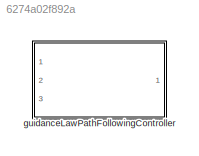
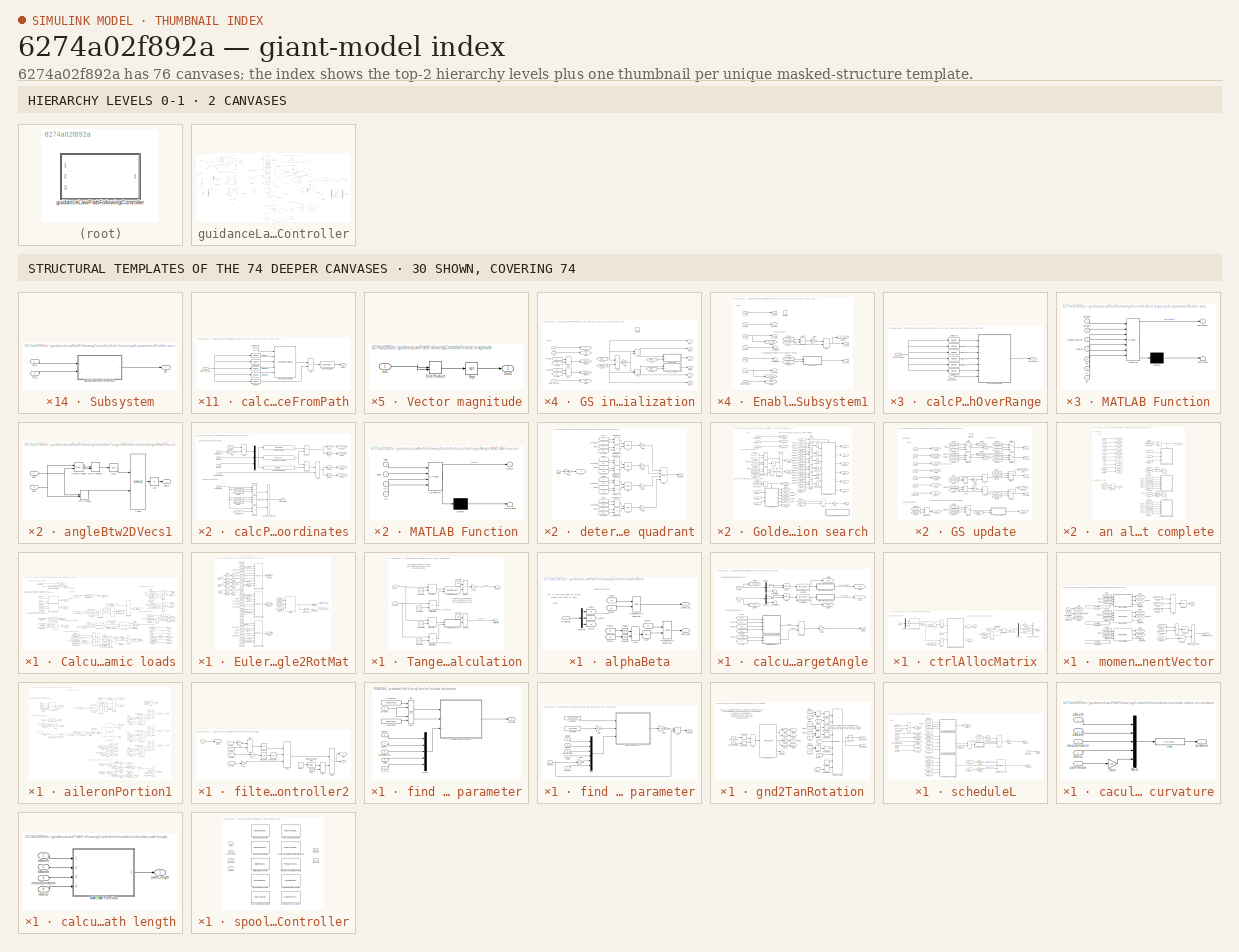
[diagram: thumbnail index - top-2 hierarchy levels (2 canvases) + 30 structural-template representatives of the remaining 74 canvases]
MODEL slx_6274a02f892a
KIND library
CONFIG AbsTol = auto
CONFIG EnableMultiTasking = off
CONFIG FixedStep = auto
CONFIG MaxStep = auto
CONFIG MinStep = auto
CONFIG RelTol = 1e-3
CONFIG SampleTimeConstraint = Unconstrained
CONFIG SolverName = VariableStepAuto
CONFIG StartTime = 0.0
CONFIG StopTime = 10.0
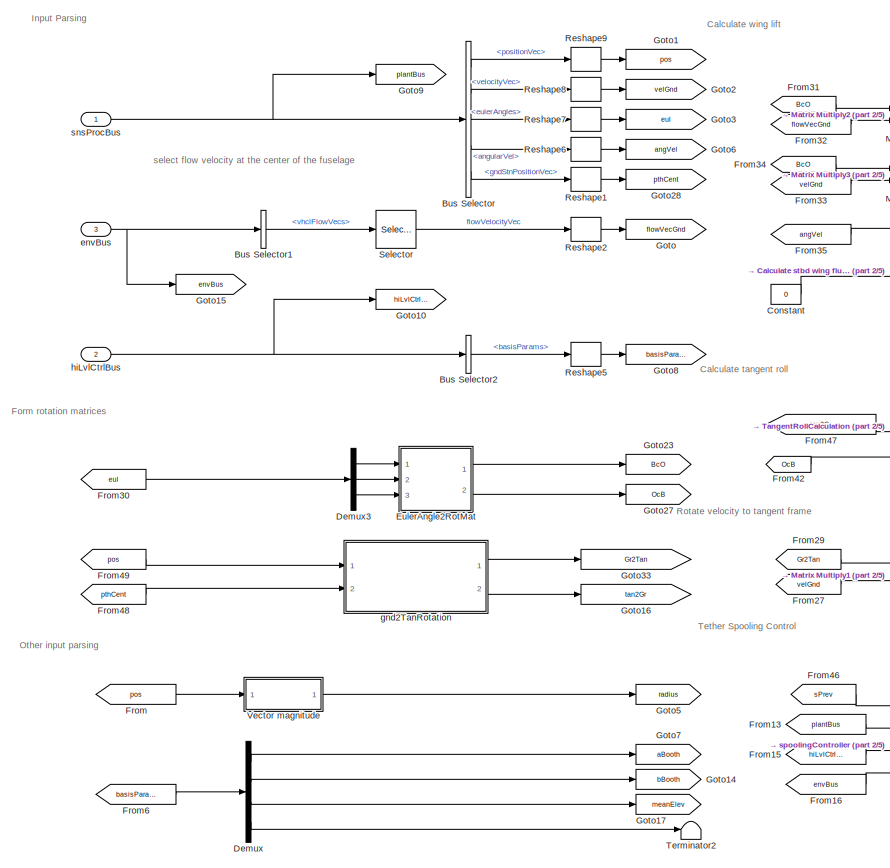
[diagram: guidanceLawPathFollowingController - part 1/5, top left region]
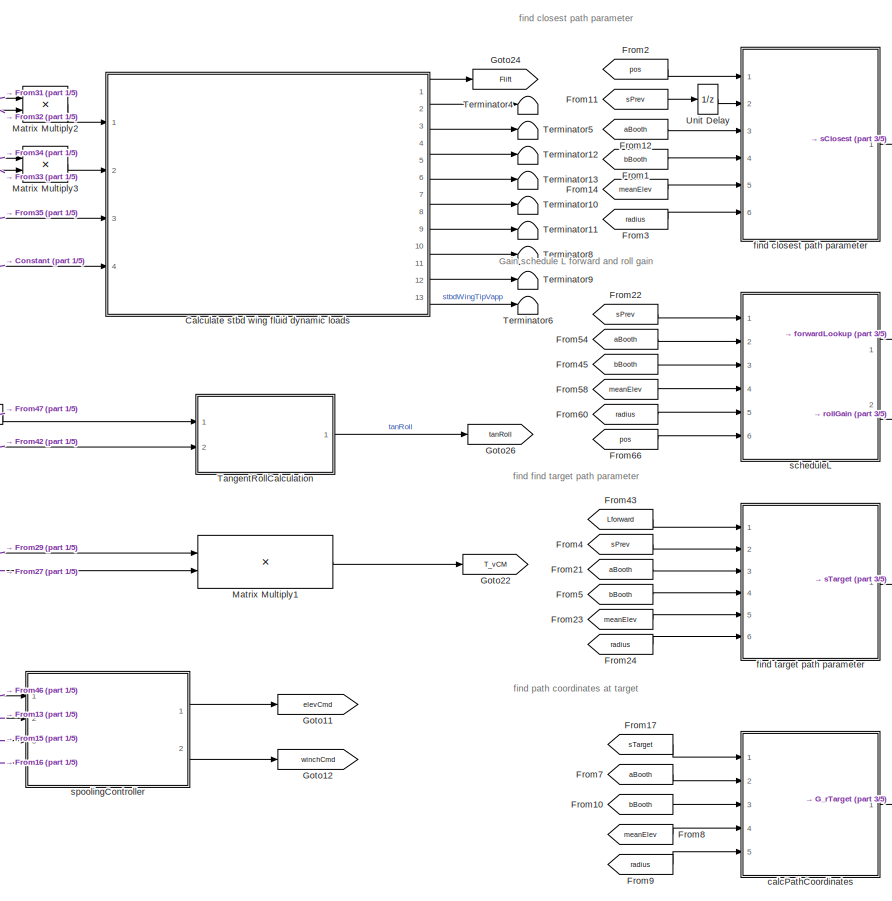
[diagram: guidanceLawPathFollowingController - part 2/5, central region]
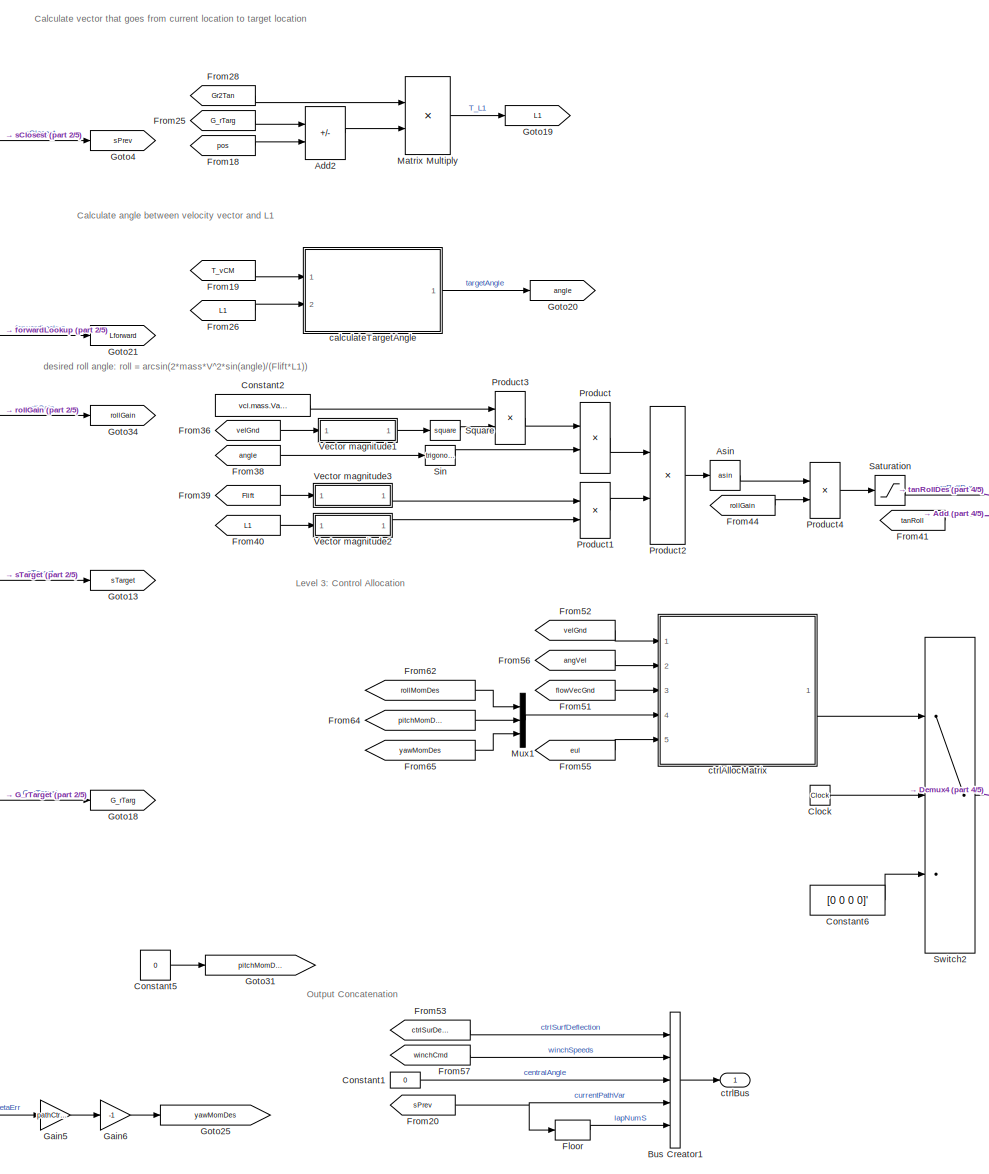
[diagram: guidanceLawPathFollowingController - part 3/5, right side, full height]
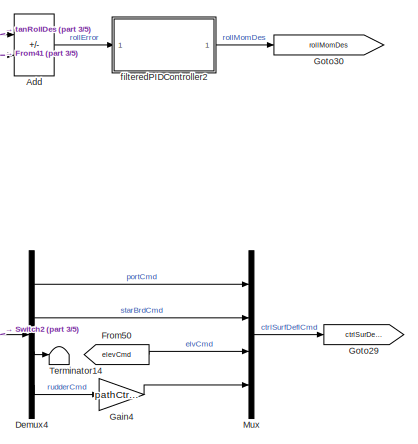
[diagram: guidanceLawPathFollowingController - part 4/5, middle right region]
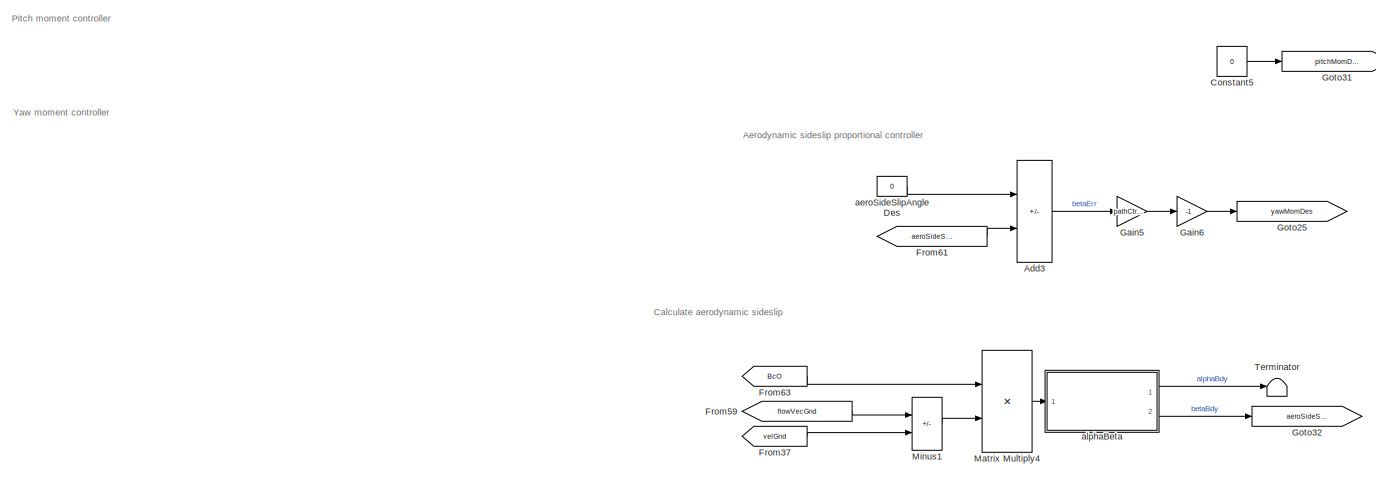
[diagram: guidanceLawPathFollowingController - part 5/5, bottom center region]
BLOCK [SubSystem] guidanceLawPathFollowingController
  InitFcn = initializeBussesFromBlock(gcb)
  LoadFcn = initializeBussesFromBlock(gcb)
  Ports = [3, 1]
  RequestExecContextInheritance = off
  StartFcn = initializeBussesFromBlock(gcb)
  VariantControl = strcmpi(FLIGHTCONTROLLER,'guidanceLawPathFollowing')
BLOCK [Sum] guidanceLawPathFollowingController/Add
  IconShape = rectangular
  Inputs = +-
  Ports = [2, 1]
BLOCK [Sum] guidanceLawPathFollowingController/Add2
  IconShape = rectangular
  Inputs = +-
  Ports = [2, 1]
BLOCK [Sum] guidanceLawPathFollowingController/Add3
  IconShape = rectangular
  Inputs = +-
  Ports = [2, 1]
BLOCK [Trigonometry] guidanceLawPathFollowingController/Asin
  Operator = asin
  Ports = [1, 1]
BLOCK [BusCreator] guidanceLawPathFollowingController/Bus Creator1
  DisplayOption = bar
  InheritFromInputs = off
  Inputs = 5
  OutDataTypeStr = Bus: fltCtrlBus
  Ports = [5, 1]
BLOCK [BusSelector] guidanceLawPathFollowingController/Bus Selector
  OutputSignals = positionVec,velocityVec,eulerAngles,angularVel,gndStnPositionVec
  Ports = [1, 5]
BLOCK [BusSelector] guidanceLawPathFollowingController/Bus Selector1
  OutputSignals = vhclFlowVecs
  Ports = [1, 1]
BLOCK [BusSelector] guidanceLawPathFollowingController/Bus Selector2
  OutputSignals = basisParams
  Ports = [1, 1]
BLOCK [SubSystem] guidanceLawPathFollowingController/Calculate stbd wing fluid dynamic loads
  AncestorBlock = calcFluidDynamicLoads/Calculate fluid dynamic loads
  Ports = [4, 13]
  RequestExecContextInheritance = off
BLOCK [Product] guidanceLawPathFollowingController/Calculate stbd wing fluid dynamic loads/ 
  Multiplication = Matrix(*)
  Ports = [2, 1]
BLOCK [Product] guidanceLawPathFollowingController/Calculate stbd wing fluid dynamic loads/  
  Multiplication = Matrix(*)
  Ports = [2, 1]
BLOCK [Abs] guidanceLawPathFollowingController/Calculate stbd wing fluid dynamic loads/Abs
  SaturateOnIntegerOverflow = off
BLOCK [Sum] guidanceLawPathFollowingController/Calculate stbd wing fluid dynamic loads/Add
  IconShape = rectangular
  Ports = [2, 1]
BLOCK [Sum] guidanceLawPathFollowingController/Calculate stbd wing fluid dynamic loads/Add1
  IconShape = rectangular
  Ports = [2, 1]
BLOCK [Outport] guidanceLawPathFollowingController/Calculate stbd wing fluid dynamic loads/CD
  Port = 7
  VectorParamsAs1DForOutWhenUnconnected = off
BLOCK [Outport] guidanceLawPathFollowingController/Calculate stbd wing fluid dynamic loads/CL
  Port = 6
  VectorParamsAs1DForOutWhenUnconnected = off
BLOCK [Constant] guidanceLawPathFollowingController/Calculate stbd wing fluid dynamic loads/Constant
  Value = rArm_LE
  VectorParams1D = off
BLOCK [Constant] guidanceLawPathFollowingController/Calculate stbd wing fluid dynamic loads/Constant1
  Value = rTip_LE
  VectorParams1D = off
BLOCK [Constant] guidanceLawPathFollowingController/Calculate stbd wing fluid dynamic loads/Constant10
  Value = aSurf.incAlphaUnitVecSurf.Value
  VectorParams1D = off
BLOCK [Constant] guidanceLawPathFollowingController/Calculate stbd wing fluid dynamic loads/Constant11
  Value = sRef
BLOCK [Constant] guidanceLawPathFollowingController/Calculate stbd wing fluid dynamic loads/Constant12
  Value = aSurf.cCtrlSurf.Value
BLOCK [Constant] guidanceLawPathFollowingController/Calculate stbd wing fluid dynamic loads/Constant2
  Value = aSurf.RSurf2Bdy.Value
  VectorParams1D = off
BLOCK [Constant] guidanceLawPathFollowingController/Calculate stbd wing fluid dynamic loads/Constant3
  Value = [1 0 0;0 0 0;0 0 1]
  VectorParams1D = off
BLOCK [Constant] guidanceLawPathFollowingController/Calculate stbd wing fluid dynamic loads/Constant4
  Value = aSurf.incAlphaUnitVecSurf.Value
  VectorParams1D = off
BLOCK [Constant] guidanceLawPathFollowingController/Calculate stbd wing fluid dynamic loads/Constant5
  Value = aSurf.RSurf2Bdy.Value
  VectorParams1D = off
BLOCK [Constant] guidanceLawPathFollowingController/Calculate stbd wing fluid dynamic loads/Constant6
  Value = sRef
BLOCK [Constant] guidanceLawPathFollowingController/Calculate stbd wing fluid dynamic loads/Constant7
  Value = rArm_LE
  VectorParams1D = off
BLOCK [Constant] guidanceLawPathFollowingController/Calculate stbd wing fluid dynamic loads/Constant8
  Value = aSurf.CH.Value(1)
BLOCK [Constant] guidanceLawPathFollowingController/Calculate stbd wing fluid dynamic loads/Constant9
  Value = aSurf.CH.Value(2)
BLOCK [Reference] guidanceLawPathFollowingController/Calculate stbd wing fluid dynamic loads/Cross Product1  REF=vrlib/Utilities/Cross Product
  Ports = [2, 1]
  SourceBlock = vrlib/Utilities/Cross Product
  SourceProductBaseCode = SL
  SourceType = Cross Product
BLOCK [Reference] guidanceLawPathFollowingController/Calculate stbd wing fluid dynamic loads/DynamicPressure  REF=dynamicPressure_ul/DynamicPressure
  Ports = [1, 1]
  SourceBlock = dynamicPressure_ul/DynamicPressure
BLOCK [Outport] guidanceLawPathFollowingController/Calculate stbd wing fluid dynamic loads/FDragBdy
  Port = 2
  VectorParamsAs1DForOutWhenUnconnected = off
BLOCK [Outport] guidanceLawPathFollowingController/Calculate stbd wing fluid dynamic loads/FLiftBdy
  VectorParamsAs1DForOutWhenUnconnected = off
BLOCK [Outport] guidanceLawPathFollowingController/Calculate stbd wing fluid dynamic loads/FSumBdy
  Port = 3
  VectorParamsAs1DForOutWhenUnconnected = off
BLOCK [From] guidanceLawPathFollowingController/Calculate stbd wing fluid dynamic loads/From
  GotoTag = dragDirUnitVecBdy
BLOCK [From] guidanceLawPathFollowingController/Calculate stbd wing fluid dynamic loads/From1
  GotoTag = liftDirUnitVecBdy
BLOCK [From] guidanceLawPathFollowingController/Calculate stbd wing fluid dynamic loads/From10
  GotoTag = vAppLclBdy
BLOCK [From] guidanceLawPathFollowingController/Calculate stbd wing fluid dynamic loads/From11
  GotoTag = dynPress
BLOCK [From] guidanceLawPathFollowingController/Calculate stbd wing fluid dynamic loads/From12
  GotoTag = CD
BLOCK [From] guidanceLawPathFollowingController/Calculate stbd wing fluid dynamic loads/From13
  GotoTag = vAppLclBdy
BLOCK [From] guidanceLawPathFollowingController/Calculate stbd wing fluid dynamic loads/From14
  GotoTag = FLiftBdy
BLOCK [From] guidanceLawPathFollowingController/Calculate stbd wing fluid dynamic loads/From15
  GotoTag = FDragBdy
BLOCK [From] guidanceLawPathFollowingController/Calculate stbd wing fluid dynamic loads/From16
  GotoTag = dynPress
BLOCK [From] guidanceLawPathFollowingController/Calculate stbd wing fluid dynamic loads/From17
  GotoTag = alphaLocal
BLOCK [From] guidanceLawPathFollowingController/Calculate stbd wing fluid dynamic loads/From18
  GotoTag = ctrlSurfDefl
BLOCK [From] guidanceLawPathFollowingController/Calculate stbd wing fluid dynamic loads/From19
  GotoTag = ctrlSurfDefl
BLOCK [From] guidanceLawPathFollowingController/Calculate stbd wing fluid dynamic loads/From2
  GotoTag = dynPress
BLOCK [From] guidanceLawPathFollowingController/Calculate stbd wing fluid dynamic loads/From20
  GotoTag = dynPress
BLOCK [From] guidanceLawPathFollowingController/Calculate stbd wing fluid dynamic loads/From21
  GotoTag = alphaLocal
BLOCK [From] guidanceLawPathFollowingController/Calculate stbd wing fluid dynamic loads/From22
  GotoTag = ctrlSurfDeflRate
BLOCK [From] guidanceLawPathFollowingController/Calculate stbd wing fluid dynamic loads/From23
  GotoTag = vAppWingTip
BLOCK [From] guidanceLawPathFollowingController/Calculate stbd wing fluid dynamic loads/From3
  GotoTag = vAppLclBdy
BLOCK [From] guidanceLawPathFollowingController/Calculate stbd wing fluid dynamic loads/From4
  GotoTag = vAppLclBdy
BLOCK [From] guidanceLawPathFollowingController/Calculate stbd wing fluid dynamic loads/From5
  GotoTag = vAppSurf
BLOCK [From] guidanceLawPathFollowingController/Calculate stbd wing fluid dynamic loads/From6
  GotoTag = vAppSurf
BLOCK [From] guidanceLawPathFollowingController/Calculate stbd wing fluid dynamic loads/From7
  GotoTag = CL
BLOCK [From] guidanceLawPathFollowingController/Calculate stbd wing fluid dynamic loads/From8
  GotoTag = CL
BLOCK [From] guidanceLawPathFollowingController/Calculate stbd wing fluid dynamic loads/From9
  GotoTag = CD
BLOCK [Gain] guidanceLawPathFollowingController/Calculate stbd wing fluid dynamic loads/Gain
  Gain = 180/pi
BLOCK [Gain] guidanceLawPathFollowingController/Calculate stbd wing fluid dynamic loads/Gain1
  Gain = pi/180
BLOCK [Gain] guidanceLawPathFollowingController/Calculate stbd wing fluid dynamic loads/Gain2
  Gain = pi/180
BLOCK [Goto] guidanceLawPathFollowingController/Calculate stbd wing fluid dynamic loads/Goto
  GotoTag = alphaLocal
BLOCK [Goto] guidanceLawPathFollowingController/Calculate stbd wing fluid dynamic loads/Goto1
  GotoTag = ctrlSurfDefl
BLOCK [Goto] guidanceLawPathFollowingController/Calculate stbd wing fluid dynamic loads/Goto10
  GotoTag = FLiftBdy
BLOCK [Goto] guidanceLawPathFollowingController/Calculate stbd wing fluid dynamic loads/Goto11
  GotoTag = FDragBdy
BLOCK [Goto] guidanceLawPathFollowingController/Calculate stbd wing fluid dynamic loads/Goto12
  GotoTag = dynPress
BLOCK [Goto] guidanceLawPathFollowingController/Calculate stbd wing fluid dynamic loads/Goto2
  GotoTag = vAppWingTip
BLOCK [Goto] guidanceLawPathFollowingController/Calculate stbd wing fluid dynamic loads/Goto3
  GotoTag = vAppLclBdy
BLOCK [Goto] guidanceLawPathFollowingController/Calculate stbd wing fluid dynamic loads/Goto4
  GotoTag = dragDirUnitVecBdy
BLOCK [Goto] guidanceLawPathFollowingController/Calculate stbd wing fluid dynamic loads/Goto5
  GotoTag = liftDirUnitVecBdy
BLOCK [Goto] guidanceLawPathFollowingController/Calculate stbd wing fluid dynamic loads/Goto6
  GotoTag = vAppSurf
BLOCK [Goto] guidanceLawPathFollowingController/Calculate stbd wing fluid dynamic loads/Goto7
  GotoTag = ctrlSurfDeflRate
BLOCK [Goto] guidanceLawPathFollowingController/Calculate stbd wing fluid dynamic loads/Goto8
  GotoTag = CL
BLOCK [Goto] guidanceLawPathFollowingController/Calculate stbd wing fluid dynamic loads/Goto9
  GotoTag = CD
BLOCK [Outport] guidanceLawPathFollowingController/Calculate stbd wing fluid dynamic loads/MBdyAboutLE
  Port = 4
  PortDimensions = [3 1]
  VectorParamsAs1DForOutWhenUnconnected = off
BLOCK [Product] guidanceLawPathFollowingController/Calculate stbd wing fluid dynamic loads/Matrix Multiply
  Multiplication = Matrix(*)
  Ports = [2, 1]
BLOCK [Product] guidanceLawPathFollowingController/Calculate stbd wing fluid dynamic loads/Matrix Multiply1
  Multiplication = Matrix(*)
  Ports = [2, 1]
BLOCK [Product] guidanceLawPathFollowingController/Calculate stbd wing fluid dynamic loads/Multiply2
  Inputs = 4
  Ports = [4, 1]
BLOCK [Product] guidanceLawPathFollowingController/Calculate stbd wing fluid dynamic loads/Multiply3
  Inputs = 4
  Ports = [4, 1]
BLOCK [Reference] guidanceLawPathFollowingController/Calculate stbd wing fluid dynamic loads/Normalize Vector  REF=vrlib/Utilities/Normalize Vector
  Ports = [1, 1]
  SourceBlock = vrlib/Utilities/Normalize Vector
  SourceProductBaseCode = SL
  SourceType = Normalize Vector
BLOCK [Reference] guidanceLawPathFollowingController/Calculate stbd wing fluid dynamic loads/Normalize Vector1  REF=vrlib/Utilities/Normalize Vector
  Ports = [1, 1]
  SourceBlock = vrlib/Utilities/Normalize Vector
  SourceProductBaseCode = SL
  SourceType = Normalize Vector
BLOCK [Product] guidanceLawPathFollowingController/Calculate stbd wing fluid dynamic loads/Product
  Ports = [2, 1]
BLOCK [Product] guidanceLawPathFollowingController/Calculate stbd wing fluid dynamic loads/Product1
  Ports = [2, 1]
BLOCK [Product] guidanceLawPathFollowingController/Calculate stbd wing fluid dynamic loads/Product2
  Inputs = 4
  Ports = [4, 1]
BLOCK [Product] guidanceLawPathFollowingController/Calculate stbd wing fluid dynamic loads/Product3
  Ports = [2, 1]
BLOCK [RateLimiter] guidanceLawPathFollowingController/Calculate stbd wing fluid dynamic loads/Rate Limiter
  FallingSlewLimit = -aSurf.maxCtrlDefSpeed.Value
  RisingSlewLimit = aSurf.maxCtrlDefSpeed.Value
  SampleTimeMode = inherited
BLOCK [Reshape] guidanceLawPathFollowingController/Calculate stbd wing fluid dynamic loads/Reshape4
  OutputDimensionality = Column vector (2-D)
  Ports = [1, 1]
BLOCK [Reshape] guidanceLawPathFollowingController/Calculate stbd wing fluid dynamic loads/Reshape5
  OutputDimensionality = Column vector (2-D)
  Ports = [1, 1]
BLOCK [Sqrt] guidanceLawPathFollowingController/Calculate stbd wing fluid dynamic loads/Sqrt
BLOCK [Math] guidanceLawPathFollowingController/Calculate stbd wing fluid dynamic loads/Square
  Operator = square
  Ports = [1, 1]
BLOCK [Reference] guidanceLawPathFollowingController/Calculate stbd wing fluid dynamic loads/Subsystem  REF=Copy_of_clAndCdCalculator_cl/Subsystem
  Ports = [2, 3]
  SourceBlock = Copy_of_clAndCdCalculator_cl/Subsystem
BLOCK [Terminator] guidanceLawPathFollowingController/Calculate stbd wing fluid dynamic loads/Terminator
BLOCK [TransferFcn] guidanceLawPathFollowingController/Calculate stbd wing fluid dynamic loads/Transfer Fcn
  Denominator = [0.001 1]
  Numerator = [1 0]
BLOCK [Math] guidanceLawPathFollowingController/Calculate stbd wing fluid dynamic loads/Transpose
  Operator = transpose
  Ports = [1, 1]
  SignedPower = on
BLOCK [Reference] guidanceLawPathFollowingController/Calculate stbd wing fluid dynamic loads/alphaBetaLE  REF=alphaBetaLE_ul/alphaBetaLE
  Ports = [2, 2]
  SourceBlock = alphaBetaLE_ul/alphaBetaLE
  SourceType = SubSystem
BLOCK [Outport] guidanceLawPathFollowingController/Calculate stbd wing fluid dynamic loads/alphaLocalDeg
  Port = 8
  VectorParamsAs1DForOutWhenUnconnected = off
BLOCK [Inport] guidanceLawPathFollowingController/Calculate stbd wing fluid dynamic loads/angVel
  Port = 3
BLOCK [Inport] guidanceLawPathFollowingController/Calculate stbd wing fluid dynamic loads/csDeflection
  Port = 4
BLOCK [Outport] guidanceLawPathFollowingController/Calculate stbd wing fluid dynamic loads/ctrlMoment
  Port = 13
BLOCK [Outport] guidanceLawPathFollowingController/Calculate stbd wing fluid dynamic loads/ctrlPowLoss
  Port = 12
BLOCK [Outport] guidanceLawPathFollowingController/Calculate stbd wing fluid dynamic loads/dynPress
  Port = 5
  VectorParamsAs1DForOutWhenUnconnected = off
BLOCK [Reference] guidanceLawPathFollowingController/Calculate stbd wing fluid dynamic loads/localApparentWind  REF=localApparentWind_ul/localApparentWind
  Ports = [5, 2]
  SourceBlock = localApparentWind_ul/localApparentWind
  SourceType = SubSystem
BLOCK [Reference] guidanceLawPathFollowingController/Calculate stbd wing fluid dynamic loads/rotateAboutVec  REF=rotateAboutVec/rotateAboutVec
  Ports = [1, 1]
  SourceBlock = rotateAboutVec/rotateAboutVec
BLOCK [Outport] guidanceLawPathFollowingController/Calculate stbd wing fluid dynamic loads/satCtrlSurfDefl
  Port = 11
BLOCK [Outport] guidanceLawPathFollowingController/Calculate stbd wing fluid dynamic loads/vAppLclBdy
  Port = 9
  VectorParamsAs1DForOutWhenUnconnected = off
BLOCK [Outport] guidanceLawPathFollowingController/Calculate stbd wing fluid dynamic loads/vAppWingTip
  Port = 10
  VectorParamsAs1DForOutWhenUnconnected = off
BLOCK [Inport] guidanceLawPathFollowingController/Calculate stbd wing fluid dynamic loads/velBdyLE
  Port = 2
BLOCK [Inport] guidanceLawPathFollowingController/Calculate stbd wing fluid dynamic loads/velBdyWind
BLOCK [Clock] guidanceLawPathFollowingController/Clock
BLOCK [Constant] guidanceLawPathFollowingController/Constant
  Value = 0
BLOCK [Constant] guidanceLawPathFollowingController/Constant1
  Value = 0
BLOCK [Constant] guidanceLawPathFollowingController/Constant2
  Value = vcl.mass.Value
  VectorParams1D = off
BLOCK [Constant] guidanceLawPathFollowingController/Constant5
  Value = 0
BLOCK [Constant] guidanceLawPathFollowingController/Constant6
  Value = [0 0 0 0]'
BLOCK [Demux] guidanceLawPathFollowingController/Demux
  Ports = [1, 4]
BLOCK [Demux] guidanceLawPathFollowingController/Demux3
  Outputs = 3
  Ports = [1, 3]
BLOCK [Demux] guidanceLawPathFollowingController/Demux4
  Ports = [1, 4]
BLOCK [SubSystem] guidanceLawPathFollowingController/EulerAngle2RotMat
  AncestorBlock = eulAng2RotMat_ul/EulerAngle2RotMat
  Ports = [3, 2]
  RequestExecContextInheritance = off
BLOCK [Constant] guidanceLawPathFollowingController/EulerAngle2RotMat/Constant
BLOCK [Constant] guidanceLawPathFollowingController/EulerAngle2RotMat/Constant1
  Value = 0
BLOCK [Constant] guidanceLawPathFollowingController/EulerAngle2RotMat/Constant10
  Value = 0
BLOCK [Constant] guidanceLawPathFollowingController/EulerAngle2RotMat/Constant11
  Value = 0
BLOCK [Constant] guidanceLawPathFollowingController/EulerAngle2RotMat/Constant12
  Value = 0
BLOCK [Constant] guidanceLawPathFollowingController/EulerAngle2RotMat/Constant13
  Value = 0
BLOCK [Constant] guidanceLawPathFollowingController/EulerAngle2RotMat/Constant14
  Value = 0
BLOCK [Constant] guidanceLawPathFollowingController/EulerAngle2RotMat/Constant2
  Value = 0
BLOCK [Constant] guidanceLawPathFollowingController/EulerAngle2RotMat/Constant3
  Value = 0
BLOCK [Constant] guidanceLawPathFollowingController/EulerAngle2RotMat/Constant4
BLOCK [Constant] guidanceLawPathFollowingController/EulerAngle2RotMat/Constant5
BLOCK [Constant] guidanceLawPathFollowingController/EulerAngle2RotMat/Constant6
  Value = 0
BLOCK [Constant] guidanceLawPathFollowingController/EulerAngle2RotMat/Constant7
  Value = 0
BLOCK [Constant] guidanceLawPathFollowingController/EulerAngle2RotMat/Constant8
  Value = 0
BLOCK [Constant] guidanceLawPathFollowingController/EulerAngle2RotMat/Constant9
  Value = 0
BLOCK [Trigonometry] guidanceLawPathFollowingController/EulerAngle2RotMat/Cos
  Operator = cos
  Ports = [1, 1]
BLOCK [Trigonometry] guidanceLawPathFollowingController/EulerAngle2RotMat/Cos1
  Ports = [1, 1]
BLOCK [Trigonometry] guidanceLawPathFollowingController/EulerAngle2RotMat/Cos2
  Operator = cos
  Ports = [1, 1]
BLOCK [Trigonometry] guidanceLawPathFollowingController/EulerAngle2RotMat/Cos3
  Ports = [1, 1]
BLOCK [Trigonometry] guidanceLawPathFollowingController/EulerAngle2RotMat/Cos4
  Operator = cos
  Ports = [1, 1]
BLOCK [Trigonometry] guidanceLawPathFollowingController/EulerAngle2RotMat/Cos5
  Ports = [1, 1]
BLOCK [Reference] guidanceLawPathFollowingController/EulerAngle2RotMat/Create 3x3 Matrix  REF=sharedutil/Create 3x3 Matrix
  Ports = [9, 1]
  SourceBlock = sharedutil/Create 3x3 Matrix
  SourceProductBaseCode = AE,PW,DR,MT,VE
  SourceType = Create 3x3 Matrix
BLOCK [Reference] guidanceLawPathFollowingController/EulerAngle2RotMat/Create 3x3 Matrix1  REF=sharedutil/Create 3x3 Matrix
  Ports = [9, 1]
  SourceBlock = sharedutil/Create 3x3 Matrix
  SourceProductBaseCode = AE,PW,DR,MT,VE
  SourceType = Create 3x3 Matrix
BLOCK [Reference] guidanceLawPathFollowingController/EulerAngle2RotMat/Create 3x3 Matrix2  REF=sharedutil/Create 3x3 Matrix
  Ports = [9, 1]
  SourceBlock = sharedutil/Create 3x3 Matrix
  SourceProductBaseCode = AE,PW,DR,MT,VE
  SourceType = Create 3x3 Matrix
BLOCK [From] guidanceLawPathFollowingController/EulerAngle2RotMat/From
  GotoTag = cr
BLOCK [From] guidanceLawPathFollowingController/EulerAngle2RotMat/From1
  GotoTag = cr
BLOCK [From] guidanceLawPathFollowingController/EulerAngle2RotMat/From10
  GotoTag = cy
BLOCK [From] guidanceLawPathFollowingController/EulerAngle2RotMat/From11
  GotoTag = sy
BLOCK [From] guidanceLawPathFollowingController/EulerAngle2RotMat/From12
  GotoTag = rollMatrix
BLOCK [From] guidanceLawPathFollowingController/EulerAngle2RotMat/From13
  GotoTag = pitchMatrix
BLOCK [From] guidanceLawPathFollowingController/EulerAngle2RotMat/From14
  GotoTag = yawMatrix
BLOCK [From] guidanceLawPathFollowingController/EulerAngle2RotMat/From2
  GotoTag = sr
BLOCK [From] guidanceLawPathFollowingController/EulerAngle2RotMat/From3
  GotoTag = sr
BLOCK [From] guidanceLawPathFollowingController/EulerAngle2RotMat/From4
  GotoTag = cp
BLOCK [From] guidanceLawPathFollowingController/EulerAngle2RotMat/From5
  GotoTag = sp
BLOCK [From] guidanceLawPathFollowingController/EulerAngle2RotMat/From6
  GotoTag = cp
BLOCK [From] guidanceLawPathFollowingController/EulerAngle2RotMat/From7
  GotoTag = sp
BLOCK [From] guidanceLawPathFollowingController/EulerAngle2RotMat/From8
  GotoTag = cy
BLOCK [From] guidanceLawPathFollowingController/EulerAngle2RotMat/From9
  GotoTag = sy
BLOCK [Gain] guidanceLawPathFollowingController/EulerAngle2RotMat/Gain
  Gain = -1
BLOCK [Gain] guidanceLawPathFollowingController/EulerAngle2RotMat/Gain1
  Gain = -1
BLOCK [Gain] guidanceLawPathFollowingController/EulerAngle2RotMat/Gain2
  Gain = -1
BLOCK [Goto] guidanceLawPathFollowingController/EulerAngle2RotMat/Goto
  GotoTag = cr
BLOCK [Goto] guidanceLawPathFollowingController/EulerAngle2RotMat/Goto1
  GotoTag = sr
BLOCK [Goto] guidanceLawPathFollowingController/EulerAngle2RotMat/Goto2
  GotoTag = cp
BLOCK [Goto] guidanceLawPathFollowingController/EulerAngle2RotMat/Goto3
  GotoTag = sp
BLOCK [Goto] guidanceLawPathFollowingController/EulerAngle2RotMat/Goto4
  GotoTag = cy
BLOCK [Goto] guidanceLawPathFollowingController/EulerAngle2RotMat/Goto5
  GotoTag = sy
BLOCK [Goto] guidanceLawPathFollowingController/EulerAngle2RotMat/Goto6
  GotoTag = rollMatrix
BLOCK [Goto] guidanceLawPathFollowingController/EulerAngle2RotMat/Goto7
  GotoTag = pitchMatrix
BLOCK [Goto] guidanceLawPathFollowingController/EulerAngle2RotMat/Goto8
  GotoTag = yawMatrix
BLOCK [Product] guidanceLawPathFollowingController/EulerAngle2RotMat/Multiply
  Inputs = 3
  Multiplication = Matrix(*)
  Ports = [3, 1]
BLOCK [Math] guidanceLawPathFollowingController/EulerAngle2RotMat/Transpose
  Operator = transpose
  Ports = [1, 1]
  SignedPower = on
BLOCK [Outport] guidanceLawPathFollowingController/EulerAngle2RotMat/bdy2Inert
  Port = 2
  VectorParamsAs1DForOutWhenUnconnected = off
BLOCK [Outport] guidanceLawPathFollowingController/EulerAngle2RotMat/inert2Bdy
  VectorParamsAs1DForOutWhenUnconnected = off
BLOCK [Inport] guidanceLawPathFollowingController/EulerAngle2RotMat/pitch
  Port = 2
BLOCK [Inport] guidanceLawPathFollowingController/EulerAngle2RotMat/roll
BLOCK [Inport] guidanceLawPathFollowingController/EulerAngle2RotMat/yaw
  Port = 3
BLOCK [Rounding] guidanceLawPathFollowingController/Floor
  Operator = ceil
BLOCK [From] guidanceLawPathFollowingController/From
  GotoTag = pos
BLOCK [From] guidanceLawPathFollowingController/From1
  GotoTag = bBooth
BLOCK [From] guidanceLawPathFollowingController/From10
  GotoTag = bBooth
BLOCK [From] guidanceLawPathFollowingController/From11
  GotoTag = sPrev
BLOCK [From] guidanceLawPathFollowingController/From12
  GotoTag = aBooth
BLOCK [From] guidanceLawPathFollowingController/From13
  GotoTag = plantBus
BLOCK [From] guidanceLawPathFollowingController/From14
  GotoTag = meanElev
BLOCK [From] guidanceLawPathFollowingController/From15
  GotoTag = hiLvlCtrlBus
BLOCK [From] guidanceLawPathFollowingController/From16
  GotoTag = envBus
BLOCK [From] guidanceLawPathFollowingController/From17
  GotoTag = sTarget
BLOCK [From] guidanceLawPathFollowingController/From18
  GotoTag = pos
BLOCK [From] guidanceLawPathFollowingController/From19
  GotoTag = T_vCM
BLOCK [From] guidanceLawPathFollowingController/From2
  GotoTag = pos
BLOCK [From] guidanceLawPathFollowingController/From20
  GotoTag = sPrev
BLOCK [From] guidanceLawPathFollowingController/From21
  GotoTag = aBooth
BLOCK [From] guidanceLawPathFollowingController/From22
  GotoTag = sPrev
BLOCK [From] guidanceLawPathFollowingController/From23
  GotoTag = meanElev
BLOCK [From] guidanceLawPathFollowingController/From24
  GotoTag = radius
BLOCK [From] guidanceLawPathFollowingController/From25
  GotoTag = G_rTarg
BLOCK [From] guidanceLawPathFollowingController/From26
  GotoTag = L1
BLOCK [From] guidanceLawPathFollowingController/From27
  GotoTag = velGnd
BLOCK [From] guidanceLawPathFollowingController/From28
  GotoTag = Gr2Tan
BLOCK [From] guidanceLawPathFollowingController/From29
  GotoTag = Gr2Tan
BLOCK [From] guidanceLawPathFollowingController/From3
  GotoTag = radius
BLOCK [From] guidanceLawPathFollowingController/From30
  GotoTag = eul
BLOCK [From] guidanceLawPathFollowingController/From31
  GotoTag = BcO
BLOCK [From] guidanceLawPathFollowingController/From32
  GotoTag = flowVecGnd
BLOCK [From] guidanceLawPathFollowingController/From33
  GotoTag = velGnd
BLOCK [From] guidanceLawPathFollowingController/From34
  GotoTag = BcO
BLOCK [From] guidanceLawPathFollowingController/From35
  GotoTag = angVel
BLOCK [From] guidanceLawPathFollowingController/From36
  GotoTag = velGnd
BLOCK [From] guidanceLawPathFollowingController/From37
  GotoTag = velGnd
BLOCK [From] guidanceLawPathFollowingController/From38
  GotoTag = angle
BLOCK [From] guidanceLawPathFollowingController/From39
  GotoTag = Flift
BLOCK [From] guidanceLawPathFollowingController/From4
  GotoTag = sPrev
BLOCK [From] guidanceLawPathFollowingController/From40
  GotoTag = L1
BLOCK [From] guidanceLawPathFollowingController/From41
  GotoTag = tanRoll
BLOCK [From] guidanceLawPathFollowingController/From42
  GotoTag = OcB
BLOCK [From] guidanceLawPathFollowingController/From43
  GotoTag = Lforward
BLOCK [From] guidanceLawPathFollowingController/From44
  GotoTag = rollGain
BLOCK [From] guidanceLawPathFollowingController/From45
  GotoTag = bBooth
BLOCK [From] guidanceLawPathFollowingController/From46
  GotoTag = sPrev
BLOCK [From] guidanceLawPathFollowingController/From47
  GotoTag = tan2Gr
BLOCK [From] guidanceLawPathFollowingController/From48
  GotoTag = pthCent
BLOCK [From] guidanceLawPathFollowingController/From49
  GotoTag = pos
BLOCK [From] guidanceLawPathFollowingController/From5
  GotoTag = bBooth
BLOCK [From] guidanceLawPathFollowingController/From50
  GotoTag = elevCmd
BLOCK [From] guidanceLawPathFollowingController/From51
  GotoTag = flowVecGnd
BLOCK [From] guidanceLawPathFollowingController/From52
  GotoTag = velGnd
BLOCK [From] guidanceLawPathFollowingController/From53
  GotoTag = ctrlSurDefl
BLOCK [From] guidanceLawPathFollowingController/From54
  GotoTag = aBooth
BLOCK [From] guidanceLawPathFollowingController/From55
  GotoTag = eul
BLOCK [From] guidanceLawPathFollowingController/From56
  GotoTag = angVel
BLOCK [From] guidanceLawPathFollowingController/From57
  GotoTag = winchCmd
BLOCK [From] guidanceLawPathFollowingController/From58
  GotoTag = meanElev
BLOCK [From] guidanceLawPathFollowingController/From59
  GotoTag = flowVecGnd
BLOCK [From] guidanceLawPathFollowingController/From6
  GotoTag = basisParams
BLOCK [From] guidanceLawPathFollowingController/From60
  GotoTag = radius
BLOCK [From] guidanceLawPathFollowingController/From61
  GotoTag = aeroSideSlipAngle
BLOCK [From] guidanceLawPathFollowingController/From62
  GotoTag = rollMomDes
BLOCK [From] guidanceLawPathFollowingController/From63
  GotoTag = BcO
BLOCK [From] guidanceLawPathFollowingController/From64
  GotoTag = pitchMomDes
BLOCK [From] guidanceLawPathFollowingController/From65
  GotoTag = yawMomDes
BLOCK [From] guidanceLawPathFollowingController/From66
  GotoTag = pos
BLOCK [From] guidanceLawPathFollowingController/From7
  GotoTag = aBooth
BLOCK [From] guidanceLawPathFollowingController/From8
  GotoTag = meanElev
BLOCK [From] guidanceLawPathFollowingController/From9
  GotoTag = radius
BLOCK [Gain] guidanceLawPathFollowingController/Gain4
  Gain = pathCtrl.rudderGain.Value
BLOCK [Gain] guidanceLawPathFollowingController/Gain5
  Gain = pathCtrl.yawMoment.kp.Value
BLOCK [Gain] guidanceLawPathFollowingController/Gain6
  Gain = -1
BLOCK [Goto] guidanceLawPathFollowingController/Goto
  GotoTag = flowVecGnd
BLOCK [Goto] guidanceLawPathFollowingController/Goto1
  GotoTag = pos
BLOCK [Goto] guidanceLawPathFollowingController/Goto10
  GotoTag = hiLvlCtrlBus
BLOCK [Goto] guidanceLawPathFollowingController/Goto11
  GotoTag = elevCmd
BLOCK [Goto] guidanceLawPathFollowingController/Goto12
  GotoTag = winchCmd
BLOCK [Goto] guidanceLawPathFollowingController/Goto13
  GotoTag = sTarget
BLOCK [Goto] guidanceLawPathFollowingController/Goto14
  GotoTag = bBooth
BLOCK [Goto] guidanceLawPathFollowingController/Goto15
  GotoTag = envBus
BLOCK [Goto] guidanceLawPathFollowingController/Goto16
  GotoTag = tan2Gr
BLOCK [Goto] guidanceLawPathFollowingController/Goto17
  GotoTag = meanElev
BLOCK [Goto] guidanceLawPathFollowingController/Goto18
  GotoTag = G_rTarg
BLOCK [Goto] guidanceLawPathFollowingController/Goto19
  GotoTag = L1
BLOCK [Goto] guidanceLawPathFollowingController/Goto2
  GotoTag = velGnd
BLOCK [Goto] guidanceLawPathFollowingController/Goto20
  GotoTag = angle
BLOCK [Goto] guidanceLawPathFollowingController/Goto21
  GotoTag = Lforward
BLOCK [Goto] guidanceLawPathFollowingController/Goto22
  GotoTag = T_vCM
BLOCK [Goto] guidanceLawPathFollowingController/Goto23
  GotoTag = BcO
BLOCK [Goto] guidanceLawPathFollowingController/Goto24
  GotoTag = Flift
BLOCK [Goto] guidanceLawPathFollowingController/Goto25
  GotoTag = yawMomDes
BLOCK [Goto] guidanceLawPathFollowingController/Goto26
  GotoTag = tanRoll
BLOCK [Goto] guidanceLawPathFollowingController/Goto27
  GotoTag = OcB
BLOCK [Goto] guidanceLawPathFollowingController/Goto28
  GotoTag = pthCent
BLOCK [Goto] guidanceLawPathFollowingController/Goto29
  GotoTag = ctrlSurDefl
BLOCK [Goto] guidanceLawPathFollowingController/Goto3
  GotoTag = eul
BLOCK [Goto] guidanceLawPathFollowingController/Goto30
  GotoTag = rollMomDes
BLOCK [Goto] guidanceLawPathFollowingController/Goto31
  GotoTag = pitchMomDes
BLOCK [Goto] guidanceLawPathFollowingController/Goto32
  GotoTag = aeroSideSlipAngle
BLOCK [Goto] guidanceLawPathFollowingController/Goto33
  GotoTag = Gr2Tan
BLOCK [Goto] guidanceLawPathFollowingController/Goto34
  GotoTag = rollGain
BLOCK [Goto] guidanceLawPathFollowingController/Goto4
  GotoTag = sPrev
BLOCK [Goto] guidanceLawPathFollowingController/Goto5
  GotoTag = radius
BLOCK [Goto] guidanceLawPathFollowingController/Goto6
  GotoTag = angVel
BLOCK [Goto] guidanceLawPathFollowingController/Goto7
  GotoTag = aBooth
BLOCK [Goto] guidanceLawPathFollowingController/Goto8
  GotoTag = basisParams
BLOCK [Goto] guidanceLawPathFollowingController/Goto9
  GotoTag = plantBus
BLOCK [Product] guidanceLawPathFollowingController/Matrix Multiply
  Multiplication = Matrix(*)
  Ports = [2, 1]
BLOCK [Product] guidanceLawPathFollowingController/Matrix Multiply1
  Multiplication = Matrix(*)
  Ports = [2, 1]
BLOCK [Product] guidanceLawPathFollowingController/Matrix Multiply2
  Multiplication = Matrix(*)
  Ports = [2, 1]
BLOCK [Product] guidanceLawPathFollowingController/Matrix Multiply3
  Multiplication = Matrix(*)
  Ports = [2, 1]
BLOCK [Product] guidanceLawPathFollowingController/Matrix Multiply4
  Multiplication = Matrix(*)
  Ports = [2, 1]
BLOCK [Sum] guidanceLawPathFollowingController/Minus1
  IconShape = rectangular
  Inputs = +-
  Ports = [2, 1]
BLOCK [Mux] guidanceLawPathFollowingController/Mux
  DisplayOption = bar
  Ports = [4, 1]
BLOCK [Mux] guidanceLawPathFollowingController/Mux1
  DisplayOption = bar
  Inputs = 3
  Ports = [3, 1]
BLOCK [Product] guidanceLawPathFollowingController/Product
  Ports = [2, 1]
BLOCK [Product] guidanceLawPathFollowingController/Product1
  Ports = [2, 1]
BLOCK [Product] guidanceLawPathFollowingController/Product2
  Inputs = */
  Ports = [2, 1]
BLOCK [Product] guidanceLawPathFollowingController/Product3
  Ports = [2, 1]
BLOCK [Product] guidanceLawPathFollowingController/Product4
  Ports = [2, 1]
BLOCK [Reshape] guidanceLawPathFollowingController/Reshape1
  OutputDimensionality = Column vector (2-D)
  Ports = [1, 1]
BLOCK [Reshape] guidanceLawPathFollowingController/Reshape2
  OutputDimensionality = Column vector (2-D)
  Ports = [1, 1]
BLOCK [Reshape] guidanceLawPathFollowingController/Reshape5
  OutputDimensionality = Column vector (2-D)
  Ports = [1, 1]
BLOCK [Reshape] guidanceLawPathFollowingController/Reshape6
  OutputDimensionality = Column vector (2-D)
  Ports = [1, 1]
BLOCK [Reshape] guidanceLawPathFollowingController/Reshape7
  OutputDimensionality = Column vector (2-D)
  Ports = [1, 1]
BLOCK [Reshape] guidanceLawPathFollowingController/Reshape8
  NameLocation = left
  OutputDimensionality = Column vector (2-D)
  Ports = [1, 1]
BLOCK [Reshape] guidanceLawPathFollowingController/Reshape9
  OutputDimensionality = Column vector (2-D)
  Ports = [1, 1]
BLOCK [Saturate] guidanceLawPathFollowingController/Saturation
  LowerLimit = pathCtrl.maxBank.lowerLimit.Value
  UpperLimit = pathCtrl.maxBank.upperLimit.Value
BLOCK [Selector] guidanceLawPathFollowingController/Selector
  IndexOptions = Select all,Index vector (dialog)
  Indices = [1 3],5
  InputPortWidth = 3
  NumberOfDimensions = 2
  OutputSizes = 1,1
  Ports = [1, 1]
BLOCK [Trigonometry] guidanceLawPathFollowingController/Sin
  Ports = [1, 1]
BLOCK [Math] guidanceLawPathFollowingController/Square
  Operator = square
  Ports = [1, 1]
BLOCK [Switch] guidanceLawPathFollowingController/Switch2
  Criteria = u2 > Threshold
  InputSameDT = off
  SaturateOnIntegerOverflow = off
  Threshold = pathCtrl.startControl.Value
BLOCK [SubSystem] guidanceLawPathFollowingController/TangentRollCalculation
  AncestorBlock = setpointToOutput_cl/desiredMoment/TangentRollCalculation
  Ports = [2, 1]
  RequestExecContextInheritance = off
BLOCK [Constant] guidanceLawPathFollowingController/TangentRollCalculation/Constant1
  Value = pi/2
BLOCK [Constant] guidanceLawPathFollowingController/TangentRollCalculation/Constant2
  Value = pi/2
BLOCK [Constant] guidanceLawPathFollowingController/TangentRollCalculation/Constant3
  Value = [0 1 0]'
BLOCK [Constant] guidanceLawPathFollowingController/TangentRollCalculation/Constant4
  Value = [0 0 1]'
BLOCK [Constant] guidanceLawPathFollowingController/TangentRollCalculation/Constant5
  Value = [1 0 0]'
BLOCK [Constant] guidanceLawPathFollowingController/TangentRollCalculation/Constant6
  Value = [0 0 1]'
BLOCK [Gain] guidanceLawPathFollowingController/TangentRollCalculation/Gain
  Gain = -1
BLOCK [Product] guidanceLawPathFollowingController/TangentRollCalculation/Matrix Multiply
  Multiplication = Matrix(*)
  Ports = [2, 1]
BLOCK [Product] guidanceLawPathFollowingController/TangentRollCalculation/Matrix Multiply1
  Multiplication = Matrix(*)
  Ports = [2, 1]
BLOCK [Product] guidanceLawPathFollowingController/TangentRollCalculation/Matrix Multiply2
  Multiplication = Matrix(*)
  Ports = [2, 1]
BLOCK [Product] guidanceLawPathFollowingController/TangentRollCalculation/Matrix Multiply3
  Multiplication = Matrix(*)
  Ports = [2, 1]
BLOCK [Sum] guidanceLawPathFollowingController/TangentRollCalculation/Subtract
  IconShape = rectangular
  Inputs = +-
  Ports = [2, 1]
BLOCK [Sum] guidanceLawPathFollowingController/TangentRollCalculation/Subtract1
  IconShape = rectangular
  Inputs = +-
  Ports = [2, 1]
BLOCK [Terminator] guidanceLawPathFollowingController/TangentRollCalculation/Terminator
BLOCK [Reference] guidanceLawPathFollowingController/TangentRollCalculation/angleBtw2DVecs  REF=angleBtw2Vecs_ul/angleBtw2DVecs
  Ports = [2, 1]
  SourceBlock = angleBtw2Vecs_ul/angleBtw2DVecs
  SourceType = SubSystem
BLOCK [SubSystem] guidanceLawPathFollowingController/TangentRollCalculation/angleBtw2DVecs1
  Ports = [2, 1]
  RequestExecContextInheritance = off
BLOCK [Abs] guidanceLawPathFollowingController/TangentRollCalculation/angleBtw2DVecs1/Abs
  SaturateOnIntegerOverflow = off
BLOCK [Trigonometry] guidanceLawPathFollowingController/TangentRollCalculation/angleBtw2DVecs1/Atan2
  Operator = atan2
  Ports = [2, 1]
BLOCK [Reference] guidanceLawPathFollowingController/TangentRollCalculation/angleBtw2DVecs1/Cross Product  REF=vrlib/Utilities/Cross Product
  Ports = [2, 1]
  SourceBlock = vrlib/Utilities/Cross Product
  SourceProductBaseCode = SL
  SourceType = Cross Product
BLOCK [DotProduct] guidanceLawPathFollowingController/TangentRollCalculation/angleBtw2DVecs1/Dot Product
  OutDataTypeStr = Inherit: Inherit via internal rule
BLOCK [DotProduct] guidanceLawPathFollowingController/TangentRollCalculation/angleBtw2DVecs1/Dot Product1
  OutDataTypeStr = Inherit: Inherit via internal rule
BLOCK [Sqrt] guidanceLawPathFollowingController/TangentRollCalculation/angleBtw2DVecs1/Sqrt
BLOCK [Outport] guidanceLawPathFollowingController/TangentRollCalculation/angleBtw2DVecs1/angle
  VectorParamsAs1DForOutWhenUnconnected = off
BLOCK [Inport] guidanceLawPathFollowingController/TangentRollCalculation/angleBtw2DVecs1/vec1
BLOCK [Inport] guidanceLawPathFollowingController/TangentRollCalculation/angleBtw2DVecs1/vec2
  Port = 2
BLOCK [Inport] guidanceLawPathFollowingController/TangentRollCalculation/bdy2Inert
  Port = 2
BLOCK [Inport] guidanceLawPathFollowingController/TangentRollCalculation/tan2Gr
BLOCK [Outport] guidanceLawPathFollowingController/TangentRollCalculation/tanRoll
  VectorParamsAs1DForOutWhenUnconnected = off
BLOCK [Terminator] guidanceLawPathFollowingController/Terminator
BLOCK [Terminator] guidanceLawPathFollowingController/Terminator10
BLOCK [Terminator] guidanceLawPathFollowingController/Terminator11
BLOCK [Terminator] guidanceLawPathFollowingController/Terminator12
BLOCK [Terminator] guidanceLawPathFollowingController/Terminator13
BLOCK [Terminator] guidanceLawPathFollowingController/Terminator14
BLOCK [Terminator] guidanceLawPathFollowingController/Terminator2
BLOCK [Terminator] guidanceLawPathFollowingController/Terminator4
BLOCK [Terminator] guidanceLawPathFollowingController/Terminator5
BLOCK [Terminator] guidanceLawPathFollowingController/Terminator6
BLOCK [Terminator] guidanceLawPathFollowingController/Terminator8
BLOCK [Terminator] guidanceLawPathFollowingController/Terminator9
BLOCK [UnitDelay] guidanceLawPathFollowingController/Unit Delay
  HasFrameUpgradeWarning = on
  SampleTime = -1
BLOCK [SubSystem] guidanceLawPathFollowingController/Vector magnitude
  AncestorBlock = calculate_vector_magnitude/Vector magnitude
  Ports = [1, 1]
  RequestExecContextInheritance = off
BLOCK [DotProduct] guidanceLawPathFollowingController/Vector magnitude/Dot Product
  OutDataTypeStr = Inherit: Inherit via internal rule
BLOCK [Inport] guidanceLawPathFollowingController/Vector magnitude/In1
BLOCK [Outport] guidanceLawPathFollowingController/Vector magnitude/Out1
BLOCK [Sqrt] guidanceLawPathFollowingController/Vector magnitude/Sqrt
BLOCK [SubSystem] guidanceLawPathFollowingController/Vector magnitude1
  AncestorBlock = calculate_vector_magnitude/Vector magnitude
  Ports = [1, 1]
  RequestExecContextInheritance = off
BLOCK [DotProduct] guidanceLawPathFollowingController/Vector magnitude1/Dot Product
  OutDataTypeStr = Inherit: Inherit via internal rule
BLOCK [Inport] guidanceLawPathFollowingController/Vector magnitude1/In1
BLOCK [Outport] guidanceLawPathFollowingController/Vector magnitude1/Out1
BLOCK [Sqrt] guidanceLawPathFollowingController/Vector magnitude1/Sqrt
BLOCK [SubSystem] guidanceLawPathFollowingController/Vector magnitude2
  AncestorBlock = calculate_vector_magnitude/Vector magnitude
  Ports = [1, 1]
  RequestExecContextInheritance = off
BLOCK [DotProduct] guidanceLawPathFollowingController/Vector magnitude2/Dot Product
  OutDataTypeStr = Inherit: Inherit via internal rule
BLOCK [Inport] guidanceLawPathFollowingController/Vector magnitude2/In1
BLOCK [Outport] guidanceLawPathFollowingController/Vector magnitude2/Out1
BLOCK [Sqrt] guidanceLawPathFollowingController/Vector magnitude2/Sqrt
BLOCK [SubSystem] guidanceLawPathFollowingController/Vector magnitude3
  AncestorBlock = calculate_vector_magnitude/Vector magnitude
  Ports = [1, 1]
  RequestExecContextInheritance = off
BLOCK [DotProduct] guidanceLawPathFollowingController/Vector magnitude3/Dot Product
  OutDataTypeStr = Inherit: Inherit via internal rule
BLOCK [Inport] guidanceLawPathFollowingController/Vector magnitude3/In1
BLOCK [Outport] guidanceLawPathFollowingController/Vector magnitude3/Out1
BLOCK [Sqrt] guidanceLawPathFollowingController/Vector magnitude3/Sqrt
BLOCK [Constant] guidanceLawPathFollowingController/aeroSideSlipAngleDes
  Value = 0
BLOCK [SubSystem] guidanceLawPathFollowingController/alphaBeta
  AncestorBlock = alphaBeta_ul/alphaBeta
  MinAlgLoopOccurrences = on
  Ports = [1, 2]
  RequestExecContextInheritance = off
  TreatAsAtomicUnit = on
BLOCK [Sum] guidanceLawPathFollowingController/alphaBeta/Add
  IconShape = rectangular
  Ports = [2, 1]
BLOCK [Demux] guidanceLawPathFollowingController/alphaBeta/Demux
  Outputs = 3
  Ports = [1, 3]
BLOCK [From] guidanceLawPathFollowingController/alphaBeta/From
  GotoTag = uz
BLOCK [From] guidanceLawPathFollowingController/alphaBeta/From1
  GotoTag = ux
BLOCK [From] guidanceLawPathFollowingController/alphaBeta/From2
  GotoTag = uy
BLOCK [From] guidanceLawPathFollowingController/alphaBeta/From3
  GotoTag = ux
BLOCK [From] guidanceLawPathFollowingController/alphaBeta/From4
  GotoTag = uz
BLOCK [Goto] guidanceLawPathFollowingController/alphaBeta/Goto
  GotoTag = ux
BLOCK [Goto] guidanceLawPathFollowingController/alphaBeta/Goto1
  GotoTag = uy
BLOCK [Goto] guidanceLawPathFollowingController/alphaBeta/Goto2
  GotoTag = uz
BLOCK [Sqrt] guidanceLawPathFollowingController/alphaBeta/Sqrt
BLOCK [Math] guidanceLawPathFollowingController/alphaBeta/Square
  Operator = square
  Ports = [1, 1]
  SignedPower = on
BLOCK [Math] guidanceLawPathFollowingController/alphaBeta/Square1
  Operator = square
  Ports = [1, 1]
  SignedPower = on
BLOCK [Trigonometry] guidanceLawPathFollowingController/alphaBeta/Trigonometric Function
  Operator = atan2
  Ports = [2, 1]
BLOCK [Trigonometry] guidanceLawPathFollowingController/alphaBeta/Trigonometric Function1
  Operator = atan2
  Ports = [2, 1]
BLOCK [Outport] guidanceLawPathFollowingController/alphaBeta/alpha_rad
  VectorParamsAs1DForOutWhenUnconnected = off
BLOCK [Outport] guidanceLawPathFollowingController/alphaBeta/beta_rad
  Port = 2
  VectorParamsAs1DForOutWhenUnconnected = off
BLOCK [Inport] guidanceLawPathFollowingController/alphaBeta/uAppBdy
BLOCK [SubSystem] guidanceLawPathFollowingController/calcPathCoordinates
  AncestorBlock = calc_path_coordinates/calcPathCoordinates
  Ports = [5, 1]
  RequestExecContextInheritance = off
BLOCK [Sum] guidanceLawPathFollowingController/calcPathCoordinates/Add
  IconShape = rectangular
  Inputs = +-
  Ports = [2, 1]
BLOCK [Sum] guidanceLawPathFollowingController/calcPathCoordinates/Add1
  IconShape = rectangular
  Ports = [2, 1]
BLOCK [Constant] guidanceLawPathFollowingController/calcPathCoordinates/Constant
  Value = 2*pi
BLOCK [Trigonometry] guidanceLawPathFollowingController/calcPathCoordinates/Cos
  Operator = cos
  Ports = [1, 1]
BLOCK [Trigonometry] guidanceLawPathFollowingController/calcPathCoordinates/Cos1
  Ports = [1, 1]
BLOCK [Trigonometry] guidanceLawPathFollowingController/calcPathCoordinates/Cos2
  Operator = cos
  Ports = [1, 1]
BLOCK [Trigonometry] guidanceLawPathFollowingController/calcPathCoordinates/Cos3
  Ports = [1, 1]
BLOCK [From] guidanceLawPathFollowingController/calcPathCoordinates/From
  GotoTag = cos_azim
BLOCK [From] guidanceLawPathFollowingController/calcPathCoordinates/From1
  GotoTag = sin_azim
BLOCK [From] guidanceLawPathFollowingController/calcPathCoordinates/From2
  GotoTag = cos_elev
BLOCK [From] guidanceLawPathFollowingController/calcPathCoordinates/From3
  GotoTag = sin_elev
BLOCK [From] guidanceLawPathFollowingController/calcPathCoordinates/From4
  GotoTag = cos_elev
BLOCK [Gain] guidanceLawPathFollowingController/calcPathCoordinates/Gain
  Gain = 2*pi
BLOCK [Goto] guidanceLawPathFollowingController/calcPathCoordinates/Goto
  GotoTag = cos_azim
BLOCK [Goto] guidanceLawPathFollowingController/calcPathCoordinates/Goto1
  GotoTag = sin_azim
BLOCK [Goto] guidanceLawPathFollowingController/calcPathCoordinates/Goto2
  GotoTag = cos_elev
BLOCK [Goto] guidanceLawPathFollowingController/calcPathCoordinates/Goto3
  GotoTag = sin_elev
BLOCK [Mux] guidanceLawPathFollowingController/calcPathCoordinates/Mux
  DisplayOption = bar
  Inputs = 3
  Ports = [3, 1]
BLOCK [Product] guidanceLawPathFollowingController/calcPathCoordinates/Product
  Inputs = */
  Ports = [2, 1]
BLOCK [Product] guidanceLawPathFollowingController/calcPathCoordinates/Product1
  Inputs = /*
  Ports = [2, 1]
BLOCK [Product] guidanceLawPathFollowingController/calcPathCoordinates/Product2
  Inputs = 3
  Ports = [3, 1]
BLOCK [Product] guidanceLawPathFollowingController/calcPathCoordinates/Product3
  Inputs = 3
  Ports = [3, 1]
BLOCK [Product] guidanceLawPathFollowingController/calcPathCoordinates/Product4
  Ports = [2, 1]
BLOCK [Concatenate] guidanceLawPathFollowingController/calcPathCoordinates/Vector Concatenate
  NumInputs = 3
  Ports = [3, 1]
BLOCK [Inport] guidanceLawPathFollowingController/calcPathCoordinates/aBooth
  Port = 2
BLOCK [Fcn] guidanceLawPathFollowingController/calcPathCoordinates/azimuthNumerator
  Expr = u(2)*sin(u(1))
BLOCK [Inport] guidanceLawPathFollowingController/calcPathCoordinates/bBooth
  Port = 3
BLOCK [Fcn] guidanceLawPathFollowingController/calcPathCoordinates/commonDenominator
  Expr = (1 + (u(2)*cos(u(1))/u(3))^2)
BLOCK [Fcn] guidanceLawPathFollowingController/calcPathCoordinates/elevationNumerator
  Expr = ((u(2)/u(3))^2)*sin(u(1))*cos(u(1))
BLOCK [Inport] guidanceLawPathFollowingController/calcPathCoordinates/meanElevation
  Port = 4
BLOCK [Inport] guidanceLawPathFollowingController/calcPathCoordinates/normalized_s
BLOCK [Outport] guidanceLawPathFollowingController/calcPathCoordinates/pathCoords
BLOCK [Inport] guidanceLawPathFollowingController/calcPathCoordinates/pathRadius
  Port = 5
BLOCK [SubSystem] guidanceLawPathFollowingController/calculateTargetAngle
  Ports = [2, 1]
  RequestExecContextInheritance = off
BLOCK [Trigonometry] guidanceLawPathFollowingController/calculateTargetAngle/Atan1
  Operator = atan2
  Ports = [2, 1]
BLOCK [Trigonometry] guidanceLawPathFollowingController/calculateTargetAngle/Atan2
  Operator = atan2
  Ports = [2, 1]
BLOCK [Demux] guidanceLawPathFollowingController/calculateTargetAngle/Demux
  Outputs = 3
  Ports = [1, 3]
BLOCK [Demux] guidanceLawPathFollowingController/calculateTargetAngle/Demux1
  Outputs = 3
  Ports = [1, 3]
BLOCK [From] guidanceLawPathFollowingController/calculateTargetAngle/From
  GotoTag = angV
BLOCK [From] guidanceLawPathFollowingController/calculateTargetAngle/From1
  GotoTag = ang_L
BLOCK [From] guidanceLawPathFollowingController/calculateTargetAngle/From2
  GotoTag = Q_V
BLOCK [From] guidanceLawPathFollowingController/calculateTargetAngle/From4
  GotoTag = Q_L
BLOCK [From] guidanceLawPathFollowingController/calculateTargetAngle/From5
  GotoTag = T_vCM
BLOCK [From] guidanceLawPathFollowingController/calculateTargetAngle/From6
  GotoTag = T_L1
BLOCK [Gain] guidanceLawPathFollowingController/calculateTargetAngle/Gain2
  Gain = -1
BLOCK [Goto] guidanceLawPathFollowingController/calculateTargetAngle/Goto
  GotoTag = Q_V
BLOCK [Goto] guidanceLawPathFollowingController/calculateTargetAngle/Goto1
  GotoTag = Q_L
BLOCK [Goto] guidanceLawPathFollowingController/calculateTargetAngle/Goto2
  GotoTag = angV
BLOCK [Goto] guidanceLawPathFollowingController/calculateTargetAngle/Goto3
  GotoTag = ang_L
BLOCK [Goto] guidanceLawPathFollowingController/calculateTargetAngle/Goto4
  GotoTag = T_vCM
BLOCK [Goto] guidanceLawPathFollowingController/calculateTargetAngle/Goto5
  GotoTag = T_L1
BLOCK [MATLABFcn] guidanceLawPathFollowingController/calculateTargetAngle/Interpreted MATLAB Function
  MATLABFcn = wrapTo2Pi
  Ports = [1, 1]
BLOCK [MATLABFcn] guidanceLawPathFollowingController/calculateTargetAngle/Interpreted MATLAB Function1
  MATLABFcn = wrapTo2Pi
  Ports = [1, 1]
BLOCK [SubSystem] guidanceLawPathFollowingController/calculateTargetAngle/MATLAB Function
  ErrorFcn = Stateflow.Translate.translate
  PermitHierarchicalResolution = ExplicitOnly
  Ports = [4, 1]
  RequestExecContextInheritance = off
  SFBlockType = MATLAB Function
  TreatAsAtomicUnit = on
BLOCK [Demux] guidanceLawPathFollowingController/calculateTargetAngle/MATLAB Function/ Demux 
  Outputs = 1
  Ports = [1, 1]
BLOCK [S-Function] guidanceLawPathFollowingController/calculateTargetAngle/MATLAB Function/ SFunction 
  EnableBusSupport = off
  FunctionName = sf_sfun
  PortCounts = [4 2]
  Ports = [4, 2]
  SFcnIsStateOwnerBlock = off
  SFunctionDeploymentMode = off
  Tag = Stateflow S-Function 6
BLOCK [Terminator] guidanceLawPathFollowingController/calculateTargetAngle/MATLAB Function/ Terminator 
BLOCK [Inport] guidanceLawPathFollowingController/calculateTargetAngle/MATLAB Function/Q_L
  Port = 4
BLOCK [Inport] guidanceLawPathFollowingController/calculateTargetAngle/MATLAB Function/Q_V
  Port = 3
BLOCK [Inport] guidanceLawPathFollowingController/calculateTargetAngle/MATLAB Function/angL
  Port = 2
BLOCK [Inport] guidanceLawPathFollowingController/calculateTargetAngle/MATLAB Function/angV
BLOCK [Outport] guidanceLawPathFollowingController/calculateTargetAngle/MATLAB Function/turnDir
BLOCK [Product] guidanceLawPathFollowingController/calculateTargetAngle/Product
  Ports = [2, 1]
BLOCK [Inport] guidanceLawPathFollowingController/calculateTargetAngle/T_L1
  Port = 2
BLOCK [Inport] guidanceLawPathFollowingController/calculateTargetAngle/T_vCM
BLOCK [Terminator] guidanceLawPathFollowingController/calculateTargetAngle/Terminator
BLOCK [Terminator] guidanceLawPathFollowingController/calculateTargetAngle/Terminator1
BLOCK [Outport] guidanceLawPathFollowingController/calculateTargetAngle/angle
BLOCK [SubSystem] guidanceLawPathFollowingController/calculateTargetAngle/angleBtw2DVecs
  AncestorBlock = angleBtw2Vecs_ul/angleBtw2DVecs
  Ports = [2, 1]
  RequestExecContextInheritance = off
BLOCK [Abs] guidanceLawPathFollowingController/calculateTargetAngle/angleBtw2DVecs/Abs
  SaturateOnIntegerOverflow = off
BLOCK [Trigonometry] guidanceLawPathFollowingController/calculateTargetAngle/angleBtw2DVecs/Atan2
  Operator = atan2
  Ports = [2, 1]
BLOCK [Reference] guidanceLawPathFollowingController/calculateTargetAngle/angleBtw2DVecs/Cross Product  REF=vrlib/Utilities/Cross Product
  Ports = [2, 1]
  SourceBlock = vrlib/Utilities/Cross Product
  SourceProductBaseCode = SL
  SourceType = Cross Product
BLOCK [DotProduct] guidanceLawPathFollowingController/calculateTargetAngle/angleBtw2DVecs/Dot Product
  OutDataTypeStr = Inherit: Inherit via internal rule
BLOCK [DotProduct] guidanceLawPathFollowingController/calculateTargetAngle/angleBtw2DVecs/Dot Product1
  OutDataTypeStr = Inherit: Inherit via internal rule
BLOCK [Sqrt] guidanceLawPathFollowingController/calculateTargetAngle/angleBtw2DVecs/Sqrt
BLOCK [Outport] guidanceLawPathFollowingController/calculateTargetAngle/angleBtw2DVecs/angle
  VectorParamsAs1DForOutWhenUnconnected = off
BLOCK [Inport] guidanceLawPathFollowingController/calculateTargetAngle/angleBtw2DVecs/vec1
BLOCK [Inport] guidanceLawPathFollowingController/calculateTargetAngle/angleBtw2DVecs/vec2
  Port = 2
BLOCK [SubSystem] guidanceLawPathFollowingController/calculateTargetAngle/determine quadrant
  AncestorBlock = determine_quadrant/determine quadrant
  Ports = [1, 1]
  RequestExecContextInheritance = off
BLOCK [Logic] guidanceLawPathFollowingController/calculateTargetAngle/determine quadrant/AND
  AllPortsSameDT = off
  IconShape = distinctive
  OutDataTypeStr = boolean
  Ports = [2, 1]
BLOCK [Logic] guidanceLawPathFollowingController/calculateTargetAngle/determine quadrant/AND1
  AllPortsSameDT = off
  IconShape = distinctive
  OutDataTypeStr = boolean
  Ports = [2, 1]
BLOCK [Logic] guidanceLawPathFollowingController/calculateTargetAngle/determine quadrant/AND2
  AllPortsSameDT = off
  IconShape = distinctive
  OutDataTypeStr = boolean
  Ports = [2, 1]
BLOCK [Logic] guidanceLawPathFollowingController/calculateTargetAngle/determine quadrant/AND3
  AllPortsSameDT = off
  IconShape = distinctive
  OutDataTypeStr = boolean
  Ports = [2, 1]
BLOCK [Constant] guidanceLawPathFollowingController/calculateTargetAngle/determine quadrant/Constant
  Value = 0
BLOCK [Constant] guidanceLawPathFollowingController/calculateTargetAngle/determine quadrant/Constant1
  Value = 90
BLOCK [Constant] guidanceLawPathFollowingController/calculateTargetAngle/determine quadrant/Constant2
  Value = 90
BLOCK [Constant] guidanceLawPathFollowingController/calculateTargetAngle/determine quadrant/Constant3
  Value = 180
BLOCK [Constant] guidanceLawPathFollowingController/calculateTargetAngle/determine quadrant/Constant4
  Value = 180
BLOCK [Constant] guidanceLawPathFollowingController/calculateTargetAngle/determine quadrant/Constant5
  Value = 270
BLOCK [Constant] guidanceLawPathFollowingController/calculateTargetAngle/determine quadrant/Constant6
  Value = 270
BLOCK [Constant] guidanceLawPathFollowingController/calculateTargetAngle/determine quadrant/Constant7
  Value = 360
BLOCK [From] guidanceLawPathFollowingController/calculateTargetAngle/determine quadrant/From
  GotoTag = a
BLOCK [From] guidanceLawPathFollowingController/calculateTargetAngle/determine quadrant/From1
  GotoTag = a
BLOCK [From] guidanceLawPathFollowingController/calculateTargetAngle/determine quadrant/From2
  GotoTag = a
BLOCK [From] guidanceLawPathFollowingController/calculateTargetAngle/determine quadrant/From3
  GotoTag = a
BLOCK [From] guidanceLawPathFollowingController/calculateTargetAngle/determine quadrant/From4
  GotoTag = a
BLOCK [From] guidanceLawPathFollowingController/calculateTargetAngle/determine quadrant/From5
  GotoTag = a
BLOCK [From] guidanceLawPathFollowingController/calculateTargetAngle/determine quadrant/From6
  GotoTag = a
BLOCK [From] guidanceLawPathFollowingController/calculateTargetAngle/determine quadrant/From7
  GotoTag = a
BLOCK [Gain] guidanceLawPathFollowingController/calculateTargetAngle/determine quadrant/Gain
BLOCK [Gain] guidanceLawPathFollowingController/calculateTargetAngle/determine quadrant/Gain1
  Gain = 2
BLOCK [Gain] guidanceLawPathFollowingController/calculateTargetAngle/determine quadrant/Gain2
  Gain = 3
BLOCK [Gain] guidanceLawPathFollowingController/calculateTargetAngle/determine quadrant/Gain3
  Gain = 4
BLOCK [Gain] guidanceLawPathFollowingController/calculateTargetAngle/determine quadrant/Gain4
  Gain = 180/pi
BLOCK [Goto] guidanceLawPathFollowingController/calculateTargetAngle/determine quadrant/Goto19
  GotoTag = a
BLOCK [RelationalOperator] guidanceLawPathFollowingController/calculateTargetAngle/determine quadrant/GreaterThan
  InputSameDT = off
  Operator = >
  OutDataTypeStr = boolean
  Ports = [2, 1]
  RndMeth = Simplest
BLOCK [RelationalOperator] guidanceLawPathFollowingController/calculateTargetAngle/determine quadrant/GreaterThan1
  InputSameDT = off
  Operator = <=
  OutDataTypeStr = boolean
  Ports = [2, 1]
  RndMeth = Simplest
BLOCK [RelationalOperator] guidanceLawPathFollowingController/calculateTargetAngle/determine quadrant/GreaterThan2
  InputSameDT = off
  Operator = >
  OutDataTypeStr = boolean
  Ports = [2, 1]
  RndMeth = Simplest
BLOCK [RelationalOperator] guidanceLawPathFollowingController/calculateTargetAngle/determine quadrant/GreaterThan3
  InputSameDT = off
  Operator = <=
  OutDataTypeStr = boolean
  Ports = [2, 1]
  RndMeth = Simplest
BLOCK [RelationalOperator] guidanceLawPathFollowingController/calculateTargetAngle/determine quadrant/GreaterThan4
  InputSameDT = off
  Operator = >
  OutDataTypeStr = boolean
  Ports = [2, 1]
  RndMeth = Simplest
BLOCK [RelationalOperator] guidanceLawPathFollowingController/calculateTargetAngle/determine quadrant/GreaterThan5
  InputSameDT = off
  Operator = <=
  OutDataTypeStr = boolean
  Ports = [2, 1]
  RndMeth = Simplest
BLOCK [RelationalOperator] guidanceLawPathFollowingController/calculateTargetAngle/determine quadrant/GreaterThan6
  InputSameDT = off
  Operator = >
  OutDataTypeStr = boolean
  Ports = [2, 1]
  RndMeth = Simplest
BLOCK [RelationalOperator] guidanceLawPathFollowingController/calculateTargetAngle/determine quadrant/GreaterThan7
  InputSameDT = off
  Operator = <=
  OutDataTypeStr = boolean
  Ports = [2, 1]
  RndMeth = Simplest
BLOCK [MinMax] guidanceLawPathFollowingController/calculateTargetAngle/determine quadrant/Max
  Function = max
  Inputs = 4
  Ports = [4, 1]
BLOCK [Inport] guidanceLawPathFollowingController/calculateTargetAngle/determine quadrant/angle
BLOCK [Outport] guidanceLawPathFollowingController/calculateTargetAngle/determine quadrant/quadrant
BLOCK [SubSystem] guidanceLawPathFollowingController/calculateTargetAngle/determine quadrant1
  AncestorBlock = determine_quadrant/determine quadrant
  Ports = [1, 1]
  RequestExecContextInheritance = off
BLOCK [Logic] guidanceLawPathFollowingController/calculateTargetAngle/determine quadrant1/AND
  AllPortsSameDT = off
  IconShape = distinctive
  OutDataTypeStr = boolean
  Ports = [2, 1]
BLOCK [Logic] guidanceLawPathFollowingController/calculateTargetAngle/determine quadrant1/AND1
  AllPortsSameDT = off
  IconShape = distinctive
  OutDataTypeStr = boolean
  Ports = [2, 1]
BLOCK [Logic] guidanceLawPathFollowingController/calculateTargetAngle/determine quadrant1/AND2
  AllPortsSameDT = off
  IconShape = distinctive
  OutDataTypeStr = boolean
  Ports = [2, 1]
BLOCK [Logic] guidanceLawPathFollowingController/calculateTargetAngle/determine quadrant1/AND3
  AllPortsSameDT = off
  IconShape = distinctive
  OutDataTypeStr = boolean
  Ports = [2, 1]
BLOCK [Constant] guidanceLawPathFollowingController/calculateTargetAngle/determine quadrant1/Constant
  Value = 0
BLOCK [Constant] guidanceLawPathFollowingController/calculateTargetAngle/determine quadrant1/Constant1
  Value = 90
BLOCK [Constant] guidanceLawPathFollowingController/calculateTargetAngle/determine quadrant1/Constant2
  Value = 90
BLOCK [Constant] guidanceLawPathFollowingController/calculateTargetAngle/determine quadrant1/Constant3
  Value = 180
BLOCK [Constant] guidanceLawPathFollowingController/calculateTargetAngle/determine quadrant1/Constant4
  Value = 180
BLOCK [Constant] guidanceLawPathFollowingController/calculateTargetAngle/determine quadrant1/Constant5
  Value = 270
BLOCK [Constant] guidanceLawPathFollowingController/calculateTargetAngle/determine quadrant1/Constant6
  Value = 270
BLOCK [Constant] guidanceLawPathFollowingController/calculateTargetAngle/determine quadrant1/Constant7
  Value = 360
BLOCK [From] guidanceLawPathFollowingController/calculateTargetAngle/determine quadrant1/From
  GotoTag = a
BLOCK [From] guidanceLawPathFollowingController/calculateTargetAngle/determine quadrant1/From1
  GotoTag = a
BLOCK [From] guidanceLawPathFollowingController/calculateTargetAngle/determine quadrant1/From2
  GotoTag = a
BLOCK [From] guidanceLawPathFollowingController/calculateTargetAngle/determine quadrant1/From3
  GotoTag = a
BLOCK [From] guidanceLawPathFollowingController/calculateTargetAngle/determine quadrant1/From4
  GotoTag = a
BLOCK [From] guidanceLawPathFollowingController/calculateTargetAngle/determine quadrant1/From5
  GotoTag = a
BLOCK [From] guidanceLawPathFollowingController/calculateTargetAngle/determine quadrant1/From6
  GotoTag = a
BLOCK [From] guidanceLawPathFollowingController/calculateTargetAngle/determine quadrant1/From7
  GotoTag = a
BLOCK [Gain] guidanceLawPathFollowingController/calculateTargetAngle/determine quadrant1/Gain
BLOCK [Gain] guidanceLawPathFollowingController/calculateTargetAngle/determine quadrant1/Gain1
  Gain = 2
BLOCK [Gain] guidanceLawPathFollowingController/calculateTargetAngle/determine quadrant1/Gain2
  Gain = 3
BLOCK [Gain] guidanceLawPathFollowingController/calculateTargetAngle/determine quadrant1/Gain3
  Gain = 4
BLOCK [Gain] guidanceLawPathFollowingController/calculateTargetAngle/determine quadrant1/Gain4
  Gain = 180/pi
BLOCK [Goto] guidanceLawPathFollowingController/calculateTargetAngle/determine quadrant1/Goto19
  GotoTag = a
BLOCK [RelationalOperator] guidanceLawPathFollowingController/calculateTargetAngle/determine quadrant1/GreaterThan
  InputSameDT = off
  Operator = >
  OutDataTypeStr = boolean
  Ports = [2, 1]
  RndMeth = Simplest
BLOCK [RelationalOperator] guidanceLawPathFollowingController/calculateTargetAngle/determine quadrant1/GreaterThan1
  InputSameDT = off
  Operator = <=
  OutDataTypeStr = boolean
  Ports = [2, 1]
  RndMeth = Simplest
BLOCK [RelationalOperator] guidanceLawPathFollowingController/calculateTargetAngle/determine quadrant1/GreaterThan2
  InputSameDT = off
  Operator = >
  OutDataTypeStr = boolean
  Ports = [2, 1]
  RndMeth = Simplest
BLOCK [RelationalOperator] guidanceLawPathFollowingController/calculateTargetAngle/determine quadrant1/GreaterThan3
  InputSameDT = off
  Operator = <=
  OutDataTypeStr = boolean
  Ports = [2, 1]
  RndMeth = Simplest
BLOCK [RelationalOperator] guidanceLawPathFollowingController/calculateTargetAngle/determine quadrant1/GreaterThan4
  InputSameDT = off
  Operator = >
  OutDataTypeStr = boolean
  Ports = [2, 1]
  RndMeth = Simplest
BLOCK [RelationalOperator] guidanceLawPathFollowingController/calculateTargetAngle/determine quadrant1/GreaterThan5
  InputSameDT = off
  Operator = <=
  OutDataTypeStr = boolean
  Ports = [2, 1]
  RndMeth = Simplest
BLOCK [RelationalOperator] guidanceLawPathFollowingController/calculateTargetAngle/determine quadrant1/GreaterThan6
  InputSameDT = off
  Operator = >
  OutDataTypeStr = boolean
  Ports = [2, 1]
  RndMeth = Simplest
BLOCK [RelationalOperator] guidanceLawPathFollowingController/calculateTargetAngle/determine quadrant1/GreaterThan7
  InputSameDT = off
  Operator = <=
  OutDataTypeStr = boolean
  Ports = [2, 1]
  RndMeth = Simplest
BLOCK [MinMax] guidanceLawPathFollowingController/calculateTargetAngle/determine quadrant1/Max
  Function = max
  Inputs = 4
  Ports = [4, 1]
BLOCK [Inport] guidanceLawPathFollowingController/calculateTargetAngle/determine quadrant1/angle
BLOCK [Outport] guidanceLawPathFollowingController/calculateTargetAngle/determine quadrant1/quadrant
BLOCK [SubSystem] guidanceLawPathFollowingController/ctrlAllocMatrix
  AncestorBlock = ctrlAllocMatrix_cl/ctrlAllocMatrix
  MinAlgLoopOccurrences = on
  Ports = [5, 1]
  RequestExecContextInheritance = off
BLOCK [Sum] guidanceLawPathFollowingController/ctrlAllocMatrix/Add1
  IconShape = rectangular
  Inputs = +-
  Ports = [2, 1]
BLOCK [Demux] guidanceLawPathFollowingController/ctrlAllocMatrix/Demux
  Outputs = 2
  Ports = [1, 2]
BLOCK [Demux] guidanceLawPathFollowingController/ctrlAllocMatrix/Demux2
  Outputs = 3
  Ports = [1, 3]
BLOCK [Reference] guidanceLawPathFollowingController/ctrlAllocMatrix/EulerAngle2RotMat  REF=eulAng2RotMat_ul/EulerAngle2RotMat
  Ports = [3, 2]
  SourceBlock = eulAng2RotMat_ul/EulerAngle2RotMat
  SourceType = SubSystem
BLOCK [From] guidanceLawPathFollowingController/ctrlAllocMatrix/From3
  GotoTag = BMatrix
BLOCK [From] guidanceLawPathFollowingController/ctrlAllocMatrix/From6
  GotoTag = M0
BLOCK [Gain] guidanceLawPathFollowingController/ctrlAllocMatrix/Gain
  Gain = -1
BLOCK [Gain] guidanceLawPathFollowingController/ctrlAllocMatrix/Gain3
BLOCK [Goto] guidanceLawPathFollowingController/ctrlAllocMatrix/Goto1
  GotoTag = M0
BLOCK [Goto] guidanceLawPathFollowingController/ctrlAllocMatrix/Goto2
  GotoTag = BMatrix
BLOCK [Ground] guidanceLawPathFollowingController/ctrlAllocMatrix/Ground
BLOCK [Product] guidanceLawPathFollowingController/ctrlAllocMatrix/Matrix Multiply
  Inputs = /
  Multiplication = Matrix(*)
  Ports = [1, 1]
BLOCK [Product] guidanceLawPathFollowingController/ctrlAllocMatrix/Matrix Multiply1
  Multiplication = Matrix(*)
  Ports = [2, 1]
BLOCK [Product] guidanceLawPathFollowingController/ctrlAllocMatrix/Multiply
  Multiplication = Matrix(*)
  Ports = [2, 1]
BLOCK [Product] guidanceLawPathFollowingController/ctrlAllocMatrix/Multiply1
  Multiplication = Matrix(*)
  Ports = [2, 1]
BLOCK [Reshape] guidanceLawPathFollowingController/ctrlAllocMatrix/Reshape
  OutputDimensionality = Column vector (2-D)
  Ports = [1, 1]
BLOCK [Reshape] guidanceLawPathFollowingController/ctrlAllocMatrix/Reshape1
  OutputDimensionality = Column vector (2-D)
  Ports = [1, 1]
BLOCK [Reshape] guidanceLawPathFollowingController/ctrlAllocMatrix/Reshape2
  OutputDimensionality = Column vector (2-D)
  Ports = [1, 1]
BLOCK [Reshape] guidanceLawPathFollowingController/ctrlAllocMatrix/Reshape3
  Ports = [1, 1]
BLOCK [Terminator] guidanceLawPathFollowingController/ctrlAllocMatrix/Terminator2
BLOCK [Concatenate] guidanceLawPathFollowingController/ctrlAllocMatrix/Vector Concatenate
  NumInputs = 4
  Ports = [4, 1]
BLOCK [Inport] guidanceLawPathFollowingController/ctrlAllocMatrix/angVel
  Port = 2
BLOCK [Outport] guidanceLawPathFollowingController/ctrlAllocMatrix/ctrlSurfDefl
  VectorParamsAs1DForOutWhenUnconnected = off
BLOCK [Inport] guidanceLawPathFollowingController/ctrlAllocMatrix/eulAng
  Port = 5
BLOCK [Inport] guidanceLawPathFollowingController/ctrlAllocMatrix/momDesBdy
  Port = 4
BLOCK [SubSystem] guidanceLawPathFollowingController/ctrlAllocMatrix/momentComponentVector
  Ports = [3, 2]
  RequestExecContextInheritance = off
BLOCK [Sum] guidanceLawPathFollowingController/ctrlAllocMatrix/momentComponentVector/Add
  IconShape = rectangular
  Inputs = +++
  Ports = [3, 1]
BLOCK [Sum] guidanceLawPathFollowingController/ctrlAllocMatrix/momentComponentVector/Add2
  IconShape = rectangular
  Inputs = -+
  Ports = [2, 1]
BLOCK [Constant] guidanceLawPathFollowingController/ctrlAllocMatrix/momentComponentVector/Constant
  Value = vhcl.fluidMomentArms.Value(:,1)
BLOCK [Constant] guidanceLawPathFollowingController/ctrlAllocMatrix/momentComponentVector/Constant1
  Value = vhcl.fluidMomentArms.Value(:,2)
BLOCK [Constant] guidanceLawPathFollowingController/ctrlAllocMatrix/momentComponentVector/Constant3
  Value = vhcl.fluidMomentArms.Value(:,4)
BLOCK [From] guidanceLawPathFollowingController/ctrlAllocMatrix/momentComponentVector/From
  GotoTag = velCMBdy
BLOCK [From] guidanceLawPathFollowingController/ctrlAllocMatrix/momentComponentVector/From1
  GotoTag = angVelBdy
BLOCK [From] guidanceLawPathFollowingController/ctrlAllocMatrix/momentComponentVector/From11
  GotoTag = avecR
BLOCK [From] guidanceLawPathFollowingController/ctrlAllocMatrix/momentComponentVector/From12
  GotoTag = bvecA1
BLOCK [From] guidanceLawPathFollowingController/ctrlAllocMatrix/momentComponentVector/From14
  GotoTag = bvecR
BLOCK [From] guidanceLawPathFollowingController/ctrlAllocMatrix/momentComponentVector/From15
  GotoTag = velCMBdy
BLOCK [From] guidanceLawPathFollowingController/ctrlAllocMatrix/momentComponentVector/From16
  GotoTag = angVelBdy
BLOCK [From] guidanceLawPathFollowingController/ctrlAllocMatrix/momentComponentVector/From17
  GotoTag = velWindBdy
BLOCK [From] guidanceLawPathFollowingController/ctrlAllocMatrix/momentComponentVector/From18
  GotoTag = avecA2
BLOCK [From] guidanceLawPathFollowingController/ctrlAllocMatrix/momentComponentVector/From19
  GotoTag = bvecA2
BLOCK [From] guidanceLawPathFollowingController/ctrlAllocMatrix/momentComponentVector/From2
  GotoTag = velWindBdy
BLOCK [From] guidanceLawPathFollowingController/ctrlAllocMatrix/momentComponentVector/From6
  GotoTag = velCMBdy
BLOCK [From] guidanceLawPathFollowingController/ctrlAllocMatrix/momentComponentVector/From7
  GotoTag = angVelBdy
BLOCK [From] guidanceLawPathFollowingController/ctrlAllocMatrix/momentComponentVector/From8
  GotoTag = velWindBdy
BLOCK [From] guidanceLawPathFollowingController/ctrlAllocMatrix/momentComponentVector/From9
  GotoTag = avecA1
BLOCK [Goto] guidanceLawPathFollowingController/ctrlAllocMatrix/momentComponentVector/Goto
  GotoTag = velCMBdy
BLOCK [Goto] guidanceLawPathFollowingController/ctrlAllocMatrix/momentComponentVector/Goto1
  GotoTag = angVelBdy
BLOCK [Goto] guidanceLawPathFollowingController/ctrlAllocMatrix/momentComponentVector/Goto10
  GotoTag = bvecA2
BLOCK [Goto] guidanceLawPathFollowingController/ctrlAllocMatrix/momentComponentVector/Goto2
  GotoTag = velWindBdy
BLOCK [Goto] guidanceLawPathFollowingController/ctrlAllocMatrix/momentComponentVector/Goto3
  GotoTag = avecA1
BLOCK [Goto] guidanceLawPathFollowingController/ctrlAllocMatrix/momentComponentVector/Goto5
  GotoTag = avecR
BLOCK [Goto] guidanceLawPathFollowingController/ctrlAllocMatrix/momentComponentVector/Goto6
  GotoTag = bvecA1
BLOCK [Goto] guidanceLawPathFollowingController/ctrlAllocMatrix/momentComponentVector/Goto8
  GotoTag = bvecR
BLOCK [Goto] guidanceLawPathFollowingController/ctrlAllocMatrix/momentComponentVector/Goto9
  GotoTag = avecA2
BLOCK [Concatenate] guidanceLawPathFollowingController/ctrlAllocMatrix/momentComponentVector/Matrix Concatenate3
  ConcatenateDimension = 2
  Mode = Multidimensional array
  Ports = [2, 1]
BLOCK [Selector] guidanceLawPathFollowingController/ctrlAllocMatrix/momentComponentVector/Selector
  IndexOptions = Index vector (dialog)
  Indices = [1 3]
  InputPortWidth = 3
  OutputSizes = 1
  Ports = [1, 1]
BLOCK [Selector] guidanceLawPathFollowingController/ctrlAllocMatrix/momentComponentVector/Selector1
  IndexOptions = Index vector (dialog)
  Indices = [1 3]
  InputPortWidth = 3
  OutputSizes = 1
  Ports = [1, 1]
BLOCK [Selector] guidanceLawPathFollowingController/ctrlAllocMatrix/momentComponentVector/Selector2
  IndexOptions = Index vector (dialog)
  Indices = [1 3]
  InputPortWidth = 3
  OutputSizes = 1
  Ports = [1, 1]
BLOCK [Terminator] guidanceLawPathFollowingController/ctrlAllocMatrix/momentComponentVector/Terminator
BLOCK [Terminator] guidanceLawPathFollowingController/ctrlAllocMatrix/momentComponentVector/Terminator2
BLOCK [Terminator] guidanceLawPathFollowingController/ctrlAllocMatrix/momentComponentVector/Terminator3
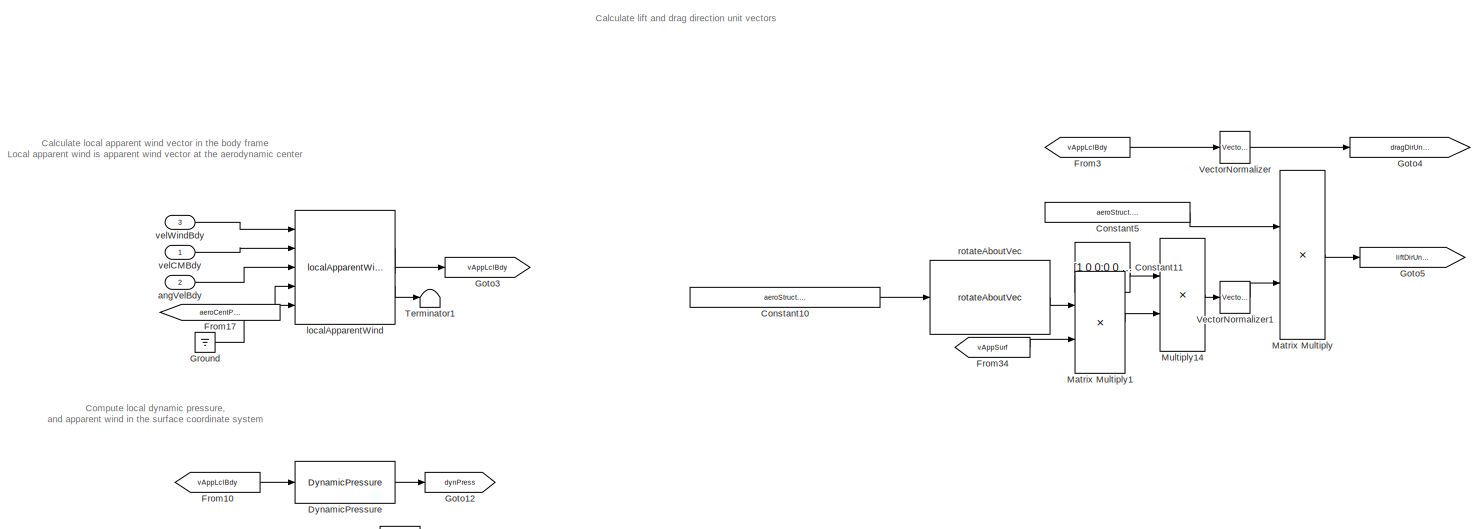
[diagram: guidanceLawPathFollowingController/ctrlAllocMatrix/momentComponentVector/aileronPortion1 - part 1/4, top center region]
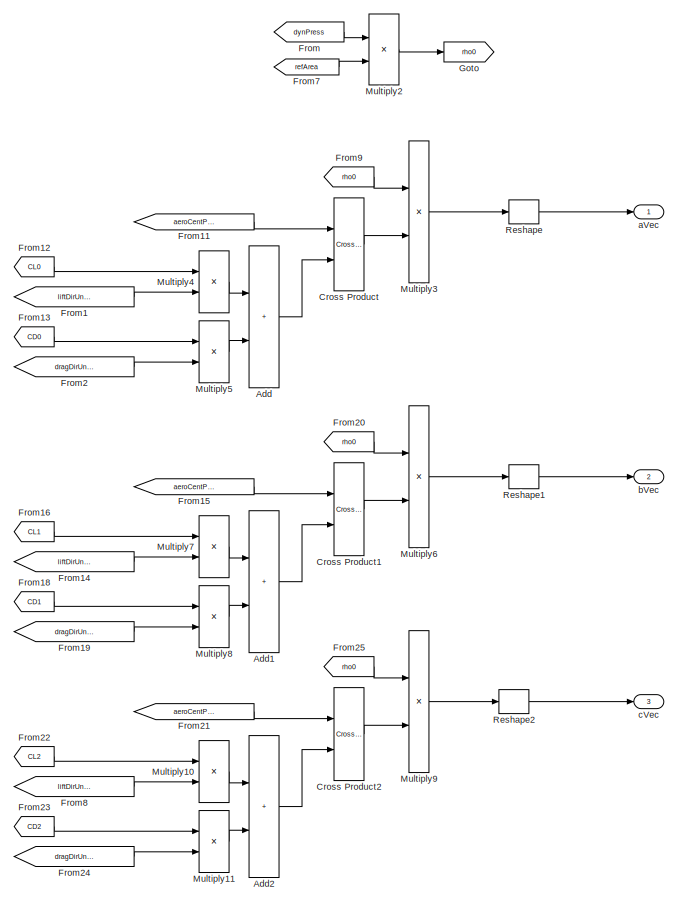
[diagram: guidanceLawPathFollowingController/ctrlAllocMatrix/momentComponentVector/aileronPortion1 - part 2/4, middle right region]
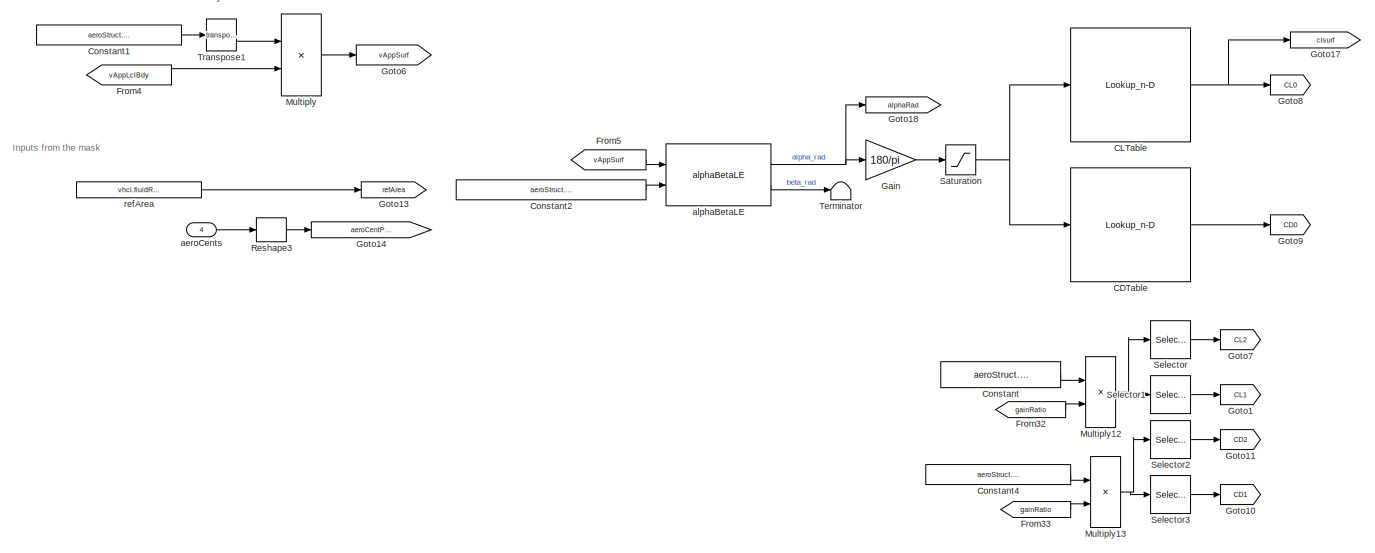
[diagram: guidanceLawPathFollowingController/ctrlAllocMatrix/momentComponentVector/aileronPortion1 - part 3/4, central region]
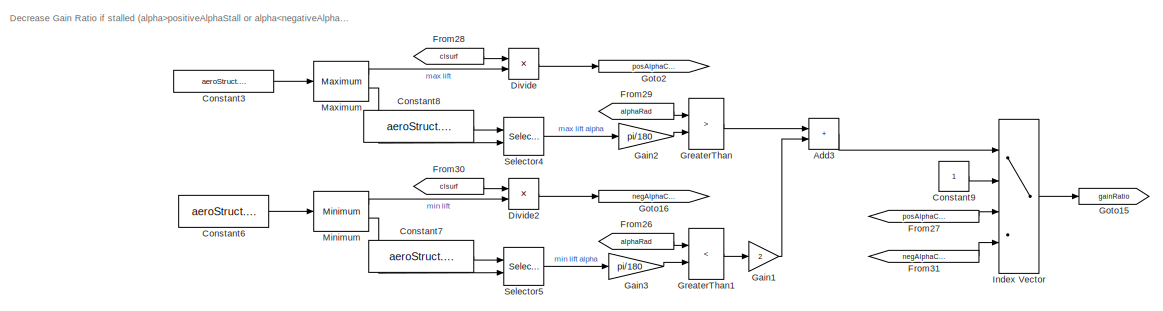
[diagram: guidanceLawPathFollowingController/ctrlAllocMatrix/momentComponentVector/aileronPortion1 - part 4/4, bottom right region]
BLOCK [SubSystem] guidanceLawPathFollowingController/ctrlAllocMatrix/momentComponentVector/aileronPortion1
  Ports = [4, 3]
  RequestExecContextInheritance = off
BLOCK [Sum] guidanceLawPathFollowingController/ctrlAllocMatrix/momentComponentVector/aileronPortion1/Add
  IconShape = rectangular
  Ports = [2, 1]
BLOCK [Sum] guidanceLawPathFollowingController/ctrlAllocMatrix/momentComponentVector/aileronPortion1/Add1
  IconShape = rectangular
  Ports = [2, 1]
BLOCK [Sum] guidanceLawPathFollowingController/ctrlAllocMatrix/momentComponentVector/aileronPortion1/Add2
  IconShape = rectangular
  Ports = [2, 1]
BLOCK [Sum] guidanceLawPathFollowingController/ctrlAllocMatrix/momentComponentVector/aileronPortion1/Add3
  IconShape = rectangular
  Ports = [2, 1]
BLOCK [Lookup_n-D] guidanceLawPathFollowingController/ctrlAllocMatrix/momentComponentVector/aileronPortion1/CDTable
  BreakpointsForDimension1 = aeroStruct.alpha.Value
  ExtrapMethod = Clip
  InputPortMap = u0
  InternalRulePriority = Speed
  LookupTableObject = CLTable
  NumberOfTableDimensions = 1
  Ports = [1, 1]
  RndMeth = Simplest
  Table = aeroStruct.CD.Value
  UseLastTableValue = on
BLOCK [Lookup_n-D] guidanceLawPathFollowingController/ctrlAllocMatrix/momentComponentVector/aileronPortion1/CLTable
  BreakpointsForDimension1 = aeroStruct.alpha.Value
  ExtrapMethod = Clip
  InputPortMap = u0
  InternalRulePriority = Speed
  LookupTableObject = CLTable
  NumberOfTableDimensions = 1
  Ports = [1, 1]
  RndMeth = Simplest
  Table = aeroStruct.CL.Value
  UseLastTableValue = on
BLOCK [Constant] guidanceLawPathFollowingController/ctrlAllocMatrix/momentComponentVector/aileronPortion1/Constant
  NameLocation = top
  Value = aeroStruct.gainCL.Value
BLOCK [Constant] guidanceLawPathFollowingController/ctrlAllocMatrix/momentComponentVector/aileronPortion1/Constant1
  Value = aeroStruct.RSurf2Bdy.Value
BLOCK [Constant] guidanceLawPathFollowingController/ctrlAllocMatrix/momentComponentVector/aileronPortion1/Constant10
  Value = aeroStruct.incAlphaUnitVecSurf.Value
BLOCK [Constant] guidanceLawPathFollowingController/ctrlAllocMatrix/momentComponentVector/aileronPortion1/Constant11
  Value = [1 0 0;0 0 0;0 0 1]
BLOCK [Constant] guidanceLawPathFollowingController/ctrlAllocMatrix/momentComponentVector/aileronPortion1/Constant2
  Value = aeroStruct.incAlphaUnitVecSurf.Value
BLOCK [Constant] guidanceLawPathFollowingController/ctrlAllocMatrix/momentComponentVector/aileronPortion1/Constant3
  Value = aeroStruct.CL.Value
BLOCK [Constant] guidanceLawPathFollowingController/ctrlAllocMatrix/momentComponentVector/aileronPortion1/Constant4
  NameLocation = top
  Value = aeroStruct.gainCD.Value
BLOCK [Constant] guidanceLawPathFollowingController/ctrlAllocMatrix/momentComponentVector/aileronPortion1/Constant5
  Value = aeroStruct.RSurf2Bdy.Value
BLOCK [Constant] guidanceLawPathFollowingController/ctrlAllocMatrix/momentComponentVector/aileronPortion1/Constant6
  Value = aeroStruct.CL.Value
BLOCK [Constant] guidanceLawPathFollowingController/ctrlAllocMatrix/momentComponentVector/aileronPortion1/Constant7
  Value = aeroStruct.alpha.Value
BLOCK [Constant] guidanceLawPathFollowingController/ctrlAllocMatrix/momentComponentVector/aileronPortion1/Constant8
  Value = aeroStruct.alpha.Value
BLOCK [Constant] guidanceLawPathFollowingController/ctrlAllocMatrix/momentComponentVector/aileronPortion1/Constant9
BLOCK [Reference] guidanceLawPathFollowingController/ctrlAllocMatrix/momentComponentVector/aileronPortion1/Cross Product  REF=vrlib/Utilities/Cross Product
  Ports = [2, 1]
  SourceBlock = vrlib/Utilities/Cross Product
  SourceProductBaseCode = SL
  SourceType = Cross Product
BLOCK [Reference] guidanceLawPathFollowingController/ctrlAllocMatrix/momentComponentVector/aileronPortion1/Cross Product1  REF=vrlib/Utilities/Cross Product
  Ports = [2, 1]
  SourceBlock = vrlib/Utilities/Cross Product
  SourceProductBaseCode = SL
  SourceType = Cross Product
BLOCK [Reference] guidanceLawPathFollowingController/ctrlAllocMatrix/momentComponentVector/aileronPortion1/Cross Product2  REF=vrlib/Utilities/Cross Product
  Ports = [2, 1]
  SourceBlock = vrlib/Utilities/Cross Product
  SourceProductBaseCode = SL
  SourceType = Cross Product
BLOCK [Product] guidanceLawPathFollowingController/ctrlAllocMatrix/momentComponentVector/aileronPortion1/Divide
  Inputs = */
  Ports = [2, 1]
BLOCK [Product] guidanceLawPathFollowingController/ctrlAllocMatrix/momentComponentVector/aileronPortion1/Divide2
  Inputs = */
  Ports = [2, 1]
BLOCK [Reference] guidanceLawPathFollowingController/ctrlAllocMatrix/momentComponentVector/aileronPortion1/DynamicPressure  REF=dynamicPressure_ul/DynamicPressure
  Ports = [1, 1]
  SourceBlock = dynamicPressure_ul/DynamicPressure
BLOCK [From] guidanceLawPathFollowingController/ctrlAllocMatrix/momentComponentVector/aileronPortion1/From
  GotoTag = dynPress
BLOCK [From] guidanceLawPathFollowingController/ctrlAllocMatrix/momentComponentVector/aileronPortion1/From1
  GotoTag = liftDirUnitVecBdy
BLOCK [From] guidanceLawPathFollowingController/ctrlAllocMatrix/momentComponentVector/aileronPortion1/From10
  GotoTag = vAppLclBdy
BLOCK [From] guidanceLawPathFollowingController/ctrlAllocMatrix/momentComponentVector/aileronPortion1/From11
  GotoTag = aeroCentPosVecBdy
BLOCK [From] guidanceLawPathFollowingController/ctrlAllocMatrix/momentComponentVector/aileronPortion1/From12
  GotoTag = CL0
BLOCK [From] guidanceLawPathFollowingController/ctrlAllocMatrix/momentComponentVector/aileronPortion1/From13
  GotoTag = CD0
BLOCK [From] guidanceLawPathFollowingController/ctrlAllocMatrix/momentComponentVector/aileronPortion1/From14
  GotoTag = liftDirUnitVecBdy
BLOCK [From] guidanceLawPathFollowingController/ctrlAllocMatrix/momentComponentVector/aileronPortion1/From15
  GotoTag = aeroCentPosVecBdy
BLOCK [From] guidanceLawPathFollowingController/ctrlAllocMatrix/momentComponentVector/aileronPortion1/From16
  GotoTag = CL1
BLOCK [From] guidanceLawPathFollowingController/ctrlAllocMatrix/momentComponentVector/aileronPortion1/From17
  GotoTag = aeroCentPosVecBdy
BLOCK [From] guidanceLawPathFollowingController/ctrlAllocMatrix/momentComponentVector/aileronPortion1/From18
  GotoTag = CD1
BLOCK [From] guidanceLawPathFollowingController/ctrlAllocMatrix/momentComponentVector/aileronPortion1/From19
  GotoTag = dragDirUnitVecBdy
BLOCK [From] guidanceLawPathFollowingController/ctrlAllocMatrix/momentComponentVector/aileronPortion1/From2
  GotoTag = dragDirUnitVecBdy
BLOCK [From] guidanceLawPathFollowingController/ctrlAllocMatrix/momentComponentVector/aileronPortion1/From20
  GotoTag = rho0
BLOCK [From] guidanceLawPathFollowingController/ctrlAllocMatrix/momentComponentVector/aileronPortion1/From21
  GotoTag = aeroCentPosVecBdy
BLOCK [From] guidanceLawPathFollowingController/ctrlAllocMatrix/momentComponentVector/aileronPortion1/From22
  GotoTag = CL2
BLOCK [From] guidanceLawPathFollowingController/ctrlAllocMatrix/momentComponentVector/aileronPortion1/From23
  GotoTag = CD2
BLOCK [From] guidanceLawPathFollowingController/ctrlAllocMatrix/momentComponentVector/aileronPortion1/From24
  GotoTag = dragDirUnitVecBdy
BLOCK [From] guidanceLawPathFollowingController/ctrlAllocMatrix/momentComponentVector/aileronPortion1/From25
  GotoTag = rho0
BLOCK [From] guidanceLawPathFollowingController/ctrlAllocMatrix/momentComponentVector/aileronPortion1/From26
  GotoTag = alphaRad
BLOCK [From] guidanceLawPathFollowingController/ctrlAllocMatrix/momentComponentVector/aileronPortion1/From27
  GotoTag = posAlphaCLRatio
BLOCK [From] guidanceLawPathFollowingController/ctrlAllocMatrix/momentComponentVector/aileronPortion1/From28
  GotoTag = clsurf
BLOCK [From] guidanceLawPathFollowingController/ctrlAllocMatrix/momentComponentVector/aileronPortion1/From29
  GotoTag = alphaRad
BLOCK [From] guidanceLawPathFollowingController/ctrlAllocMatrix/momentComponentVector/aileronPortion1/From3
  GotoTag = vAppLclBdy
BLOCK [From] guidanceLawPathFollowingController/ctrlAllocMatrix/momentComponentVector/aileronPortion1/From30
  GotoTag = clsurf
BLOCK [From] guidanceLawPathFollowingController/ctrlAllocMatrix/momentComponentVector/aileronPortion1/From31
  GotoTag = negAlphaCLRatio
BLOCK [From] guidanceLawPathFollowingController/ctrlAllocMatrix/momentComponentVector/aileronPortion1/From32
  GotoTag = gainRatio
BLOCK [From] guidanceLawPathFollowingController/ctrlAllocMatrix/momentComponentVector/aileronPortion1/From33
  GotoTag = gainRatio
BLOCK [From] guidanceLawPathFollowingController/ctrlAllocMatrix/momentComponentVector/aileronPortion1/From34
  GotoTag = vAppSurf
BLOCK [From] guidanceLawPathFollowingController/ctrlAllocMatrix/momentComponentVector/aileronPortion1/From4
  GotoTag = vAppLclBdy
BLOCK [From] guidanceLawPathFollowingController/ctrlAllocMatrix/momentComponentVector/aileronPortion1/From5
  GotoTag = vAppSurf
BLOCK [From] guidanceLawPathFollowingController/ctrlAllocMatrix/momentComponentVector/aileronPortion1/From7
  GotoTag = refArea
BLOCK [From] guidanceLawPathFollowingController/ctrlAllocMatrix/momentComponentVector/aileronPortion1/From8
  GotoTag = liftDirUnitVecBdy
BLOCK [From] guidanceLawPathFollowingController/ctrlAllocMatrix/momentComponentVector/aileronPortion1/From9
  GotoTag = rho0
BLOCK [Gain] guidanceLawPathFollowingController/ctrlAllocMatrix/momentComponentVector/aileronPortion1/Gain
  Gain = 180/pi
BLOCK [Gain] guidanceLawPathFollowingController/ctrlAllocMatrix/momentComponentVector/aileronPortion1/Gain1
  Gain = 2
BLOCK [Gain] guidanceLawPathFollowingController/ctrlAllocMatrix/momentComponentVector/aileronPortion1/Gain2
  Gain = pi/180
BLOCK [Gain] guidanceLawPathFollowingController/ctrlAllocMatrix/momentComponentVector/aileronPortion1/Gain3
  Gain = pi/180
BLOCK [Goto] guidanceLawPathFollowingController/ctrlAllocMatrix/momentComponentVector/aileronPortion1/Goto
  GotoTag = rho0
BLOCK [Goto] guidanceLawPathFollowingController/ctrlAllocMatrix/momentComponentVector/aileronPortion1/Goto1
  GotoTag = CL1
BLOCK [Goto] guidanceLawPathFollowingController/ctrlAllocMatrix/momentComponentVector/aileronPortion1/Goto10
  GotoTag = CD1
BLOCK [Goto] guidanceLawPathFollowingController/ctrlAllocMatrix/momentComponentVector/aileronPortion1/Goto11
  GotoTag = CD2
BLOCK [Goto] guidanceLawPathFollowingController/ctrlAllocMatrix/momentComponentVector/aileronPortion1/Goto12
  GotoTag = dynPress
BLOCK [Goto] guidanceLawPathFollowingController/ctrlAllocMatrix/momentComponentVector/aileronPortion1/Goto13
  GotoTag = refArea
BLOCK [Goto] guidanceLawPathFollowingController/ctrlAllocMatrix/momentComponentVector/aileronPortion1/Goto14
  GotoTag = aeroCentPosVecBdy
BLOCK [Goto] guidanceLawPathFollowingController/ctrlAllocMatrix/momentComponentVector/aileronPortion1/Goto15
  GotoTag = gainRatio
BLOCK [Goto] guidanceLawPathFollowingController/ctrlAllocMatrix/momentComponentVector/aileronPortion1/Goto16
  GotoTag = negAlphaCLRatio
BLOCK [Goto] guidanceLawPathFollowingController/ctrlAllocMatrix/momentComponentVector/aileronPortion1/Goto17
  GotoTag = clsurf
BLOCK [Goto] guidanceLawPathFollowingController/ctrlAllocMatrix/momentComponentVector/aileronPortion1/Goto18
  GotoTag = alphaRad
BLOCK [Goto] guidanceLawPathFollowingController/ctrlAllocMatrix/momentComponentVector/aileronPortion1/Goto2
  GotoTag = posAlphaCLRatio
BLOCK [Goto] guidanceLawPathFollowingController/ctrlAllocMatrix/momentComponentVector/aileronPortion1/Goto3
  GotoTag = vAppLclBdy
BLOCK [Goto] guidanceLawPathFollowingController/ctrlAllocMatrix/momentComponentVector/aileronPortion1/Goto4
  GotoTag = dragDirUnitVecBdy
BLOCK [Goto] guidanceLawPathFollowingController/ctrlAllocMatrix/momentComponentVector/aileronPortion1/Goto5
  GotoTag = liftDirUnitVecBdy
BLOCK [Goto] guidanceLawPathFollowingController/ctrlAllocMatrix/momentComponentVector/aileronPortion1/Goto6
  GotoTag = vAppSurf
BLOCK [Goto] guidanceLawPathFollowingController/ctrlAllocMatrix/momentComponentVector/aileronPortion1/Goto7
  GotoTag = CL2
BLOCK [Goto] guidanceLawPathFollowingController/ctrlAllocMatrix/momentComponentVector/aileronPortion1/Goto8
  GotoTag = CL0
BLOCK [Goto] guidanceLawPathFollowingController/ctrlAllocMatrix/momentComponentVector/aileronPortion1/Goto9
  GotoTag = CD0
BLOCK [RelationalOperator] guidanceLawPathFollowingController/ctrlAllocMatrix/momentComponentVector/aileronPortion1/GreaterThan
  InputSameDT = off
  Operator = >
  OutDataTypeStr = boolean
  Ports = [2, 1]
  RndMeth = Simplest
BLOCK [RelationalOperator] guidanceLawPathFollowingController/ctrlAllocMatrix/momentComponentVector/aileronPortion1/GreaterThan1
  InputSameDT = off
  Operator = <
  OutDataTypeStr = boolean
  Ports = [2, 1]
  RndMeth = Simplest
BLOCK [Ground] guidanceLawPathFollowingController/ctrlAllocMatrix/momentComponentVector/aileronPortion1/Ground
BLOCK [MultiPortSwitch] guidanceLawPathFollowingController/ctrlAllocMatrix/momentComponentVector/aileronPortion1/Index Vector
  DataPortOrder = Zero-based contiguous
  InputSameDT = off
  Ports = [4, 1]
  SaturateOnIntegerOverflow = off
  zeroidx = on
BLOCK [Product] guidanceLawPathFollowingController/ctrlAllocMatrix/momentComponentVector/aileronPortion1/Matrix Multiply
  Multiplication = Matrix(*)
  Ports = [2, 1]
BLOCK [Product] guidanceLawPathFollowingController/ctrlAllocMatrix/momentComponentVector/aileronPortion1/Matrix Multiply1
  Multiplication = Matrix(*)
  Ports = [2, 1]
BLOCK [Reference] guidanceLawPathFollowingController/ctrlAllocMatrix/momentComponentVector/aileronPortion1/Maximum  REF=dspstat3/Maximum
  Ports = [1, 2]
  SourceBlock = dspstat3/Maximum
  SourceProductBaseCode = DS
  SourceType = Maximum
  UserDataPersistent = on
BLOCK [Reference] guidanceLawPathFollowingController/ctrlAllocMatrix/momentComponentVector/aileronPortion1/Minimum  REF=dspstat3/Minimum
  Ports = [1, 2]
  SourceBlock = dspstat3/Minimum
  SourceProductBaseCode = DS
  SourceType = Minimum
  UserDataPersistent = on
BLOCK [Product] guidanceLawPathFollowingController/ctrlAllocMatrix/momentComponentVector/aileronPortion1/Multiply
  Multiplication = Matrix(*)
  Ports = [2, 1]
BLOCK [Product] guidanceLawPathFollowingController/ctrlAllocMatrix/momentComponentVector/aileronPortion1/Multiply10
  Ports = [2, 1]
BLOCK [Product] guidanceLawPathFollowingController/ctrlAllocMatrix/momentComponentVector/aileronPortion1/Multiply11
  Ports = [2, 1]
BLOCK [Product] guidanceLawPathFollowingController/ctrlAllocMatrix/momentComponentVector/aileronPortion1/Multiply12
  Ports = [2, 1]
BLOCK [Product] guidanceLawPathFollowingController/ctrlAllocMatrix/momentComponentVector/aileronPortion1/Multiply13
  Ports = [2, 1]
BLOCK [Product] guidanceLawPathFollowingController/ctrlAllocMatrix/momentComponentVector/aileronPortion1/Multiply14
  Multiplication = Matrix(*)
  Ports = [2, 1]
BLOCK [Product] guidanceLawPathFollowingController/ctrlAllocMatrix/momentComponentVector/aileronPortion1/Multiply2
  Ports = [2, 1]
BLOCK [Product] guidanceLawPathFollowingController/ctrlAllocMatrix/momentComponentVector/aileronPortion1/Multiply3
  Ports = [2, 1]
BLOCK [Product] guidanceLawPathFollowingController/ctrlAllocMatrix/momentComponentVector/aileronPortion1/Multiply4
  Ports = [2, 1]
BLOCK [Product] guidanceLawPathFollowingController/ctrlAllocMatrix/momentComponentVector/aileronPortion1/Multiply5
  Ports = [2, 1]
BLOCK [Product] guidanceLawPathFollowingController/ctrlAllocMatrix/momentComponentVector/aileronPortion1/Multiply6
  Ports = [2, 1]
BLOCK [Product] guidanceLawPathFollowingController/ctrlAllocMatrix/momentComponentVector/aileronPortion1/Multiply7
  Ports = [2, 1]
BLOCK [Product] guidanceLawPathFollowingController/ctrlAllocMatrix/momentComponentVector/aileronPortion1/Multiply8
  Ports = [2, 1]
BLOCK [Product] guidanceLawPathFollowingController/ctrlAllocMatrix/momentComponentVector/aileronPortion1/Multiply9
  Ports = [2, 1]
BLOCK [Reshape] guidanceLawPathFollowingController/ctrlAllocMatrix/momentComponentVector/aileronPortion1/Reshape
  OutputDimensionality = Column vector (2-D)
  Ports = [1, 1]
BLOCK [Reshape] guidanceLawPathFollowingController/ctrlAllocMatrix/momentComponentVector/aileronPortion1/Reshape1
  OutputDimensionality = Column vector (2-D)
  Ports = [1, 1]
BLOCK [Reshape] guidanceLawPathFollowingController/ctrlAllocMatrix/momentComponentVector/aileronPortion1/Reshape2
  OutputDimensionality = Column vector (2-D)
  Ports = [1, 1]
BLOCK [Reshape] guidanceLawPathFollowingController/ctrlAllocMatrix/momentComponentVector/aileronPortion1/Reshape3
  OutputDimensionality = Column vector (2-D)
  Ports = [1, 1]
BLOCK [Saturate] guidanceLawPathFollowingController/ctrlAllocMatrix/momentComponentVector/aileronPortion1/Saturation
  LowerLimit = -90
  UpperLimit = 90
BLOCK [Selector] guidanceLawPathFollowingController/ctrlAllocMatrix/momentComponentVector/aileronPortion1/Selector
  IndexOptions = Index vector (dialog)
  Indices = 1
  InputPortWidth = 3
  OutputSizes = 1
  Ports = [1, 1]
BLOCK [Selector] guidanceLawPathFollowingController/ctrlAllocMatrix/momentComponentVector/aileronPortion1/Selector1
  IndexOptions = Index vector (dialog)
  Indices = 2
  InputPortWidth = 3
  OutputSizes = 1
  Ports = [1, 1]
BLOCK [Selector] guidanceLawPathFollowingController/ctrlAllocMatrix/momentComponentVector/aileronPortion1/Selector2
  IndexOptions = Index vector (dialog)
  Indices = 1
  InputPortWidth = 3
  OutputSizes = 1
  Ports = [1, 1]
BLOCK [Selector] guidanceLawPathFollowingController/ctrlAllocMatrix/momentComponentVector/aileronPortion1/Selector3
  IndexOptions = Index vector (dialog)
  Indices = 2
  InputPortWidth = 3
  OutputSizes = 1
  Ports = [1, 1]
BLOCK [Selector] guidanceLawPathFollowingController/ctrlAllocMatrix/momentComponentVector/aileronPortion1/Selector4
  IndexOptions = Index vector (port)
  Indices = [1 3]
  InputPortWidth = length(vhcl.portWing.alpha.Value)
  OutputSizes = 1
  Ports = [2, 1]
BLOCK [Selector] guidanceLawPathFollowingController/ctrlAllocMatrix/momentComponentVector/aileronPortion1/Selector5
  IndexOptions = Index vector (port)
  Indices = [1 3]
  InputPortWidth = length(vhcl.portWing.alpha.Value)
  OutputSizes = 1
  Ports = [2, 1]
BLOCK [Terminator] guidanceLawPathFollowingController/ctrlAllocMatrix/momentComponentVector/aileronPortion1/Terminator
BLOCK [Terminator] guidanceLawPathFollowingController/ctrlAllocMatrix/momentComponentVector/aileronPortion1/Terminator1
BLOCK [Math] guidanceLawPathFollowingController/ctrlAllocMatrix/momentComponentVector/aileronPortion1/Transpose1
  Operator = transpose
  Ports = [1, 1]
  SignedPower = on
BLOCK [Reference] guidanceLawPathFollowingController/ctrlAllocMatrix/momentComponentVector/aileronPortion1/VectorNormalizer   REF=vectorNormalizer_ul/VectorNormalizer

  Ports = [1, 1]
  SourceBlock = vectorNormalizer_ul/VectorNormalizer
  SourceType = SubSystem
BLOCK [Reference] guidanceLawPathFollowingController/ctrlAllocMatrix/momentComponentVector/aileronPortion1/VectorNormalizer1  REF=vectorNormalizer_ul/VectorNormalizer

  Ports = [1, 1]
  SourceBlock = vectorNormalizer_ul/VectorNormalizer
  SourceType = SubSystem
BLOCK [Outport] guidanceLawPathFollowingController/ctrlAllocMatrix/momentComponentVector/aileronPortion1/aVec
  PortDimensions = [3 1]
  VectorParamsAs1DForOutWhenUnconnected = off
BLOCK [Inport] guidanceLawPathFollowingController/ctrlAllocMatrix/momentComponentVector/aileronPortion1/aeroCents
  Port = 4
BLOCK [Reference] guidanceLawPathFollowingController/ctrlAllocMatrix/momentComponentVector/aileronPortion1/alphaBetaLE  REF=alphaBetaLE_ul/alphaBetaLE
  Ports = [2, 2]
  SourceBlock = alphaBetaLE_ul/alphaBetaLE
  SourceType = SubSystem
BLOCK [Inport] guidanceLawPathFollowingController/ctrlAllocMatrix/momentComponentVector/aileronPortion1/angVelBdy
  Port = 2
BLOCK [Outport] guidanceLawPathFollowingController/ctrlAllocMatrix/momentComponentVector/aileronPortion1/bVec
  Port = 2
  PortDimensions = [3 1]
  VectorParamsAs1DForOutWhenUnconnected = off
BLOCK [Outport] guidanceLawPathFollowingController/ctrlAllocMatrix/momentComponentVector/aileronPortion1/cVec
  Port = 3
  PortDimensions = [3 1]
  VectorParamsAs1DForOutWhenUnconnected = off
BLOCK [Reference] guidanceLawPathFollowingController/ctrlAllocMatrix/momentComponentVector/aileronPortion1/localApparentWind  REF=localApparentWind_ul/localApparentWind
  Ports = [5, 2]
  SourceBlock = localApparentWind_ul/localApparentWind
  SourceType = SubSystem
BLOCK [Constant] guidanceLawPathFollowingController/ctrlAllocMatrix/momentComponentVector/aileronPortion1/refArea
  Value = vhcl.fluidRefArea.Value
BLOCK [Reference] guidanceLawPathFollowingController/ctrlAllocMatrix/momentComponentVector/aileronPortion1/rotateAboutVec  REF=rotateAboutVec/rotateAboutVec
  Ports = [1, 1]
  SourceBlock = rotateAboutVec/rotateAboutVec
BLOCK [Inport] guidanceLawPathFollowingController/ctrlAllocMatrix/momentComponentVector/aileronPortion1/velCMBdy
BLOCK [Inport] guidanceLawPathFollowingController/ctrlAllocMatrix/momentComponentVector/aileronPortion1/velWindBdy
  Port = 3
BLOCK [Reference] guidanceLawPathFollowingController/ctrlAllocMatrix/momentComponentVector/aileronPortion2  REF=ctrlAllocMatrix_cl/ctrlAllocMatrix/momentComponentVector/aileronPortion1
  Ports = [4, 3]
  SourceBlock = ctrlAllocMatrix_cl/ctrlAllocMatrix/momentComponentVector/aileronPortion1
BLOCK [Inport] guidanceLawPathFollowingController/ctrlAllocMatrix/momentComponentVector/angVelBdy
  Port = 2
BLOCK [Outport] guidanceLawPathFollowingController/ctrlAllocMatrix/momentComponentVector/bias
BLOCK [Outport] guidanceLawPathFollowingController/ctrlAllocMatrix/momentComponentVector/linearComponent
  Port = 2
BLOCK [Reference] guidanceLawPathFollowingController/ctrlAllocMatrix/momentComponentVector/rudderPortion  REF=ctrlAllocMatrix_cl/ctrlAllocMatrix/momentComponentVector/aileronPortion1
  Ports = [4, 3]
  SourceBlock = ctrlAllocMatrix_cl/ctrlAllocMatrix/momentComponentVector/aileronPortion1
BLOCK [Inport] guidanceLawPathFollowingController/ctrlAllocMatrix/momentComponentVector/velCMBdy
BLOCK [Inport] guidanceLawPathFollowingController/ctrlAllocMatrix/momentComponentVector/velWindBdy
  Port = 3
BLOCK [Inport] guidanceLawPathFollowingController/ctrlAllocMatrix/velCMGnd
BLOCK [Inport] guidanceLawPathFollowingController/ctrlAllocMatrix/velWindGnd
  Port = 3
BLOCK [Outport] guidanceLawPathFollowingController/ctrlBus
  OutDataTypeStr = Bus: fltCtrlBus
  VectorParamsAs1DForOutWhenUnconnected = off
BLOCK [Inport] guidanceLawPathFollowingController/envBus
  OutDataTypeStr = Bus: envBus
  Port = 3
BLOCK [SubSystem] guidanceLawPathFollowingController/filteredPIDController2
  AncestorBlock = filteredPIDController_ul/filteredPIDController
  Ports = [1, 1]
  RequestExecContextInheritance = off
BLOCK [Sum] guidanceLawPathFollowingController/filteredPIDController2/Add
  IconShape = rectangular
  Inputs = +-
  Ports = [2, 1]
BLOCK [Sum] guidanceLawPathFollowingController/filteredPIDController2/Add1
  IconShape = rectangular
  Inputs = +++
  Ports = [3, 1]
BLOCK [Product] guidanceLawPathFollowingController/filteredPIDController2/Divide
  Inputs = */
  Ports = [2, 1]
BLOCK [From] guidanceLawPathFollowingController/filteredPIDController2/From
  GotoTag = y
BLOCK [From] guidanceLawPathFollowingController/filteredPIDController2/From1
  GotoTag = u
BLOCK [From] guidanceLawPathFollowingController/filteredPIDController2/From2
  GotoTag = u
BLOCK [From] guidanceLawPathFollowingController/filteredPIDController2/From3
  GotoTag = u
BLOCK [Goto] guidanceLawPathFollowingController/filteredPIDController2/Goto
  GotoTag = y
BLOCK [Goto] guidanceLawPathFollowingController/filteredPIDController2/Goto1
  GotoTag = u
BLOCK [Integrator] guidanceLawPathFollowingController/filteredPIDController2/Integrator
  Ports = [1, 1]
BLOCK [Integrator] guidanceLawPathFollowingController/filteredPIDController2/Integrator1
  Ports = [1, 1]
BLOCK [Integrator] guidanceLawPathFollowingController/filteredPIDController2/Integrator2
  Ports = [1, 1]
BLOCK [MinMax] guidanceLawPathFollowingController/filteredPIDController2/Max
  Function = max
  Inputs = 2
  Ports = [2, 1]
BLOCK [SampleTimeMath] guidanceLawPathFollowingController/filteredPIDController2/Weighted Sample Time
  TsampMathOp = Ts Only
BLOCK [Constant] guidanceLawPathFollowingController/filteredPIDController2/const
BLOCK [Gain] guidanceLawPathFollowingController/filteredPIDController2/kd
  Gain = kd
BLOCK [Gain] guidanceLawPathFollowingController/filteredPIDController2/ki
  Gain = ki
BLOCK [Gain] guidanceLawPathFollowingController/filteredPIDController2/kp
  Gain = kp
BLOCK [Constant] guidanceLawPathFollowingController/filteredPIDController2/tau
  Value = Value
BLOCK [Inport] guidanceLawPathFollowingController/filteredPIDController2/u
  PortDimensions = 1
BLOCK [Outport] guidanceLawPathFollowingController/filteredPIDController2/y
  PortDimensions = 1
  VectorParamsAs1DForOutWhenUnconnected = off
BLOCK [SubSystem] guidanceLawPathFollowingController/find closest path parameter
  AncestorBlock = findClosestPointOnPath/find closest path parameter
  Ports = [6, 1]
  RequestExecContextInheritance = off
BLOCK [Sum] guidanceLawPathFollowingController/find closest path parameter/Add
  IconShape = rectangular
  Inputs = -+
  Ports = [2, 1]
BLOCK [Sum] guidanceLawPathFollowingController/find closest path parameter/Add1
  IconShape = rectangular
  Ports = [2, 1]
BLOCK [Constant] guidanceLawPathFollowingController/find closest path parameter/Constant
  Value = maxBackward
BLOCK [Constant] guidanceLawPathFollowingController/find closest path parameter/Constant1
  Value = maxForward
BLOCK [Inport] guidanceLawPathFollowingController/find closest path parameter/G_rCM
BLOCK [SubSystem] guidanceLawPathFollowingController/find closest path parameter/Golden section search
  Ports = [3, 1]
  RequestExecContextInheritance = off
  TreatAsAtomicUnit = on
BLOCK [Abs] guidanceLawPathFollowingController/find closest path parameter/Golden section search/Abs
  SaturateOnIntegerOverflow = off
BLOCK [Sum] guidanceLawPathFollowingController/find closest path parameter/Golden section search/Add
  IconShape = rectangular
  Ports = [2, 1]
BLOCK [Sum] guidanceLawPathFollowingController/find closest path parameter/Golden section search/Add1
  IconShape = rectangular
  Inputs = +-
  Ports = [2, 1]
BLOCK [Sum] guidanceLawPathFollowingController/find closest path parameter/Golden section search/Add2
  IconShape = rectangular
  Inputs = +-
  Ports = [2, 1]
BLOCK [Constant] guidanceLawPathFollowingController/find closest path parameter/Golden section search/Constant
  Value = convergeTol
BLOCK [Constant] guidanceLawPathFollowingController/find closest path parameter/Golden section search/Constant4
BLOCK [RelationalOperator] guidanceLawPathFollowingController/find closest path parameter/Golden section search/Equal
  InputSameDT = off
  Operator = ==
  OutDataTypeStr = boolean
  Ports = [2, 1]
  RndMeth = Simplest
BLOCK [From] guidanceLawPathFollowingController/find closest path parameter/Golden section search/From
  GotoTag = init
BLOCK [From] guidanceLawPathFollowingController/find closest path parameter/Golden section search/From14
  GotoTag = other
BLOCK [From] guidanceLawPathFollowingController/find closest path parameter/Golden section search/From15
  GotoTag = other
BLOCK [From] guidanceLawPathFollowingController/find closest path parameter/Golden section search/From16
  GotoTag = xU
BLOCK [From] guidanceLawPathFollowingController/find closest path parameter/Golden section search/From17
  GotoTag = lb
BLOCK [From] guidanceLawPathFollowingController/find closest path parameter/Golden section search/From18
  GotoTag = ub
BLOCK [From] guidanceLawPathFollowingController/find closest path parameter/Golden section search/From19
  GotoTag = init
BLOCK [From] guidanceLawPathFollowingController/find closest path parameter/Golden section search/From21
  GotoTag = lb
BLOCK [From] guidanceLawPathFollowingController/find closest path parameter/Golden section search/From22
  GotoTag = ub
BLOCK [From] guidanceLawPathFollowingController/find closest path parameter/Golden section search/From25
  GotoTag = x1
BLOCK [From] guidanceLawPathFollowingController/find closest path parameter/Golden section search/From26
  GotoTag = init_x1
BLOCK [From] guidanceLawPathFollowingController/find closest path parameter/Golden section search/From27
  GotoTag = init
BLOCK [From] guidanceLawPathFollowingController/find closest path parameter/Golden section search/From28
  GotoTag = init
BLOCK [From] guidanceLawPathFollowingController/find closest path parameter/Golden section search/From29
  GotoTag = init
BLOCK [From] guidanceLawPathFollowingController/find closest path parameter/Golden section search/From3
  GotoTag = xU
BLOCK [From] guidanceLawPathFollowingController/find closest path parameter/Golden section search/From30
  GotoTag = init
BLOCK [From] guidanceLawPathFollowingController/find closest path parameter/Golden section search/From31
  GotoTag = init
BLOCK [From] guidanceLawPathFollowingController/find closest path parameter/Golden section search/From32
  GotoTag = init
BLOCK [From] guidanceLawPathFollowingController/find closest path parameter/Golden section search/From33
  GotoTag = init_fx1
BLOCK [From] guidanceLawPathFollowingController/find closest path parameter/Golden section search/From34
  GotoTag = fx1
BLOCK [From] guidanceLawPathFollowingController/find closest path parameter/Golden section search/From35
  GotoTag = init_x2
BLOCK [From] guidanceLawPathFollowingController/find closest path parameter/Golden section search/From36
  GotoTag = x2
BLOCK [From] guidanceLawPathFollowingController/find closest path parameter/Golden section search/From37
  GotoTag = init_fx2
BLOCK [From] guidanceLawPathFollowingController/find closest path parameter/Golden section search/From38
  GotoTag = fx2
BLOCK [From] guidanceLawPathFollowingController/find closest path parameter/Golden section search/From39
  GotoTag = init_xL
BLOCK [From] guidanceLawPathFollowingController/find closest path parameter/Golden section search/From4
  GotoTag = xL
BLOCK [From] guidanceLawPathFollowingController/find closest path parameter/Golden section search/From40
  GotoTag = xL
BLOCK [From] guidanceLawPathFollowingController/find closest path parameter/Golden section search/From41
  GotoTag = init_xU
BLOCK [From] guidanceLawPathFollowingController/find closest path parameter/Golden section search/From42
  GotoTag = xU
BLOCK [From] guidanceLawPathFollowingController/find closest path parameter/Golden section search/From5
  GotoTag = tol
BLOCK [From] guidanceLawPathFollowingController/find closest path parameter/Golden section search/From7
  GotoTag = count
BLOCK [From] guidanceLawPathFollowingController/find closest path parameter/Golden section search/From8
  GotoTag = xL
BLOCK [SubSystem] guidanceLawPathFollowingController/find closest path parameter/Golden section search/GS initialization
  Ports = [3, 6, 1]
  RequestExecContextInheritance = off
  TreatAsAtomicUnit = on
BLOCK [Sum] guidanceLawPathFollowingController/find closest path parameter/Golden section search/GS initialization/Add
  IconShape = rectangular
  Ports = [2, 1]
BLOCK [Sum] guidanceLawPathFollowingController/find closest path parameter/Golden section search/GS initialization/Add1
  IconShape = rectangular
  Inputs = -+
  Ports = [2, 1]
BLOCK [Sum] guidanceLawPathFollowingController/find closest path parameter/Golden section search/GS initialization/Add2
  IconShape = rectangular
  Inputs = -+
  Ports = [2, 1]
BLOCK [EnablePort] guidanceLawPathFollowingController/find closest path parameter/Golden section search/GS initialization/Enable
  Ports = []
BLOCK [From] guidanceLawPathFollowingController/find closest path parameter/Golden section search/GS initialization/From
  GotoTag = init_xU
BLOCK [From] guidanceLawPathFollowingController/find closest path parameter/Golden section search/GS initialization/From1
  GotoTag = init_xL
BLOCK [From] guidanceLawPathFollowingController/find closest path parameter/Golden section search/GS initialization/From2
  GotoTag = lb
BLOCK [From] guidanceLawPathFollowingController/find closest path parameter/Golden section search/GS initialization/From3
  GotoTag = ub
BLOCK [From] guidanceLawPathFollowingController/find closest path parameter/Golden section search/GS initialization/From4
  GotoTag = lb
BLOCK [From] guidanceLawPathFollowingController/find closest path parameter/Golden section search/GS initialization/From5
  GotoTag = ub
BLOCK [From] guidanceLawPathFollowingController/find closest path parameter/Golden section search/GS initialization/From6
  GotoTag = other
BLOCK [From] guidanceLawPathFollowingController/find closest path parameter/Golden section search/GS initialization/From7
  GotoTag = other
BLOCK [Gain] guidanceLawPathFollowingController/find closest path parameter/Golden section search/GS initialization/Gain
  Gain = tau
BLOCK [Goto] guidanceLawPathFollowingController/find closest path parameter/Golden section search/GS initialization/Goto1
  GotoTag = ub
BLOCK [Goto] guidanceLawPathFollowingController/find closest path parameter/Golden section search/GS initialization/Goto12
  GotoTag = init_xL
BLOCK [Goto] guidanceLawPathFollowingController/find closest path parameter/Golden section search/GS initialization/Goto2
  GotoTag = lb
BLOCK [Goto] guidanceLawPathFollowingController/find closest path parameter/Golden section search/GS initialization/Goto21
  GotoTag = init_xU
BLOCK [Goto] guidanceLawPathFollowingController/find closest path parameter/Golden section search/GS initialization/Goto3
  GotoTag = other
BLOCK [MinMax] guidanceLawPathFollowingController/find closest path parameter/Golden section search/GS initialization/Max
  Function = max
  Inputs = 2
  Ports = [2, 1]
BLOCK [MinMax] guidanceLawPathFollowingController/find closest path parameter/Golden section search/GS initialization/Max1
  Inputs = 2
  Ports = [2, 1]
BLOCK [SubSystem] guidanceLawPathFollowingController/find closest path parameter/Golden section search/GS initialization/Subsystem
  Ports = [2, 1]
  RequestExecContextInheritance = off
BLOCK [Inport] guidanceLawPathFollowingController/find closest path parameter/Golden section search/GS initialization/Subsystem/In1
BLOCK [Inport] guidanceLawPathFollowingController/find closest path parameter/Golden section search/GS initialization/Subsystem/In2
  Port = 2
BLOCK [SubSystem] guidanceLawPathFollowingController/find closest path parameter/Golden section search/GS initialization/Subsystem/calcDistanceFromPath
  AncestorBlock = calcDistanceFromPath/calcDistanceFromPath
  Ports = [2, 1]
  RequestExecContextInheritance = off
BLOCK [Sum] guidanceLawPathFollowingController/find closest path parameter/Golden section search/GS initialization/Subsystem/calcDistanceFromPath/Add
  IconShape = rectangular
  Inputs = +-
  Ports = [2, 1]
BLOCK [Selector] guidanceLawPathFollowingController/find closest path parameter/Golden section search/GS initialization/Subsystem/calcDistanceFromPath/Selector
  IndexOptions = Index vector (dialog)
  Indices = 1
  InputPortWidth = 7
  OutputSizes = 1
  Ports = [1, 1]
BLOCK [Selector] guidanceLawPathFollowingController/find closest path parameter/Golden section search/GS initialization/Subsystem/calcDistanceFromPath/Selector1
  IndexOptions = Index vector (dialog)
  Indices = 2
  InputPortWidth = 7
  OutputSizes = 1
  Ports = [1, 1]
BLOCK [Selector] guidanceLawPathFollowingController/find closest path parameter/Golden section search/GS initialization/Subsystem/calcDistanceFromPath/Selector2
  IndexOptions = Index vector (dialog)
  Indices = 3
  InputPortWidth = 7
  OutputSizes = 1
  Ports = [1, 1]
BLOCK [Selector] guidanceLawPathFollowingController/find closest path parameter/Golden section search/GS initialization/Subsystem/calcDistanceFromPath/Selector3
  IndexOptions = Index vector (dialog)
  Indices = 4
  InputPortWidth = 7
  OutputSizes = 1
  Ports = [1, 1]
BLOCK [Selector] guidanceLawPathFollowingController/find closest path parameter/Golden section search/GS initialization/Subsystem/calcDistanceFromPath/Selector4
  IndexOptions = Index vector (dialog)
  Indices = [5 6 7]
  InputPortWidth = 7
  OutputSizes = 1
  Ports = [1, 1]
BLOCK [Reference] guidanceLawPathFollowingController/find closest path parameter/Golden section search/GS initialization/Subsystem/calcDistanceFromPath/Vector magnitude  REF=calculate_vector_magnitude/Vector magnitude  (lib defined in slx_4d1e83c0815f)
  Ports = [1, 1]
  SourceBlock = calculate_vector_magnitude/Vector magnitude
BLOCK [Reference] guidanceLawPathFollowingController/find closest path parameter/Golden section search/GS initialization/Subsystem/calcDistanceFromPath/calcPathCoordinates  REF=calc_path_coordinates/calcPathCoordinates  (lib defined in slx_545a7c4fd45d)
  Ports = [5, 1]
  SourceBlock = calc_path_coordinates/calcPathCoordinates
  SourceType = SubSystem
BLOCK [Outport] guidanceLawPathFollowingController/find closest path parameter/Golden section search/GS initialization/Subsystem/calcDistanceFromPath/distVal
BLOCK [Inport] guidanceLawPathFollowingController/find closest path parameter/Golden section search/GS initialization/Subsystem/calcDistanceFromPath/otherParams
  Port = 2
BLOCK [Inport] guidanceLawPathFollowingController/find closest path parameter/Golden section search/GS initialization/Subsystem/calcDistanceFromPath/pathParam
BLOCK [Outport] guidanceLawPathFollowingController/find closest path parameter/Golden section search/GS initialization/Subsystem/yc
BLOCK [SubSystem] guidanceLawPathFollowingController/find closest path parameter/Golden section search/GS initialization/Subsystem1
  Ports = [2, 1]
  RequestExecContextInheritance = off
BLOCK [Inport] guidanceLawPathFollowingController/find closest path parameter/Golden section search/GS initialization/Subsystem1/In1
BLOCK [Inport] guidanceLawPathFollowingController/find closest path parameter/Golden section search/GS initialization/Subsystem1/In2
  Port = 2
BLOCK [SubSystem] guidanceLawPathFollowingController/find closest path parameter/Golden section search/GS initialization/Subsystem1/calcDistanceFromPath
  AncestorBlock = calcDistanceFromPath/calcDistanceFromPath
  Ports = [2, 1]
  RequestExecContextInheritance = off
BLOCK [Sum] guidanceLawPathFollowingController/find closest path parameter/Golden section search/GS initialization/Subsystem1/calcDistanceFromPath/Add
  IconShape = rectangular
  Inputs = +-
  Ports = [2, 1]
BLOCK [Selector] guidanceLawPathFollowingController/find closest path parameter/Golden section search/GS initialization/Subsystem1/calcDistanceFromPath/Selector
  IndexOptions = Index vector (dialog)
  Indices = 1
  InputPortWidth = 7
  OutputSizes = 1
  Ports = [1, 1]
BLOCK [Selector] guidanceLawPathFollowingController/find closest path parameter/Golden section search/GS initialization/Subsystem1/calcDistanceFromPath/Selector1
  IndexOptions = Index vector (dialog)
  Indices = 2
  InputPortWidth = 7
  OutputSizes = 1
  Ports = [1, 1]
BLOCK [Selector] guidanceLawPathFollowingController/find closest path parameter/Golden section search/GS initialization/Subsystem1/calcDistanceFromPath/Selector2
  IndexOptions = Index vector (dialog)
  Indices = 3
  InputPortWidth = 7
  OutputSizes = 1
  Ports = [1, 1]
BLOCK [Selector] guidanceLawPathFollowingController/find closest path parameter/Golden section search/GS initialization/Subsystem1/calcDistanceFromPath/Selector3
  IndexOptions = Index vector (dialog)
  Indices = 4
  InputPortWidth = 7
  OutputSizes = 1
  Ports = [1, 1]
BLOCK [Selector] guidanceLawPathFollowingController/find closest path parameter/Golden section search/GS initialization/Subsystem1/calcDistanceFromPath/Selector4
  IndexOptions = Index vector (dialog)
  Indices = [5 6 7]
  InputPortWidth = 7
  OutputSizes = 1
  Ports = [1, 1]
BLOCK [Reference] guidanceLawPathFollowingController/find closest path parameter/Golden section search/GS initialization/Subsystem1/calcDistanceFromPath/Vector magnitude  REF=calculate_vector_magnitude/Vector magnitude  (lib defined in slx_4d1e83c0815f)
  Ports = [1, 1]
  SourceBlock = calculate_vector_magnitude/Vector magnitude
BLOCK [Reference] guidanceLawPathFollowingController/find closest path parameter/Golden section search/GS initialization/Subsystem1/calcDistanceFromPath/calcPathCoordinates  REF=calc_path_coordinates/calcPathCoordinates  (lib defined in slx_545a7c4fd45d)
  Ports = [5, 1]
  SourceBlock = calc_path_coordinates/calcPathCoordinates
  SourceType = SubSystem
BLOCK [Outport] guidanceLawPathFollowingController/find closest path parameter/Golden section search/GS initialization/Subsystem1/calcDistanceFromPath/distVal
BLOCK [Inport] guidanceLawPathFollowingController/find closest path parameter/Golden section search/GS initialization/Subsystem1/calcDistanceFromPath/otherParams
  Port = 2
BLOCK [Inport] guidanceLawPathFollowingController/find closest path parameter/Golden section search/GS initialization/Subsystem1/calcDistanceFromPath/pathParam
BLOCK [Outport] guidanceLawPathFollowingController/find closest path parameter/Golden section search/GS initialization/Subsystem1/yc
BLOCK [Outport] guidanceLawPathFollowingController/find closest path parameter/Golden section search/GS initialization/init_fx1
  Port = 2
BLOCK [Outport] guidanceLawPathFollowingController/find closest path parameter/Golden section search/GS initialization/init_fx2
  Port = 4
BLOCK [Outport] guidanceLawPathFollowingController/find closest path parameter/Golden section search/GS initialization/init_x1
BLOCK [Outport] guidanceLawPathFollowingController/find closest path parameter/Golden section search/GS initialization/init_x2
  Port = 3
BLOCK [Outport] guidanceLawPathFollowingController/find closest path parameter/Golden section search/GS initialization/init_xL
  Port = 5
BLOCK [Outport] guidanceLawPathFollowingController/find closest path parameter/Golden section search/GS initialization/init_xU
  Port = 6
BLOCK [Inport] guidanceLawPathFollowingController/find closest path parameter/Golden section search/GS initialization/lb
BLOCK [Inport] guidanceLawPathFollowingController/find closest path parameter/Golden section search/GS initialization/otherParams
  Port = 3
BLOCK [Inport] guidanceLawPathFollowingController/find closest path parameter/Golden section search/GS initialization/ub
  Port = 2
BLOCK [SubSystem] guidanceLawPathFollowingController/find closest path parameter/Golden section search/GS update
  Ports = [7, 6, 1]
  RequestExecContextInheritance = off
  TreatAsAtomicUnit = on
BLOCK [Sum] guidanceLawPathFollowingController/find closest path parameter/Golden section search/GS update/Add
  IconShape = rectangular
  Inputs = +-
  Ports = [2, 1]
BLOCK [Sum] guidanceLawPathFollowingController/find closest path parameter/Golden section search/GS update/Add1
  IconShape = rectangular
  Inputs = +-
  Ports = [2, 1]
BLOCK [Sum] guidanceLawPathFollowingController/find closest path parameter/Golden section search/GS update/Add2
  IconShape = rectangular
  Ports = [2, 1]
BLOCK [Sum] guidanceLawPathFollowingController/find closest path parameter/Golden section search/GS update/Add3
  IconShape = rectangular
  Inputs = +-
  Ports = [2, 1]
BLOCK [EnablePort] guidanceLawPathFollowingController/find closest path parameter/Golden section search/GS update/Enable
  Ports = []
BLOCK [From] guidanceLawPathFollowingController/find closest path parameter/Golden section search/GS update/From
  GotoTag = xL_new
BLOCK [From] guidanceLawPathFollowingController/find closest path parameter/Golden section search/GS update/From1
  GotoTag = xU_new
BLOCK [From] guidanceLawPathFollowingController/find closest path parameter/Golden section search/GS update/From12
  GotoTag = con
BLOCK [From] guidanceLawPathFollowingController/find closest path parameter/Golden section search/GS update/From13
  GotoTag = xU_old
BLOCK [From] guidanceLawPathFollowingController/find closest path parameter/Golden section search/GS update/From14
  GotoTag = x1_old
BLOCK [From] guidanceLawPathFollowingController/find closest path parameter/Golden section search/GS update/From17
  GotoTag = x1_old
BLOCK [From] guidanceLawPathFollowingController/find closest path parameter/Golden section search/GS update/From18
  GotoTag = con
BLOCK [From] guidanceLawPathFollowingController/find closest path parameter/Golden section search/GS update/From19
  GotoTag = xU_new
BLOCK [From] guidanceLawPathFollowingController/find closest path parameter/Golden section search/GS update/From2
  GotoTag = xL_new
BLOCK [From] guidanceLawPathFollowingController/find closest path parameter/Golden section search/GS update/From20
  GotoTag = x2_old
BLOCK [From] guidanceLawPathFollowingController/find closest path parameter/Golden section search/GS update/From21
  GotoTag = con
BLOCK [From] guidanceLawPathFollowingController/find closest path parameter/Golden section search/GS update/From22
  GotoTag = con
BLOCK [From] guidanceLawPathFollowingController/find closest path parameter/Golden section search/GS update/From23
  GotoTag = x2_new
BLOCK [From] guidanceLawPathFollowingController/find closest path parameter/Golden section search/GS update/From24
  GotoTag = x1_new
BLOCK [From] guidanceLawPathFollowingController/find closest path parameter/Golden section search/GS update/From25
  GotoTag = fnew
BLOCK [From] guidanceLawPathFollowingController/find closest path parameter/Golden section search/GS update/From26
  GotoTag = con
BLOCK [From] guidanceLawPathFollowingController/find closest path parameter/Golden section search/GS update/From27
  GotoTag = fx2_old
BLOCK [From] guidanceLawPathFollowingController/find closest path parameter/Golden section search/GS update/From28
  GotoTag = fx1_old
BLOCK [From] guidanceLawPathFollowingController/find closest path parameter/Golden section search/GS update/From29
  GotoTag = con
BLOCK [From] guidanceLawPathFollowingController/find closest path parameter/Golden section search/GS update/From3
  GotoTag = fx1_old
BLOCK [From] guidanceLawPathFollowingController/find closest path parameter/Golden section search/GS update/From30
  GotoTag = fnew
BLOCK [From] guidanceLawPathFollowingController/find closest path parameter/Golden section search/GS update/From4
  GotoTag = fx2_old
BLOCK [From] guidanceLawPathFollowingController/find closest path parameter/Golden section search/GS update/From5
  GotoTag = con
BLOCK [From] guidanceLawPathFollowingController/find closest path parameter/Golden section search/GS update/From6
  GotoTag = x2_old
BLOCK [From] guidanceLawPathFollowingController/find closest path parameter/Golden section search/GS update/From7
  GotoTag = xL_old
BLOCK [From] guidanceLawPathFollowingController/find closest path parameter/Golden section search/GS update/From8
  GotoTag = other
BLOCK [Gain] guidanceLawPathFollowingController/find closest path parameter/Golden section search/GS update/Gain
  Gain = tau
BLOCK [Gain] guidanceLawPathFollowingController/find closest path parameter/Golden section search/GS update/Gain1
  Gain = tau
BLOCK [Goto] guidanceLawPathFollowingController/find closest path parameter/Golden section search/GS update/Goto
  GotoTag = x1_old
BLOCK [Goto] guidanceLawPathFollowingController/find closest path parameter/Golden section search/GS update/Goto1
  GotoTag = xU_old
BLOCK [Goto] guidanceLawPathFollowingController/find closest path parameter/Golden section search/GS update/Goto10
  GotoTag = x1_new
BLOCK [Goto] guidanceLawPathFollowingController/find closest path parameter/Golden section search/GS update/Goto11
  GotoTag = fnew
BLOCK [Goto] guidanceLawPathFollowingController/find closest path parameter/Golden section search/GS update/Goto12
  GotoTag = other
BLOCK [Goto] guidanceLawPathFollowingController/find closest path parameter/Golden section search/GS update/Goto2
  GotoTag = x2_new
BLOCK [Goto] guidanceLawPathFollowingController/find closest path parameter/Golden section search/GS update/Goto3
  GotoTag = fx1_old
BLOCK [Goto] guidanceLawPathFollowingController/find closest path parameter/Golden section search/GS update/Goto4
  GotoTag = x2_old
BLOCK [Goto] guidanceLawPathFollowingController/find closest path parameter/Golden section search/GS update/Goto5
  GotoTag = fx2_old
BLOCK [Goto] guidanceLawPathFollowingController/find closest path parameter/Golden section search/GS update/Goto6
  GotoTag = xL_old
BLOCK [Goto] guidanceLawPathFollowingController/find closest path parameter/Golden section search/GS update/Goto7
  GotoTag = xL_new
BLOCK [Goto] guidanceLawPathFollowingController/find closest path parameter/Golden section search/GS update/Goto8
  GotoTag = xU_new
BLOCK [Goto] guidanceLawPathFollowingController/find closest path parameter/Golden section search/GS update/Goto9
  GotoTag = con
BLOCK [RelationalOperator] guidanceLawPathFollowingController/find closest path parameter/Golden section search/GS update/GreaterThan
  InputSameDT = off
  Operator = <
  OutDataTypeStr = boolean
  Ports = [2, 1]
  RndMeth = Simplest
BLOCK [SubSystem] guidanceLawPathFollowingController/find closest path parameter/Golden section search/GS update/Subsystem
  Ports = [2, 1]
  RequestExecContextInheritance = off
BLOCK [Inport] guidanceLawPathFollowingController/find closest path parameter/Golden section search/GS update/Subsystem/In1
BLOCK [Inport] guidanceLawPathFollowingController/find closest path parameter/Golden section search/GS update/Subsystem/In2
  Port = 2
BLOCK [Outport] guidanceLawPathFollowingController/find closest path parameter/Golden section search/GS update/Subsystem/Out1
BLOCK [SubSystem] guidanceLawPathFollowingController/find closest path parameter/Golden section search/GS update/Subsystem/calcDistanceFromPath
  AncestorBlock = calcDistanceFromPath/calcDistanceFromPath
  Ports = [2, 1]
  RequestExecContextInheritance = off
BLOCK [Sum] guidanceLawPathFollowingController/find closest path parameter/Golden section search/GS update/Subsystem/calcDistanceFromPath/Add
  IconShape = rectangular
  Inputs = +-
  Ports = [2, 1]
BLOCK [Selector] guidanceLawPathFollowingController/find closest path parameter/Golden section search/GS update/Subsystem/calcDistanceFromPath/Selector
  IndexOptions = Index vector (dialog)
  Indices = 1
  InputPortWidth = 7
  OutputSizes = 1
  Ports = [1, 1]
BLOCK [Selector] guidanceLawPathFollowingController/find closest path parameter/Golden section search/GS update/Subsystem/calcDistanceFromPath/Selector1
  IndexOptions = Index vector (dialog)
  Indices = 2
  InputPortWidth = 7
  OutputSizes = 1
  Ports = [1, 1]
BLOCK [Selector] guidanceLawPathFollowingController/find closest path parameter/Golden section search/GS update/Subsystem/calcDistanceFromPath/Selector2
  IndexOptions = Index vector (dialog)
  Indices = 3
  InputPortWidth = 7
  OutputSizes = 1
  Ports = [1, 1]
BLOCK [Selector] guidanceLawPathFollowingController/find closest path parameter/Golden section search/GS update/Subsystem/calcDistanceFromPath/Selector3
  IndexOptions = Index vector (dialog)
  Indices = 4
  InputPortWidth = 7
  OutputSizes = 1
  Ports = [1, 1]
BLOCK [Selector] guidanceLawPathFollowingController/find closest path parameter/Golden section search/GS update/Subsystem/calcDistanceFromPath/Selector4
  IndexOptions = Index vector (dialog)
  Indices = [5 6 7]
  InputPortWidth = 7
  OutputSizes = 1
  Ports = [1, 1]
BLOCK [Reference] guidanceLawPathFollowingController/find closest path parameter/Golden section search/GS update/Subsystem/calcDistanceFromPath/Vector magnitude  REF=calculate_vector_magnitude/Vector magnitude  (lib defined in slx_4d1e83c0815f)
  Ports = [1, 1]
  SourceBlock = calculate_vector_magnitude/Vector magnitude
BLOCK [Reference] guidanceLawPathFollowingController/find closest path parameter/Golden section search/GS update/Subsystem/calcDistanceFromPath/calcPathCoordinates  REF=calc_path_coordinates/calcPathCoordinates  (lib defined in slx_545a7c4fd45d)
  Ports = [5, 1]
  SourceBlock = calc_path_coordinates/calcPathCoordinates
  SourceType = SubSystem
BLOCK [Outport] guidanceLawPathFollowingController/find closest path parameter/Golden section search/GS update/Subsystem/calcDistanceFromPath/distVal
BLOCK [Inport] guidanceLawPathFollowingController/find closest path parameter/Golden section search/GS update/Subsystem/calcDistanceFromPath/otherParams
  Port = 2
BLOCK [Inport] guidanceLawPathFollowingController/find closest path parameter/Golden section search/GS update/Subsystem/calcDistanceFromPath/pathParam
BLOCK [Switch] guidanceLawPathFollowingController/find closest path parameter/Golden section search/GS update/Switch
  Criteria = u2 > Threshold
  InputSameDT = off
  SaturateOnIntegerOverflow = off
BLOCK [Switch] guidanceLawPathFollowingController/find closest path parameter/Golden section search/GS update/Switch2
  Criteria = u2 > Threshold
  InputSameDT = off
  SaturateOnIntegerOverflow = off
BLOCK [Switch] guidanceLawPathFollowingController/find closest path parameter/Golden section search/GS update/Switch4
  Criteria = u2 > Threshold
  InputSameDT = off
  SaturateOnIntegerOverflow = off
BLOCK [Switch] guidanceLawPathFollowingController/find closest path parameter/Golden section search/GS update/Switch5
  Criteria = u2 > Threshold
  InputSameDT = off
  SaturateOnIntegerOverflow = off
BLOCK [Switch] guidanceLawPathFollowingController/find closest path parameter/Golden section search/GS update/Switch6
  Criteria = u2 > Threshold
  InputSameDT = off
  SaturateOnIntegerOverflow = off
BLOCK [Switch] guidanceLawPathFollowingController/find closest path parameter/Golden section search/GS update/Switch7
  Criteria = u2 > Threshold
  InputSameDT = off
  SaturateOnIntegerOverflow = off
BLOCK [Switch] guidanceLawPathFollowingController/find closest path parameter/Golden section search/GS update/Switch8
  Criteria = u2 > Threshold
  InputSameDT = off
  SaturateOnIntegerOverflow = off
BLOCK [Outport] guidanceLawPathFollowingController/find closest path parameter/Golden section search/GS update/fx1_new
  Port = 2
BLOCK [Inport] guidanceLawPathFollowingController/find closest path parameter/Golden section search/GS update/fx1_old
  Port = 2
BLOCK [Outport] guidanceLawPathFollowingController/find closest path parameter/Golden section search/GS update/fx2_new
  Port = 4
BLOCK [Inport] guidanceLawPathFollowingController/find closest path parameter/Golden section search/GS update/fx2_old
  Port = 4
BLOCK [Inport] guidanceLawPathFollowingController/find closest path parameter/Golden section search/GS update/otherParams
  Port = 7
BLOCK [Outport] guidanceLawPathFollowingController/find closest path parameter/Golden section search/GS update/x1_new
BLOCK [Inport] guidanceLawPathFollowingController/find closest path parameter/Golden section search/GS update/x1_old
BLOCK [Outport] guidanceLawPathFollowingController/find closest path parameter/Golden section search/GS update/x2_new
  Port = 3
BLOCK [Inport] guidanceLawPathFollowingController/find closest path parameter/Golden section search/GS update/x2_old
  Port = 3
BLOCK [Outport] guidanceLawPathFollowingController/find closest path parameter/Golden section search/GS update/xL_new
  Port = 5
BLOCK [Inport] guidanceLawPathFollowingController/find closest path parameter/Golden section search/GS update/xL_old
  Port = 5
BLOCK [Outport] guidanceLawPathFollowingController/find closest path parameter/Golden section search/GS update/xU_new
  Port = 6
BLOCK [Inport] guidanceLawPathFollowingController/find closest path parameter/Golden section search/GS update/xU_old
  Port = 6
BLOCK [Gain] guidanceLawPathFollowingController/find closest path parameter/Golden section search/Gain
  Gain = 0.5
BLOCK [Goto] guidanceLawPathFollowingController/find closest path parameter/Golden section search/Goto
  GotoTag = x1
BLOCK [Goto] guidanceLawPathFollowingController/find closest path parameter/Golden section search/Goto1
  GotoTag = count
BLOCK [Goto] guidanceLawPathFollowingController/find closest path parameter/Golden section search/Goto10
  GotoTag = lb
BLOCK [Goto] guidanceLawPathFollowingController/find closest path parameter/Golden section search/Goto11
  GotoTag = ub
BLOCK [Goto] guidanceLawPathFollowingController/find closest path parameter/Golden section search/Goto13
  GotoTag = init
BLOCK [Goto] guidanceLawPathFollowingController/find closest path parameter/Golden section search/Goto14
  GotoTag = fx1
BLOCK [Goto] guidanceLawPathFollowingController/find closest path parameter/Golden section search/Goto15
  GotoTag = x2
BLOCK [Goto] guidanceLawPathFollowingController/find closest path parameter/Golden section search/Goto16
  GotoTag = fx2
BLOCK [Goto] guidanceLawPathFollowingController/find closest path parameter/Golden section search/Goto17
  GotoTag = xL
BLOCK [Goto] guidanceLawPathFollowingController/find closest path parameter/Golden section search/Goto19
  GotoTag = xU
BLOCK [Goto] guidanceLawPathFollowingController/find closest path parameter/Golden section search/Goto2
  GotoTag = tol
BLOCK [Goto] guidanceLawPathFollowingController/find closest path parameter/Golden section search/Goto3
  GotoTag = other
BLOCK [Goto] guidanceLawPathFollowingController/find closest path parameter/Golden section search/Goto4
  GotoTag = init_x1
BLOCK [Goto] guidanceLawPathFollowingController/find closest path parameter/Golden section search/Goto5
  GotoTag = init_xL
BLOCK [Goto] guidanceLawPathFollowingController/find closest path parameter/Golden section search/Goto6
  GotoTag = init_xU
BLOCK [Goto] guidanceLawPathFollowingController/find closest path parameter/Golden section search/Goto7
  GotoTag = init_fx1
BLOCK [Goto] guidanceLawPathFollowingController/find closest path parameter/Golden section search/Goto8
  GotoTag = init_x2
BLOCK [Goto] guidanceLawPathFollowingController/find closest path parameter/Golden section search/Goto9
  GotoTag = init_fx2
BLOCK [RelationalOperator] guidanceLawPathFollowingController/find closest path parameter/Golden section search/GreaterThan
  InputSameDT = off
  Operator = >
  OutDataTypeStr = boolean
  Ports = [2, 1]
  RndMeth = Simplest
BLOCK [Memory] guidanceLawPathFollowingController/find closest path parameter/Golden section search/Memory
  InheritSampleTime = on
BLOCK [Memory] guidanceLawPathFollowingController/find closest path parameter/Golden section search/Memory3
  InheritSampleTime = on
BLOCK [Memory] guidanceLawPathFollowingController/find closest path parameter/Golden section search/Memory4
  InheritSampleTime = on
BLOCK [Memory] guidanceLawPathFollowingController/find closest path parameter/Golden section search/Memory5
  InheritSampleTime = on
BLOCK [Memory] guidanceLawPathFollowingController/find closest path parameter/Golden section search/Memory6
  InheritSampleTime = on
BLOCK [Memory] guidanceLawPathFollowingController/find closest path parameter/Golden section search/Memory8
  InheritSampleTime = on
BLOCK [Logic] guidanceLawPathFollowingController/find closest path parameter/Golden section search/NOT
  AllPortsSameDT = off
  IconShape = distinctive
  Operator = NOT
  OutDataTypeStr = boolean
  Ports = [1, 1]
BLOCK [Logic] guidanceLawPathFollowingController/find closest path parameter/Golden section search/OR
  AllPortsSameDT = off
  IconShape = distinctive
  Operator = OR
  OutDataTypeStr = boolean
  Ports = [2, 1]
BLOCK [Product] guidanceLawPathFollowingController/find closest path parameter/Golden section search/Product
  Inputs = */
  Ports = [2, 1]
BLOCK [Switch] guidanceLawPathFollowingController/find closest path parameter/Golden section search/Switch
  Criteria = u2 > Threshold
  InputSameDT = off
  SaturateOnIntegerOverflow = off
BLOCK [Switch] guidanceLawPathFollowingController/find closest path parameter/Golden section search/Switch1
  Criteria = u2 > Threshold
  InputSameDT = off
  SaturateOnIntegerOverflow = off
BLOCK [Switch] guidanceLawPathFollowingController/find closest path parameter/Golden section search/Switch2
  Criteria = u2 > Threshold
  InputSameDT = off
  SaturateOnIntegerOverflow = off
BLOCK [Switch] guidanceLawPathFollowingController/find closest path parameter/Golden section search/Switch3
  Criteria = u2 > Threshold
  InputSameDT = off
  SaturateOnIntegerOverflow = off
BLOCK [Switch] guidanceLawPathFollowingController/find closest path parameter/Golden section search/Switch4
  Criteria = u2 > Threshold
  InputSameDT = off
  SaturateOnIntegerOverflow = off
BLOCK [Switch] guidanceLawPathFollowingController/find closest path parameter/Golden section search/Switch5
  Criteria = u2 > Threshold
  InputSameDT = off
  SaturateOnIntegerOverflow = off
BLOCK [WhileIterator] guidanceLawPathFollowingController/find closest path parameter/Golden section search/While Iterator
  MaxIters = 25
  Ports = [1, 1]
  ResetStates = reset
  ShowIterationPort = on
  WhileBlockType = do-while
BLOCK [SubSystem] guidanceLawPathFollowingController/find closest path parameter/Golden section search/an alternate attempt that I didn't complete
  Commented = on
  Ports = [10]
  RequestExecContextInheritance = off
BLOCK [Logic] guidanceLawPathFollowingController/find closest path parameter/Golden section search/an alternate attempt that I didn't complete/AND
  AllPortsSameDT = off
  IconShape = distinctive
  OutDataTypeStr = boolean
  Ports = [2, 1]
BLOCK [Logic] guidanceLawPathFollowingController/find closest path parameter/Golden section search/an alternate attempt that I didn't complete/AND1
  AllPortsSameDT = off
  IconShape = distinctive
  OutDataTypeStr = boolean
  Ports = [2, 1]
BLOCK [Constant] guidanceLawPathFollowingController/find closest path parameter/Golden section search/an alternate attempt that I didn't complete/Constant4
BLOCK [SubSystem] guidanceLawPathFollowingController/find closest path parameter/Golden section search/an alternate attempt that I didn't complete/Enabled Subsystem
  Ports = [3, 6, 1]
  RequestExecContextInheritance = off
  TreatAsAtomicUnit = on
BLOCK [Sum] guidanceLawPathFollowingController/find closest path parameter/Golden section search/an alternate attempt that I didn't complete/Enabled Subsystem/Add
  IconShape = rectangular
  Ports = [2, 1]
BLOCK [Sum] guidanceLawPathFollowingController/find closest path parameter/Golden section search/an alternate attempt that I didn't complete/Enabled Subsystem/Add1
  IconShape = rectangular
  Inputs = -+
  Ports = [2, 1]
BLOCK [Sum] guidanceLawPathFollowingController/find closest path parameter/Golden section search/an alternate attempt that I didn't complete/Enabled Subsystem/Add2
  IconShape = rectangular
  Inputs = -+
  Ports = [2, 1]
BLOCK [EnablePort] guidanceLawPathFollowingController/find closest path parameter/Golden section search/an alternate attempt that I didn't complete/Enabled Subsystem/Enable
  Ports = []
BLOCK [From] guidanceLawPathFollowingController/find closest path parameter/Golden section search/an alternate attempt that I didn't complete/Enabled Subsystem/From
  GotoTag = init_xU
BLOCK [From] guidanceLawPathFollowingController/find closest path parameter/Golden section search/an alternate attempt that I didn't complete/Enabled Subsystem/From1
  GotoTag = init_xL
BLOCK [From] guidanceLawPathFollowingController/find closest path parameter/Golden section search/an alternate attempt that I didn't complete/Enabled Subsystem/From2
  GotoTag = lb
BLOCK [From] guidanceLawPathFollowingController/find closest path parameter/Golden section search/an alternate attempt that I didn't complete/Enabled Subsystem/From3
  GotoTag = ub
BLOCK [From] guidanceLawPathFollowingController/find closest path parameter/Golden section search/an alternate attempt that I didn't complete/Enabled Subsystem/From4
  GotoTag = lb
BLOCK [From] guidanceLawPathFollowingController/find closest path parameter/Golden section search/an alternate attempt that I didn't complete/Enabled Subsystem/From5
  GotoTag = ub
BLOCK [From] guidanceLawPathFollowingController/find closest path parameter/Golden section search/an alternate attempt that I didn't complete/Enabled Subsystem/From6
  GotoTag = other
BLOCK [From] guidanceLawPathFollowingController/find closest path parameter/Golden section search/an alternate attempt that I didn't complete/Enabled Subsystem/From7
  GotoTag = other
BLOCK [Gain] guidanceLawPathFollowingController/find closest path parameter/Golden section search/an alternate attempt that I didn't complete/Enabled Subsystem/Gain
  Gain = tau
BLOCK [Goto] guidanceLawPathFollowingController/find closest path parameter/Golden section search/an alternate attempt that I didn't complete/Enabled Subsystem/Goto1
  GotoTag = ub
BLOCK [Goto] guidanceLawPathFollowingController/find closest path parameter/Golden section search/an alternate attempt that I didn't complete/Enabled Subsystem/Goto12
  GotoTag = init_xL
BLOCK [Goto] guidanceLawPathFollowingController/find closest path parameter/Golden section search/an alternate attempt that I didn't complete/Enabled Subsystem/Goto2
  GotoTag = lb
BLOCK [Goto] guidanceLawPathFollowingController/find closest path parameter/Golden section search/an alternate attempt that I didn't complete/Enabled Subsystem/Goto21
  GotoTag = init_xU
BLOCK [Goto] guidanceLawPathFollowingController/find closest path parameter/Golden section search/an alternate attempt that I didn't complete/Enabled Subsystem/Goto3
  GotoTag = other
BLOCK [MinMax] guidanceLawPathFollowingController/find closest path parameter/Golden section search/an alternate attempt that I didn't complete/Enabled Subsystem/Max
  Function = max
  Inputs = 2
  Ports = [2, 1]
BLOCK [MinMax] guidanceLawPathFollowingController/find closest path parameter/Golden section search/an alternate attempt that I didn't complete/Enabled Subsystem/Max1
  Inputs = 2
  Ports = [2, 1]
BLOCK [SubSystem] guidanceLawPathFollowingController/find closest path parameter/Golden section search/an alternate attempt that I didn't complete/Enabled Subsystem/Subsystem
  Ports = [2, 1]
  RequestExecContextInheritance = off
BLOCK [Inport] guidanceLawPathFollowingController/find closest path parameter/Golden section search/an alternate attempt that I didn't complete/Enabled Subsystem/Subsystem/In1
BLOCK [Inport] guidanceLawPathFollowingController/find closest path parameter/Golden section search/an alternate attempt that I didn't complete/Enabled Subsystem/Subsystem/In2
  Port = 2
BLOCK [SubSystem] guidanceLawPathFollowingController/find closest path parameter/Golden section search/an alternate attempt that I didn't complete/Enabled Subsystem/Subsystem/calcDistanceFromPath
  AncestorBlock = calcDistanceFromPath/calcDistanceFromPath
  Ports = [2, 1]
  RequestExecContextInheritance = off
BLOCK [Sum] guidanceLawPathFollowingController/find closest path parameter/Golden section search/an alternate attempt that I didn't complete/Enabled Subsystem/Subsystem/calcDistanceFromPath/Add
  IconShape = rectangular
  Inputs = +-
  Ports = [2, 1]
BLOCK [Selector] guidanceLawPathFollowingController/find closest path parameter/Golden section search/an alternate attempt that I didn't complete/Enabled Subsystem/Subsystem/calcDistanceFromPath/Selector
  IndexOptions = Index vector (dialog)
  Indices = 1
  InputPortWidth = 7
  OutputSizes = 1
  Ports = [1, 1]
BLOCK [Selector] guidanceLawPathFollowingController/find closest path parameter/Golden section search/an alternate attempt that I didn't complete/Enabled Subsystem/Subsystem/calcDistanceFromPath/Selector1
  IndexOptions = Index vector (dialog)
  Indices = 2
  InputPortWidth = 7
  OutputSizes = 1
  Ports = [1, 1]
BLOCK [Selector] guidanceLawPathFollowingController/find closest path parameter/Golden section search/an alternate attempt that I didn't complete/Enabled Subsystem/Subsystem/calcDistanceFromPath/Selector2
  IndexOptions = Index vector (dialog)
  Indices = 3
  InputPortWidth = 7
  OutputSizes = 1
  Ports = [1, 1]
BLOCK [Selector] guidanceLawPathFollowingController/find closest path parameter/Golden section search/an alternate attempt that I didn't complete/Enabled Subsystem/Subsystem/calcDistanceFromPath/Selector3
  IndexOptions = Index vector (dialog)
  Indices = 4
  InputPortWidth = 7
  OutputSizes = 1
  Ports = [1, 1]
BLOCK [Selector] guidanceLawPathFollowingController/find closest path parameter/Golden section search/an alternate attempt that I didn't complete/Enabled Subsystem/Subsystem/calcDistanceFromPath/Selector4
  IndexOptions = Index vector (dialog)
  Indices = [5 6 7]
  InputPortWidth = 7
  OutputSizes = 1
  Ports = [1, 1]
BLOCK [Reference] guidanceLawPathFollowingController/find closest path parameter/Golden section search/an alternate attempt that I didn't complete/Enabled Subsystem/Subsystem/calcDistanceFromPath/Vector magnitude  REF=calculate_vector_magnitude/Vector magnitude  (lib defined in slx_4d1e83c0815f)
  Ports = [1, 1]
  SourceBlock = calculate_vector_magnitude/Vector magnitude
BLOCK [Reference] guidanceLawPathFollowingController/find closest path parameter/Golden section search/an alternate attempt that I didn't complete/Enabled Subsystem/Subsystem/calcDistanceFromPath/calcPathCoordinates  REF=calc_path_coordinates/calcPathCoordinates  (lib defined in slx_545a7c4fd45d)
  Ports = [5, 1]
  SourceBlock = calc_path_coordinates/calcPathCoordinates
  SourceType = SubSystem
BLOCK [Outport] guidanceLawPathFollowingController/find closest path parameter/Golden section search/an alternate attempt that I didn't complete/Enabled Subsystem/Subsystem/calcDistanceFromPath/distVal
BLOCK [Inport] guidanceLawPathFollowingController/find closest path parameter/Golden section search/an alternate attempt that I didn't complete/Enabled Subsystem/Subsystem/calcDistanceFromPath/otherParams
  Port = 2
BLOCK [Inport] guidanceLawPathFollowingController/find closest path parameter/Golden section search/an alternate attempt that I didn't complete/Enabled Subsystem/Subsystem/calcDistanceFromPath/pathParam
BLOCK [Outport] guidanceLawPathFollowingController/find closest path parameter/Golden section search/an alternate attempt that I didn't complete/Enabled Subsystem/Subsystem/yc
BLOCK [SubSystem] guidanceLawPathFollowingController/find closest path parameter/Golden section search/an alternate attempt that I didn't complete/Enabled Subsystem/Subsystem1
  Ports = [2, 1]
  RequestExecContextInheritance = off
BLOCK [Inport] guidanceLawPathFollowingController/find closest path parameter/Golden section search/an alternate attempt that I didn't complete/Enabled Subsystem/Subsystem1/In1
BLOCK [Inport] guidanceLawPathFollowingController/find closest path parameter/Golden section search/an alternate attempt that I didn't complete/Enabled Subsystem/Subsystem1/In2
  Port = 2
BLOCK [SubSystem] guidanceLawPathFollowingController/find closest path parameter/Golden section search/an alternate attempt that I didn't complete/Enabled Subsystem/Subsystem1/calcDistanceFromPath
  AncestorBlock = calcDistanceFromPath/calcDistanceFromPath
  Ports = [2, 1]
  RequestExecContextInheritance = off
BLOCK [Sum] guidanceLawPathFollowingController/find closest path parameter/Golden section search/an alternate attempt that I didn't complete/Enabled Subsystem/Subsystem1/calcDistanceFromPath/Add
  IconShape = rectangular
  Inputs = +-
  Ports = [2, 1]
BLOCK [Selector] guidanceLawPathFollowingController/find closest path parameter/Golden section search/an alternate attempt that I didn't complete/Enabled Subsystem/Subsystem1/calcDistanceFromPath/Selector
  IndexOptions = Index vector (dialog)
  Indices = 1
  InputPortWidth = 7
  OutputSizes = 1
  Ports = [1, 1]
BLOCK [Selector] guidanceLawPathFollowingController/find closest path parameter/Golden section search/an alternate attempt that I didn't complete/Enabled Subsystem/Subsystem1/calcDistanceFromPath/Selector1
  IndexOptions = Index vector (dialog)
  Indices = 2
  InputPortWidth = 7
  OutputSizes = 1
  Ports = [1, 1]
BLOCK [Selector] guidanceLawPathFollowingController/find closest path parameter/Golden section search/an alternate attempt that I didn't complete/Enabled Subsystem/Subsystem1/calcDistanceFromPath/Selector2
  IndexOptions = Index vector (dialog)
  Indices = 3
  InputPortWidth = 7
  OutputSizes = 1
  Ports = [1, 1]
BLOCK [Selector] guidanceLawPathFollowingController/find closest path parameter/Golden section search/an alternate attempt that I didn't complete/Enabled Subsystem/Subsystem1/calcDistanceFromPath/Selector3
  IndexOptions = Index vector (dialog)
  Indices = 4
  InputPortWidth = 7
  OutputSizes = 1
  Ports = [1, 1]
BLOCK [Selector] guidanceLawPathFollowingController/find closest path parameter/Golden section search/an alternate attempt that I didn't complete/Enabled Subsystem/Subsystem1/calcDistanceFromPath/Selector4
  IndexOptions = Index vector (dialog)
  Indices = [5 6 7]
  InputPortWidth = 7
  OutputSizes = 1
  Ports = [1, 1]
BLOCK [Reference] guidanceLawPathFollowingController/find closest path parameter/Golden section search/an alternate attempt that I didn't complete/Enabled Subsystem/Subsystem1/calcDistanceFromPath/Vector magnitude  REF=calculate_vector_magnitude/Vector magnitude  (lib defined in slx_4d1e83c0815f)
  Ports = [1, 1]
  SourceBlock = calculate_vector_magnitude/Vector magnitude
BLOCK [Reference] guidanceLawPathFollowingController/find closest path parameter/Golden section search/an alternate attempt that I didn't complete/Enabled Subsystem/Subsystem1/calcDistanceFromPath/calcPathCoordinates  REF=calc_path_coordinates/calcPathCoordinates  (lib defined in slx_545a7c4fd45d)
  Ports = [5, 1]
  SourceBlock = calc_path_coordinates/calcPathCoordinates
  SourceType = SubSystem
BLOCK [Outport] guidanceLawPathFollowingController/find closest path parameter/Golden section search/an alternate attempt that I didn't complete/Enabled Subsystem/Subsystem1/calcDistanceFromPath/distVal
BLOCK [Inport] guidanceLawPathFollowingController/find closest path parameter/Golden section search/an alternate attempt that I didn't complete/Enabled Subsystem/Subsystem1/calcDistanceFromPath/otherParams
  Port = 2
BLOCK [Inport] guidanceLawPathFollowingController/find closest path parameter/Golden section search/an alternate attempt that I didn't complete/Enabled Subsystem/Subsystem1/calcDistanceFromPath/pathParam
BLOCK [Outport] guidanceLawPathFollowingController/find closest path parameter/Golden section search/an alternate attempt that I didn't complete/Enabled Subsystem/Subsystem1/yc
BLOCK [Outport] guidanceLawPathFollowingController/find closest path parameter/Golden section search/an alternate attempt that I didn't complete/Enabled Subsystem/fx1_new
  Port = 2
BLOCK [Outport] guidanceLawPathFollowingController/find closest path parameter/Golden section search/an alternate attempt that I didn't complete/Enabled Subsystem/fx2_new
  Port = 4
BLOCK [Inport] guidanceLawPathFollowingController/find closest path parameter/Golden section search/an alternate attempt that I didn't complete/Enabled Subsystem/lb
BLOCK [Inport] guidanceLawPathFollowingController/find closest path parameter/Golden section search/an alternate attempt that I didn't complete/Enabled Subsystem/otherParams
  Port = 3
BLOCK [Inport] guidanceLawPathFollowingController/find closest path parameter/Golden section search/an alternate attempt that I didn't complete/Enabled Subsystem/ub
  Port = 2
BLOCK [Outport] guidanceLawPathFollowingController/find closest path parameter/Golden section search/an alternate attempt that I didn't complete/Enabled Subsystem/x1_new
BLOCK [Outport] guidanceLawPathFollowingController/find closest path parameter/Golden section search/an alternate attempt that I didn't complete/Enabled Subsystem/x2_new
  Port = 3
BLOCK [Outport] guidanceLawPathFollowingController/find closest path parameter/Golden section search/an alternate attempt that I didn't complete/Enabled Subsystem/xL_new
  Port = 5
BLOCK [Outport] guidanceLawPathFollowingController/find closest path parameter/Golden section search/an alternate attempt that I didn't complete/Enabled Subsystem/xU_new
  Port = 6
BLOCK [SubSystem] guidanceLawPathFollowingController/find closest path parameter/Golden section search/an alternate attempt that I didn't complete/Enabled Subsystem1
  Ports = [7, 6, 1]
  RequestExecContextInheritance = off
  TreatAsAtomicUnit = on
BLOCK [Sum] guidanceLawPathFollowingController/find closest path parameter/Golden section search/an alternate attempt that I didn't complete/Enabled Subsystem1/Add2
  IconShape = rectangular
  Ports = [2, 1]
BLOCK [Sum] guidanceLawPathFollowingController/find closest path parameter/Golden section search/an alternate attempt that I didn't complete/Enabled Subsystem1/Add3
  IconShape = rectangular
  Inputs = +-
  Ports = [2, 1]
BLOCK [EnablePort] guidanceLawPathFollowingController/find closest path parameter/Golden section search/an alternate attempt that I didn't complete/Enabled Subsystem1/Enable
  Ports = []
BLOCK [From] guidanceLawPathFollowingController/find closest path parameter/Golden section search/an alternate attempt that I didn't complete/Enabled Subsystem1/From
  GotoTag = xL_new
BLOCK [From] guidanceLawPathFollowingController/find closest path parameter/Golden section search/an alternate attempt that I didn't complete/Enabled Subsystem1/From1
  GotoTag = xU_new
BLOCK [From] guidanceLawPathFollowingController/find closest path parameter/Golden section search/an alternate attempt that I didn't complete/Enabled Subsystem1/From24
  GotoTag = x1_new
BLOCK [From] guidanceLawPathFollowingController/find closest path parameter/Golden section search/an alternate attempt that I didn't complete/Enabled Subsystem1/From8
  GotoTag = other
BLOCK [Gain] guidanceLawPathFollowingController/find closest path parameter/Golden section search/an alternate attempt that I didn't complete/Enabled Subsystem1/Gain1
  Gain = tau
BLOCK [Goto] guidanceLawPathFollowingController/find closest path parameter/Golden section search/an alternate attempt that I didn't complete/Enabled Subsystem1/Goto1
  GotoTag = xU_new
BLOCK [Goto] guidanceLawPathFollowingController/find closest path parameter/Golden section search/an alternate attempt that I didn't complete/Enabled Subsystem1/Goto10
  GotoTag = x1_new
BLOCK [Goto] guidanceLawPathFollowingController/find closest path parameter/Golden section search/an alternate attempt that I didn't complete/Enabled Subsystem1/Goto12
  GotoTag = other
BLOCK [Goto] guidanceLawPathFollowingController/find closest path parameter/Golden section search/an alternate attempt that I didn't complete/Enabled Subsystem1/Goto6
  GotoTag = xL_new
BLOCK [SubSystem] guidanceLawPathFollowingController/find closest path parameter/Golden section search/an alternate attempt that I didn't complete/Enabled Subsystem1/Subsystem
  Ports = [2, 1]
  RequestExecContextInheritance = off
BLOCK [Inport] guidanceLawPathFollowingController/find closest path parameter/Golden section search/an alternate attempt that I didn't complete/Enabled Subsystem1/Subsystem/In1
BLOCK [Inport] guidanceLawPathFollowingController/find closest path parameter/Golden section search/an alternate attempt that I didn't complete/Enabled Subsystem1/Subsystem/In2
  Port = 2
BLOCK [Outport] guidanceLawPathFollowingController/find closest path parameter/Golden section search/an alternate attempt that I didn't complete/Enabled Subsystem1/Subsystem/Out1
BLOCK [SubSystem] guidanceLawPathFollowingController/find closest path parameter/Golden section search/an alternate attempt that I didn't complete/Enabled Subsystem1/Subsystem/calcDistanceFromPath
  AncestorBlock = calcDistanceFromPath/calcDistanceFromPath
  Ports = [2, 1]
  RequestExecContextInheritance = off
BLOCK [Sum] guidanceLawPathFollowingController/find closest path parameter/Golden section search/an alternate attempt that I didn't complete/Enabled Subsystem1/Subsystem/calcDistanceFromPath/Add
  IconShape = rectangular
  Inputs = +-
  Ports = [2, 1]
BLOCK [Selector] guidanceLawPathFollowingController/find closest path parameter/Golden section search/an alternate attempt that I didn't complete/Enabled Subsystem1/Subsystem/calcDistanceFromPath/Selector
  IndexOptions = Index vector (dialog)
  Indices = 1
  InputPortWidth = 7
  OutputSizes = 1
  Ports = [1, 1]
BLOCK [Selector] guidanceLawPathFollowingController/find closest path parameter/Golden section search/an alternate attempt that I didn't complete/Enabled Subsystem1/Subsystem/calcDistanceFromPath/Selector1
  IndexOptions = Index vector (dialog)
  Indices = 2
  InputPortWidth = 7
  OutputSizes = 1
  Ports = [1, 1]
BLOCK [Selector] guidanceLawPathFollowingController/find closest path parameter/Golden section search/an alternate attempt that I didn't complete/Enabled Subsystem1/Subsystem/calcDistanceFromPath/Selector2
  IndexOptions = Index vector (dialog)
  Indices = 3
  InputPortWidth = 7
  OutputSizes = 1
  Ports = [1, 1]
BLOCK [Selector] guidanceLawPathFollowingController/find closest path parameter/Golden section search/an alternate attempt that I didn't complete/Enabled Subsystem1/Subsystem/calcDistanceFromPath/Selector3
  IndexOptions = Index vector (dialog)
  Indices = 4
  InputPortWidth = 7
  OutputSizes = 1
  Ports = [1, 1]
BLOCK [Selector] guidanceLawPathFollowingController/find closest path parameter/Golden section search/an alternate attempt that I didn't complete/Enabled Subsystem1/Subsystem/calcDistanceFromPath/Selector4
  IndexOptions = Index vector (dialog)
  Indices = [5 6 7]
  InputPortWidth = 7
  OutputSizes = 1
  Ports = [1, 1]
BLOCK [Reference] guidanceLawPathFollowingController/find closest path parameter/Golden section search/an alternate attempt that I didn't complete/Enabled Subsystem1/Subsystem/calcDistanceFromPath/Vector magnitude  REF=calculate_vector_magnitude/Vector magnitude  (lib defined in slx_4d1e83c0815f)
  Ports = [1, 1]
  SourceBlock = calculate_vector_magnitude/Vector magnitude
BLOCK [Reference] guidanceLawPathFollowingController/find closest path parameter/Golden section search/an alternate attempt that I didn't complete/Enabled Subsystem1/Subsystem/calcDistanceFromPath/calcPathCoordinates  REF=calc_path_coordinates/calcPathCoordinates  (lib defined in slx_545a7c4fd45d)
  Ports = [5, 1]
  SourceBlock = calc_path_coordinates/calcPathCoordinates
  SourceType = SubSystem
BLOCK [Outport] guidanceLawPathFollowingController/find closest path parameter/Golden section search/an alternate attempt that I didn't complete/Enabled Subsystem1/Subsystem/calcDistanceFromPath/distVal
BLOCK [Inport] guidanceLawPathFollowingController/find closest path parameter/Golden section search/an alternate attempt that I didn't complete/Enabled Subsystem1/Subsystem/calcDistanceFromPath/otherParams
  Port = 2
BLOCK [Inport] guidanceLawPathFollowingController/find closest path parameter/Golden section search/an alternate attempt that I didn't complete/Enabled Subsystem1/Subsystem/calcDistanceFromPath/pathParam
BLOCK [Terminator] guidanceLawPathFollowingController/find closest path parameter/Golden section search/an alternate attempt that I didn't complete/Enabled Subsystem1/Terminator
BLOCK [Terminator] guidanceLawPathFollowingController/find closest path parameter/Golden section search/an alternate attempt that I didn't complete/Enabled Subsystem1/Terminator1
BLOCK [Outport] guidanceLawPathFollowingController/find closest path parameter/Golden section search/an alternate attempt that I didn't complete/Enabled Subsystem1/fx1_new
  Port = 2
BLOCK [Inport] guidanceLawPathFollowingController/find closest path parameter/Golden section search/an alternate attempt that I didn't complete/Enabled Subsystem1/fx1_old
  Port = 2
BLOCK [Outport] guidanceLawPathFollowingController/find closest path parameter/Golden section search/an alternate attempt that I didn't complete/Enabled Subsystem1/fx2_new
  Port = 4
BLOCK [Inport] guidanceLawPathFollowingController/find closest path parameter/Golden section search/an alternate attempt that I didn't complete/Enabled Subsystem1/fx2_old
  Port = 4
BLOCK [Inport] guidanceLawPathFollowingController/find closest path parameter/Golden section search/an alternate attempt that I didn't complete/Enabled Subsystem1/otherParams
  Port = 7
BLOCK [Outport] guidanceLawPathFollowingController/find closest path parameter/Golden section search/an alternate attempt that I didn't complete/Enabled Subsystem1/x1_new
BLOCK [Inport] guidanceLawPathFollowingController/find closest path parameter/Golden section search/an alternate attempt that I didn't complete/Enabled Subsystem1/x1_old
BLOCK [Outport] guidanceLawPathFollowingController/find closest path parameter/Golden section search/an alternate attempt that I didn't complete/Enabled Subsystem1/x2_new
  Port = 3
BLOCK [Inport] guidanceLawPathFollowingController/find closest path parameter/Golden section search/an alternate attempt that I didn't complete/Enabled Subsystem1/x2_old
  Port = 3
BLOCK [Outport] guidanceLawPathFollowingController/find closest path parameter/Golden section search/an alternate attempt that I didn't complete/Enabled Subsystem1/xL_new
  Port = 5
BLOCK [Inport] guidanceLawPathFollowingController/find closest path parameter/Golden section search/an alternate attempt that I didn't complete/Enabled Subsystem1/xL_old
  Port = 5
BLOCK [Outport] guidanceLawPathFollowingController/find closest path parameter/Golden section search/an alternate attempt that I didn't complete/Enabled Subsystem1/xU_new
  Port = 6
BLOCK [Inport] guidanceLawPathFollowingController/find closest path parameter/Golden section search/an alternate attempt that I didn't complete/Enabled Subsystem1/xU_old
  Port = 6
BLOCK [SubSystem] guidanceLawPathFollowingController/find closest path parameter/Golden section search/an alternate attempt that I didn't complete/Enabled Subsystem2
  Ports = [7, 6, 1]
  RequestExecContextInheritance = off
  TreatAsAtomicUnit = on
BLOCK [Sum] guidanceLawPathFollowingController/find closest path parameter/Golden section search/an alternate attempt that I didn't complete/Enabled Subsystem2/Add
  IconShape = rectangular
  Inputs = +-
  Ports = [2, 1]
BLOCK [Sum] guidanceLawPathFollowingController/find closest path parameter/Golden section search/an alternate attempt that I didn't complete/Enabled Subsystem2/Add1
  IconShape = rectangular
  Inputs = +-
  Ports = [2, 1]
BLOCK [EnablePort] guidanceLawPathFollowingController/find closest path parameter/Golden section search/an alternate attempt that I didn't complete/Enabled Subsystem2/Enable
  Ports = []
BLOCK [From] guidanceLawPathFollowingController/find closest path parameter/Golden section search/an alternate attempt that I didn't complete/Enabled Subsystem2/From1
  GotoTag = xL_new
BLOCK [From] guidanceLawPathFollowingController/find closest path parameter/Golden section search/an alternate attempt that I didn't complete/Enabled Subsystem2/From2
  GotoTag = xU_new
BLOCK [From] guidanceLawPathFollowingController/find closest path parameter/Golden section search/an alternate attempt that I didn't complete/Enabled Subsystem2/From23
  GotoTag = x2_new
BLOCK [From] guidanceLawPathFollowingController/find closest path parameter/Golden section search/an alternate attempt that I didn't complete/Enabled Subsystem2/From8
  GotoTag = other
BLOCK [Gain] guidanceLawPathFollowingController/find closest path parameter/Golden section search/an alternate attempt that I didn't complete/Enabled Subsystem2/Gain
  Gain = tau
BLOCK [Goto] guidanceLawPathFollowingController/find closest path parameter/Golden section search/an alternate attempt that I didn't complete/Enabled Subsystem2/Goto
  GotoTag = xU_new
BLOCK [Goto] guidanceLawPathFollowingController/find closest path parameter/Golden section search/an alternate attempt that I didn't complete/Enabled Subsystem2/Goto12
  GotoTag = other
BLOCK [Goto] guidanceLawPathFollowingController/find closest path parameter/Golden section search/an alternate attempt that I didn't complete/Enabled Subsystem2/Goto2
  GotoTag = x2_new
BLOCK [Goto] guidanceLawPathFollowingController/find closest path parameter/Golden section search/an alternate attempt that I didn't complete/Enabled Subsystem2/Goto6
  GotoTag = xL_new
BLOCK [SubSystem] guidanceLawPathFollowingController/find closest path parameter/Golden section search/an alternate attempt that I didn't complete/Enabled Subsystem2/Subsystem
  Ports = [2, 1]
  RequestExecContextInheritance = off
BLOCK [Inport] guidanceLawPathFollowingController/find closest path parameter/Golden section search/an alternate attempt that I didn't complete/Enabled Subsystem2/Subsystem/In1
BLOCK [Inport] guidanceLawPathFollowingController/find closest path parameter/Golden section search/an alternate attempt that I didn't complete/Enabled Subsystem2/Subsystem/In2
  Port = 2
BLOCK [Outport] guidanceLawPathFollowingController/find closest path parameter/Golden section search/an alternate attempt that I didn't complete/Enabled Subsystem2/Subsystem/Out1
BLOCK [SubSystem] guidanceLawPathFollowingController/find closest path parameter/Golden section search/an alternate attempt that I didn't complete/Enabled Subsystem2/Subsystem/calcDistanceFromPath
  AncestorBlock = calcDistanceFromPath/calcDistanceFromPath
  Ports = [2, 1]
  RequestExecContextInheritance = off
BLOCK [Sum] guidanceLawPathFollowingController/find closest path parameter/Golden section search/an alternate attempt that I didn't complete/Enabled Subsystem2/Subsystem/calcDistanceFromPath/Add
  IconShape = rectangular
  Inputs = +-
  Ports = [2, 1]
BLOCK [Selector] guidanceLawPathFollowingController/find closest path parameter/Golden section search/an alternate attempt that I didn't complete/Enabled Subsystem2/Subsystem/calcDistanceFromPath/Selector
  IndexOptions = Index vector (dialog)
  Indices = 1
  InputPortWidth = 7
  OutputSizes = 1
  Ports = [1, 1]
BLOCK [Selector] guidanceLawPathFollowingController/find closest path parameter/Golden section search/an alternate attempt that I didn't complete/Enabled Subsystem2/Subsystem/calcDistanceFromPath/Selector1
  IndexOptions = Index vector (dialog)
  Indices = 2
  InputPortWidth = 7
  OutputSizes = 1
  Ports = [1, 1]
BLOCK [Selector] guidanceLawPathFollowingController/find closest path parameter/Golden section search/an alternate attempt that I didn't complete/Enabled Subsystem2/Subsystem/calcDistanceFromPath/Selector2
  IndexOptions = Index vector (dialog)
  Indices = 3
  InputPortWidth = 7
  OutputSizes = 1
  Ports = [1, 1]
BLOCK [Selector] guidanceLawPathFollowingController/find closest path parameter/Golden section search/an alternate attempt that I didn't complete/Enabled Subsystem2/Subsystem/calcDistanceFromPath/Selector3
  IndexOptions = Index vector (dialog)
  Indices = 4
  InputPortWidth = 7
  OutputSizes = 1
  Ports = [1, 1]
BLOCK [Selector] guidanceLawPathFollowingController/find closest path parameter/Golden section search/an alternate attempt that I didn't complete/Enabled Subsystem2/Subsystem/calcDistanceFromPath/Selector4
  IndexOptions = Index vector (dialog)
  Indices = [5 6 7]
  InputPortWidth = 7
  OutputSizes = 1
  Ports = [1, 1]
BLOCK [Reference] guidanceLawPathFollowingController/find closest path parameter/Golden section search/an alternate attempt that I didn't complete/Enabled Subsystem2/Subsystem/calcDistanceFromPath/Vector magnitude  REF=calculate_vector_magnitude/Vector magnitude  (lib defined in slx_4d1e83c0815f)
  Ports = [1, 1]
  SourceBlock = calculate_vector_magnitude/Vector magnitude
BLOCK [Reference] guidanceLawPathFollowingController/find closest path parameter/Golden section search/an alternate attempt that I didn't complete/Enabled Subsystem2/Subsystem/calcDistanceFromPath/calcPathCoordinates  REF=calc_path_coordinates/calcPathCoordinates  (lib defined in slx_545a7c4fd45d)
  Ports = [5, 1]
  SourceBlock = calc_path_coordinates/calcPathCoordinates
  SourceType = SubSystem
BLOCK [Outport] guidanceLawPathFollowingController/find closest path parameter/Golden section search/an alternate attempt that I didn't complete/Enabled Subsystem2/Subsystem/calcDistanceFromPath/distVal
BLOCK [Inport] guidanceLawPathFollowingController/find closest path parameter/Golden section search/an alternate attempt that I didn't complete/Enabled Subsystem2/Subsystem/calcDistanceFromPath/otherParams
  Port = 2
BLOCK [Inport] guidanceLawPathFollowingController/find closest path parameter/Golden section search/an alternate attempt that I didn't complete/Enabled Subsystem2/Subsystem/calcDistanceFromPath/pathParam
BLOCK [Terminator] guidanceLawPathFollowingController/find closest path parameter/Golden section search/an alternate attempt that I didn't complete/Enabled Subsystem2/Terminator
BLOCK [Terminator] guidanceLawPathFollowingController/find closest path parameter/Golden section search/an alternate attempt that I didn't complete/Enabled Subsystem2/Terminator1
BLOCK [Outport] guidanceLawPathFollowingController/find closest path parameter/Golden section search/an alternate attempt that I didn't complete/Enabled Subsystem2/fx1_new
  Port = 2
BLOCK [Inport] guidanceLawPathFollowingController/find closest path parameter/Golden section search/an alternate attempt that I didn't complete/Enabled Subsystem2/fx1_old
  Port = 2
BLOCK [Outport] guidanceLawPathFollowingController/find closest path parameter/Golden section search/an alternate attempt that I didn't complete/Enabled Subsystem2/fx2_new
  Port = 4
BLOCK [Inport] guidanceLawPathFollowingController/find closest path parameter/Golden section search/an alternate attempt that I didn't complete/Enabled Subsystem2/fx2_old
  Port = 4
BLOCK [Inport] guidanceLawPathFollowingController/find closest path parameter/Golden section search/an alternate attempt that I didn't complete/Enabled Subsystem2/otherParams
  Port = 7
BLOCK [Outport] guidanceLawPathFollowingController/find closest path parameter/Golden section search/an alternate attempt that I didn't complete/Enabled Subsystem2/x1_new
BLOCK [Inport] guidanceLawPathFollowingController/find closest path parameter/Golden section search/an alternate attempt that I didn't complete/Enabled Subsystem2/x1_old
BLOCK [Outport] guidanceLawPathFollowingController/find closest path parameter/Golden section search/an alternate attempt that I didn't complete/Enabled Subsystem2/x2_new
  Port = 3
BLOCK [Inport] guidanceLawPathFollowingController/find closest path parameter/Golden section search/an alternate attempt that I didn't complete/Enabled Subsystem2/x2_old
  Port = 3
BLOCK [Outport] guidanceLawPathFollowingController/find closest path parameter/Golden section search/an alternate attempt that I didn't complete/Enabled Subsystem2/xL_new
  Port = 5
BLOCK [Inport] guidanceLawPathFollowingController/find closest path parameter/Golden section search/an alternate attempt that I didn't complete/Enabled Subsystem2/xL_old
  Port = 5
BLOCK [Outport] guidanceLawPathFollowingController/find closest path parameter/Golden section search/an alternate attempt that I didn't complete/Enabled Subsystem2/xU_new
  Port = 6
BLOCK [Inport] guidanceLawPathFollowingController/find closest path parameter/Golden section search/an alternate attempt that I didn't complete/Enabled Subsystem2/xU_old
  Port = 6
BLOCK [RelationalOperator] guidanceLawPathFollowingController/find closest path parameter/Golden section search/an alternate attempt that I didn't complete/Equal
  InputSameDT = off
  Operator = ==
  OutDataTypeStr = boolean
  Ports = [2, 1]
  RndMeth = Simplest
BLOCK [From] guidanceLawPathFollowingController/find closest path parameter/Golden section search/an alternate attempt that I didn't complete/From
  GotoTag = count
BLOCK [From] guidanceLawPathFollowingController/find closest path parameter/Golden section search/an alternate attempt that I didn't complete/From1
  GotoTag = other
BLOCK [From] guidanceLawPathFollowingController/find closest path parameter/Golden section search/an alternate attempt that I didn't complete/From10
  GotoTag = x1_old
BLOCK [From] guidanceLawPathFollowingController/find closest path parameter/Golden section search/an alternate attempt that I didn't complete/From11
  GotoTag = fx1_old
BLOCK [From] guidanceLawPathFollowingController/find closest path parameter/Golden section search/an alternate attempt that I didn't complete/From12
  GotoTag = x2_old
BLOCK [From] guidanceLawPathFollowingController/find closest path parameter/Golden section search/an alternate attempt that I didn't complete/From13
  GotoTag = fx2_old
BLOCK [From] guidanceLawPathFollowingController/find closest path parameter/Golden section search/an alternate attempt that I didn't complete/From14
  GotoTag = xL_old
BLOCK [From] guidanceLawPathFollowingController/find closest path parameter/Golden section search/an alternate attempt that I didn't complete/From15
  GotoTag = xU_old
BLOCK [From] guidanceLawPathFollowingController/find closest path parameter/Golden section search/an alternate attempt that I didn't complete/From16
  GotoTag = other
BLOCK [From] guidanceLawPathFollowingController/find closest path parameter/Golden section search/an alternate attempt that I didn't complete/From17
  GotoTag = x1_old
BLOCK [From] guidanceLawPathFollowingController/find closest path parameter/Golden section search/an alternate attempt that I didn't complete/From18
  GotoTag = fx1_old
BLOCK [From] guidanceLawPathFollowingController/find closest path parameter/Golden section search/an alternate attempt that I didn't complete/From19
  GotoTag = x2_old
BLOCK [From] guidanceLawPathFollowingController/find closest path parameter/Golden section search/an alternate attempt that I didn't complete/From2
  GotoTag = lb
BLOCK [From] guidanceLawPathFollowingController/find closest path parameter/Golden section search/an alternate attempt that I didn't complete/From20
  GotoTag = fx2_old
BLOCK [From] guidanceLawPathFollowingController/find closest path parameter/Golden section search/an alternate attempt that I didn't complete/From21
  GotoTag = xL_old
BLOCK [From] guidanceLawPathFollowingController/find closest path parameter/Golden section search/an alternate attempt that I didn't complete/From22
  GotoTag = xU_old
BLOCK [From] guidanceLawPathFollowingController/find closest path parameter/Golden section search/an alternate attempt that I didn't complete/From23
  GotoTag = other
BLOCK [From] guidanceLawPathFollowingController/find closest path parameter/Golden section search/an alternate attempt that I didn't complete/From3
  GotoTag = fx1_old
BLOCK [From] guidanceLawPathFollowingController/find closest path parameter/Golden section search/an alternate attempt that I didn't complete/From4
  GotoTag = fx2_old
BLOCK [From] guidanceLawPathFollowingController/find closest path parameter/Golden section search/an alternate attempt that I didn't complete/From5
  GotoTag = ub
BLOCK [From] guidanceLawPathFollowingController/find closest path parameter/Golden section search/an alternate attempt that I didn't complete/From6
  GotoTag = init
BLOCK [From] guidanceLawPathFollowingController/find closest path parameter/Golden section search/an alternate attempt that I didn't complete/From7
  GotoTag = con
BLOCK [From] guidanceLawPathFollowingController/find closest path parameter/Golden section search/an alternate attempt that I didn't complete/From8
  GotoTag = init
BLOCK [From] guidanceLawPathFollowingController/find closest path parameter/Golden section search/an alternate attempt that I didn't complete/From9
  GotoTag = con
BLOCK [Goto] guidanceLawPathFollowingController/find closest path parameter/Golden section search/an alternate attempt that I didn't complete/Goto
  GotoTag = x1_old
BLOCK [Goto] guidanceLawPathFollowingController/find closest path parameter/Golden section search/an alternate attempt that I didn't complete/Goto1
  GotoTag = xU_old
BLOCK [Goto] guidanceLawPathFollowingController/find closest path parameter/Golden section search/an alternate attempt that I didn't complete/Goto10
  GotoTag = init
BLOCK [Goto] guidanceLawPathFollowingController/find closest path parameter/Golden section search/an alternate attempt that I didn't complete/Goto12
  GotoTag = other
BLOCK [Goto] guidanceLawPathFollowingController/find closest path parameter/Golden section search/an alternate attempt that I didn't complete/Goto2
  GotoTag = count
BLOCK [Goto] guidanceLawPathFollowingController/find closest path parameter/Golden section search/an alternate attempt that I didn't complete/Goto3
  GotoTag = fx1_old
BLOCK [Goto] guidanceLawPathFollowingController/find closest path parameter/Golden section search/an alternate attempt that I didn't complete/Goto4
  GotoTag = x2_old
BLOCK [Goto] guidanceLawPathFollowingController/find closest path parameter/Golden section search/an alternate attempt that I didn't complete/Goto5
  GotoTag = fx2_old
BLOCK [Goto] guidanceLawPathFollowingController/find closest path parameter/Golden section search/an alternate attempt that I didn't complete/Goto6
  GotoTag = xL_old
BLOCK [Goto] guidanceLawPathFollowingController/find closest path parameter/Golden section search/an alternate attempt that I didn't complete/Goto7
  GotoTag = lb
BLOCK [Goto] guidanceLawPathFollowingController/find closest path parameter/Golden section search/an alternate attempt that I didn't complete/Goto8
  GotoTag = ub
BLOCK [Goto] guidanceLawPathFollowingController/find closest path parameter/Golden section search/an alternate attempt that I didn't complete/Goto9
  GotoTag = con
BLOCK [RelationalOperator] guidanceLawPathFollowingController/find closest path parameter/Golden section search/an alternate attempt that I didn't complete/GreaterThan
  InputSameDT = off
  Operator = <
  OutDataTypeStr = boolean
  Ports = [2, 1]
  RndMeth = Simplest
BLOCK [Logic] guidanceLawPathFollowingController/find closest path parameter/Golden section search/an alternate attempt that I didn't complete/NOT
  AllPortsSameDT = off
  IconShape = distinctive
  Operator = NOT
  OutDataTypeStr = boolean
  Ports = [1, 1]
BLOCK [Logic] guidanceLawPathFollowingController/find closest path parameter/Golden section search/an alternate attempt that I didn't complete/NOT1
  AllPortsSameDT = off
  IconShape = distinctive
  Operator = NOT
  OutDataTypeStr = boolean
  Ports = [1, 1]
BLOCK [Logic] guidanceLawPathFollowingController/find closest path parameter/Golden section search/an alternate attempt that I didn't complete/NOT2
  AllPortsSameDT = off
  IconShape = distinctive
  Operator = NOT
  OutDataTypeStr = boolean
  Ports = [1, 1]
BLOCK [Inport] guidanceLawPathFollowingController/find closest path parameter/Golden section search/an alternate attempt that I didn't complete/fx1_old
  Port = 2
BLOCK [Inport] guidanceLawPathFollowingController/find closest path parameter/Golden section search/an alternate attempt that I didn't complete/fx2_old
  Port = 4
BLOCK [Inport] guidanceLawPathFollowingController/find closest path parameter/Golden section search/an alternate attempt that I didn't complete/iteratioin
  Port = 8
BLOCK [Inport] guidanceLawPathFollowingController/find closest path parameter/Golden section search/an alternate attempt that I didn't complete/lb
  Port = 9
BLOCK [Inport] guidanceLawPathFollowingController/find closest path parameter/Golden section search/an alternate attempt that I didn't complete/otherParams
  Port = 7
BLOCK [Inport] guidanceLawPathFollowingController/find closest path parameter/Golden section search/an alternate attempt that I didn't complete/ub
  Port = 10
BLOCK [Inport] guidanceLawPathFollowingController/find closest path parameter/Golden section search/an alternate attempt that I didn't complete/x1_old
BLOCK [Inport] guidanceLawPathFollowingController/find closest path parameter/Golden section search/an alternate attempt that I didn't complete/x2_old
  Port = 3
BLOCK [Inport] guidanceLawPathFollowingController/find closest path parameter/Golden section search/an alternate attempt that I didn't complete/xL_old
  Port = 5
BLOCK [Inport] guidanceLawPathFollowingController/find closest path parameter/Golden section search/an alternate attempt that I didn't complete/xU_old
  Port = 6
BLOCK [Inport] guidanceLawPathFollowingController/find closest path parameter/Golden section search/lowerBound
BLOCK [Outport] guidanceLawPathFollowingController/find closest path parameter/Golden section search/optVal
BLOCK [Inport] guidanceLawPathFollowingController/find closest path parameter/Golden section search/otherParams
  Port = 3
BLOCK [Inport] guidanceLawPathFollowingController/find closest path parameter/Golden section search/upperBound
  Port = 2
BLOCK [Mux] guidanceLawPathFollowingController/find closest path parameter/Mux1
  DisplayOption = bar
  Inputs = 5
  Ports = [5, 1]
BLOCK [Inport] guidanceLawPathFollowingController/find closest path parameter/aBooth
  Port = 3
BLOCK [Inport] guidanceLawPathFollowingController/find closest path parameter/bBooth
  Port = 4
BLOCK [Inport] guidanceLawPathFollowingController/find closest path parameter/currentS
  Port = 2
BLOCK [Inport] guidanceLawPathFollowingController/find closest path parameter/meanElevation
  Port = 5
BLOCK [Inport] guidanceLawPathFollowingController/find closest path parameter/radius
  Port = 6
BLOCK [Outport] guidanceLawPathFollowingController/find closest path parameter/sClosest
BLOCK [SubSystem] guidanceLawPathFollowingController/find target path parameter
  AncestorBlock = findTargetPathParameter/find target path parameter
  Ports = [6, 1]
  RequestExecContextInheritance = off
BLOCK [Sum] guidanceLawPathFollowingController/find target path parameter/Add
  IconShape = rectangular
  Ports = [2, 1]
BLOCK [Constant] guidanceLawPathFollowingController/find target path parameter/Constant
  Value = maxBackward
BLOCK [Constant] guidanceLawPathFollowingController/find target path parameter/Constant1
  Value = maxForward
BLOCK [Gain] guidanceLawPathFollowingController/find target path parameter/Gain
  Gain = 2*pi
BLOCK [Gain] guidanceLawPathFollowingController/find target path parameter/Gain1
  Gain = 2*pi
BLOCK [Gain] guidanceLawPathFollowingController/find target path parameter/Gain2
  Gain = 1/(2*pi)
BLOCK [SubSystem] guidanceLawPathFollowingController/find target path parameter/Golden section search
  Ports = [3, 1]
  RequestExecContextInheritance = off
  TreatAsAtomicUnit = on
BLOCK [Abs] guidanceLawPathFollowingController/find target path parameter/Golden section search/Abs
  SaturateOnIntegerOverflow = off
BLOCK [Sum] guidanceLawPathFollowingController/find target path parameter/Golden section search/Add
  IconShape = rectangular
  Ports = [2, 1]
BLOCK [Sum] guidanceLawPathFollowingController/find target path parameter/Golden section search/Add1
  IconShape = rectangular
  Inputs = +-
  Ports = [2, 1]
BLOCK [Sum] guidanceLawPathFollowingController/find target path parameter/Golden section search/Add2
  IconShape = rectangular
  Inputs = +-
  Ports = [2, 1]
BLOCK [Constant] guidanceLawPathFollowingController/find target path parameter/Golden section search/Constant
  Value = convergeTol
BLOCK [Constant] guidanceLawPathFollowingController/find target path parameter/Golden section search/Constant4
BLOCK [RelationalOperator] guidanceLawPathFollowingController/find target path parameter/Golden section search/Equal
  InputSameDT = off
  Operator = ==
  OutDataTypeStr = boolean
  Ports = [2, 1]
  RndMeth = Simplest
BLOCK [From] guidanceLawPathFollowingController/find target path parameter/Golden section search/From
  GotoTag = init
BLOCK [From] guidanceLawPathFollowingController/find target path parameter/Golden section search/From14
  GotoTag = other
BLOCK [From] guidanceLawPathFollowingController/find target path parameter/Golden section search/From15
  GotoTag = other
BLOCK [From] guidanceLawPathFollowingController/find target path parameter/Golden section search/From16
  GotoTag = xU
BLOCK [From] guidanceLawPathFollowingController/find target path parameter/Golden section search/From17
  GotoTag = lb
BLOCK [From] guidanceLawPathFollowingController/find target path parameter/Golden section search/From18
  GotoTag = ub
BLOCK [From] guidanceLawPathFollowingController/find target path parameter/Golden section search/From19
  GotoTag = init
BLOCK [From] guidanceLawPathFollowingController/find target path parameter/Golden section search/From21
  GotoTag = lb
BLOCK [From] guidanceLawPathFollowingController/find target path parameter/Golden section search/From22
  GotoTag = ub
BLOCK [From] guidanceLawPathFollowingController/find target path parameter/Golden section search/From25
  GotoTag = x1
BLOCK [From] guidanceLawPathFollowingController/find target path parameter/Golden section search/From26
  GotoTag = init_x1
BLOCK [From] guidanceLawPathFollowingController/find target path parameter/Golden section search/From27
  GotoTag = init
BLOCK [From] guidanceLawPathFollowingController/find target path parameter/Golden section search/From28
  GotoTag = init
BLOCK [From] guidanceLawPathFollowingController/find target path parameter/Golden section search/From29
  GotoTag = init
BLOCK [From] guidanceLawPathFollowingController/find target path parameter/Golden section search/From3
  GotoTag = xU
BLOCK [From] guidanceLawPathFollowingController/find target path parameter/Golden section search/From30
  GotoTag = init
BLOCK [From] guidanceLawPathFollowingController/find target path parameter/Golden section search/From31
  GotoTag = init
BLOCK [From] guidanceLawPathFollowingController/find target path parameter/Golden section search/From32
  GotoTag = init
BLOCK [From] guidanceLawPathFollowingController/find target path parameter/Golden section search/From33
  GotoTag = init_fx1
BLOCK [From] guidanceLawPathFollowingController/find target path parameter/Golden section search/From34
  GotoTag = fx1
BLOCK [From] guidanceLawPathFollowingController/find target path parameter/Golden section search/From35
  GotoTag = init_x2
BLOCK [From] guidanceLawPathFollowingController/find target path parameter/Golden section search/From36
  GotoTag = x2
BLOCK [From] guidanceLawPathFollowingController/find target path parameter/Golden section search/From37
  GotoTag = init_fx2
BLOCK [From] guidanceLawPathFollowingController/find target path parameter/Golden section search/From38
  GotoTag = fx2
BLOCK [From] guidanceLawPathFollowingController/find target path parameter/Golden section search/From39
  GotoTag = init_xL
BLOCK [From] guidanceLawPathFollowingController/find target path parameter/Golden section search/From4
  GotoTag = xL
BLOCK [From] guidanceLawPathFollowingController/find target path parameter/Golden section search/From40
  GotoTag = xL
BLOCK [From] guidanceLawPathFollowingController/find target path parameter/Golden section search/From41
  GotoTag = init_xU
BLOCK [From] guidanceLawPathFollowingController/find target path parameter/Golden section search/From42
  GotoTag = xU
BLOCK [From] guidanceLawPathFollowingController/find target path parameter/Golden section search/From5
  GotoTag = tol
BLOCK [From] guidanceLawPathFollowingController/find target path parameter/Golden section search/From7
  GotoTag = count
BLOCK [From] guidanceLawPathFollowingController/find target path parameter/Golden section search/From8
  GotoTag = xL
BLOCK [SubSystem] guidanceLawPathFollowingController/find target path parameter/Golden section search/GS initialization
  Ports = [3, 6, 1]
  RequestExecContextInheritance = off
  TreatAsAtomicUnit = on
BLOCK [Sum] guidanceLawPathFollowingController/find target path parameter/Golden section search/GS initialization/Add
  IconShape = rectangular
  Ports = [2, 1]
BLOCK [Sum] guidanceLawPathFollowingController/find target path parameter/Golden section search/GS initialization/Add1
  IconShape = rectangular
  Inputs = -+
  Ports = [2, 1]
BLOCK [Sum] guidanceLawPathFollowingController/find target path parameter/Golden section search/GS initialization/Add2
  IconShape = rectangular
  Inputs = -+
  Ports = [2, 1]
BLOCK [EnablePort] guidanceLawPathFollowingController/find target path parameter/Golden section search/GS initialization/Enable
  Ports = []
BLOCK [From] guidanceLawPathFollowingController/find target path parameter/Golden section search/GS initialization/From
  GotoTag = init_xU
BLOCK [From] guidanceLawPathFollowingController/find target path parameter/Golden section search/GS initialization/From1
  GotoTag = init_xL
BLOCK [From] guidanceLawPathFollowingController/find target path parameter/Golden section search/GS initialization/From2
  GotoTag = lb
BLOCK [From] guidanceLawPathFollowingController/find target path parameter/Golden section search/GS initialization/From3
  GotoTag = ub
BLOCK [From] guidanceLawPathFollowingController/find target path parameter/Golden section search/GS initialization/From4
  GotoTag = lb
BLOCK [From] guidanceLawPathFollowingController/find target path parameter/Golden section search/GS initialization/From5
  GotoTag = ub
BLOCK [From] guidanceLawPathFollowingController/find target path parameter/Golden section search/GS initialization/From6
  GotoTag = other
BLOCK [From] guidanceLawPathFollowingController/find target path parameter/Golden section search/GS initialization/From7
  GotoTag = other
BLOCK [Gain] guidanceLawPathFollowingController/find target path parameter/Golden section search/GS initialization/Gain
  Gain = tau
BLOCK [Goto] guidanceLawPathFollowingController/find target path parameter/Golden section search/GS initialization/Goto1
  GotoTag = ub
BLOCK [Goto] guidanceLawPathFollowingController/find target path parameter/Golden section search/GS initialization/Goto12
  GotoTag = init_xL
BLOCK [Goto] guidanceLawPathFollowingController/find target path parameter/Golden section search/GS initialization/Goto2
  GotoTag = lb
BLOCK [Goto] guidanceLawPathFollowingController/find target path parameter/Golden section search/GS initialization/Goto21
  GotoTag = init_xU
BLOCK [Goto] guidanceLawPathFollowingController/find target path parameter/Golden section search/GS initialization/Goto3
  GotoTag = other
BLOCK [MinMax] guidanceLawPathFollowingController/find target path parameter/Golden section search/GS initialization/Max
  Function = max
  Inputs = 2
  Ports = [2, 1]
BLOCK [MinMax] guidanceLawPathFollowingController/find target path parameter/Golden section search/GS initialization/Max1
  Inputs = 2
  Ports = [2, 1]
BLOCK [SubSystem] guidanceLawPathFollowingController/find target path parameter/Golden section search/GS initialization/Subsystem
  Ports = [2, 1]
  RequestExecContextInheritance = off
BLOCK [Inport] guidanceLawPathFollowingController/find target path parameter/Golden section search/GS initialization/Subsystem/In1
BLOCK [Inport] guidanceLawPathFollowingController/find target path parameter/Golden section search/GS initialization/Subsystem/In2
  Port = 2
BLOCK [SubSystem] guidanceLawPathFollowingController/find target path parameter/Golden section search/GS initialization/Subsystem/calcPathLengthOverRange
  AncestorBlock = calcPathLengthOverRange/calcPathLengthOverRange
  Ports = [2, 1]
  RequestExecContextInheritance = off
BLOCK [SubSystem] guidanceLawPathFollowingController/find target path parameter/Golden section search/GS initialization/Subsystem/calcPathLengthOverRange/MATLAB Function
  ErrorFcn = Stateflow.Translate.translate
  PermitHierarchicalResolution = ExplicitOnly
  Ports = [7, 1]
  RequestExecContextInheritance = off
  SFBlockType = MATLAB Function
  TreatAsAtomicUnit = on
BLOCK [Demux] guidanceLawPathFollowingController/find target path parameter/Golden section search/GS initialization/Subsystem/calcPathLengthOverRange/MATLAB Function/ Demux 
  Outputs = 1
  Ports = [1, 1]
BLOCK [S-Function] guidanceLawPathFollowingController/find target path parameter/Golden section search/GS initialization/Subsystem/calcPathLengthOverRange/MATLAB Function/ SFunction 
  EnableBusSupport = off
  FunctionName = sf_sfun
  PortCounts = [7 2]
  Ports = [7, 2]
  SFcnIsStateOwnerBlock = off
  SFunctionDeploymentMode = off
  Tag = Stateflow S-Function 88
BLOCK [Terminator] guidanceLawPathFollowingController/find target path parameter/Golden section search/GS initialization/Subsystem/calcPathLengthOverRange/MATLAB Function/ Terminator 
BLOCK [Inport] guidanceLawPathFollowingController/find target path parameter/Golden section search/GS initialization/Subsystem/calcPathLengthOverRange/MATLAB Function/L1
  Port = 6
BLOCK [Inport] guidanceLawPathFollowingController/find target path parameter/Golden section search/GS initialization/Subsystem/calcPathLengthOverRange/MATLAB Function/aBooth
BLOCK [Inport] guidanceLawPathFollowingController/find target path parameter/Golden section search/GS initialization/Subsystem/calcPathLengthOverRange/MATLAB Function/bBooth
  Port = 2
BLOCK [Inport] guidanceLawPathFollowingController/find target path parameter/Golden section search/GS initialization/Subsystem/calcPathLengthOverRange/MATLAB Function/ds
  Port = 7
BLOCK [Inport] guidanceLawPathFollowingController/find target path parameter/Golden section search/GS initialization/Subsystem/calcPathLengthOverRange/MATLAB Function/meanElevation
  Port = 3
BLOCK [Outport] guidanceLawPathFollowingController/find target path parameter/Golden section search/GS initialization/Subsystem/calcPathLengthOverRange/MATLAB Function/pathLength
BLOCK [Inport] guidanceLawPathFollowingController/find target path parameter/Golden section search/GS initialization/Subsystem/calcPathLengthOverRange/MATLAB Function/radius
  Port = 4
BLOCK [Inport] guidanceLawPathFollowingController/find target path parameter/Golden section search/GS initialization/Subsystem/calcPathLengthOverRange/MATLAB Function/s0
  Port = 5
BLOCK [Selector] guidanceLawPathFollowingController/find target path parameter/Golden section search/GS initialization/Subsystem/calcPathLengthOverRange/Selector
  IndexOptions = Index vector (dialog)
  Indices = 1
  InputPortWidth = 6
  OutputSizes = 1
  Ports = [1, 1]
BLOCK [Selector] guidanceLawPathFollowingController/find target path parameter/Golden section search/GS initialization/Subsystem/calcPathLengthOverRange/Selector1
  IndexOptions = Index vector (dialog)
  Indices = 2
  InputPortWidth = 6
  OutputSizes = 1
  Ports = [1, 1]
BLOCK [Selector] guidanceLawPathFollowingController/find target path parameter/Golden section search/GS initialization/Subsystem/calcPathLengthOverRange/Selector2
  IndexOptions = Index vector (dialog)
  Indices = 3
  InputPortWidth = 6
  OutputSizes = 1
  Ports = [1, 1]
BLOCK [Selector] guidanceLawPathFollowingController/find target path parameter/Golden section search/GS initialization/Subsystem/calcPathLengthOverRange/Selector3
  IndexOptions = Index vector (dialog)
  Indices = 4
  InputPortWidth = 6
  OutputSizes = 1
  Ports = [1, 1]
BLOCK [Selector] guidanceLawPathFollowingController/find target path parameter/Golden section search/GS initialization/Subsystem/calcPathLengthOverRange/Selector4
  IndexOptions = Index vector (dialog)
  Indices = 5
  InputPortWidth = 6
  OutputSizes = 1
  Ports = [1, 1]
BLOCK [Selector] guidanceLawPathFollowingController/find target path parameter/Golden section search/GS initialization/Subsystem/calcPathLengthOverRange/Selector5
  IndexOptions = Index vector (dialog)
  Indices = 6
  InputPortWidth = 6
  OutputSizes = 1
  Ports = [1, 1]
BLOCK [Inport] guidanceLawPathFollowingController/find target path parameter/Golden section search/GS initialization/Subsystem/calcPathLengthOverRange/otherParams
  Port = 2
BLOCK [Outport] guidanceLawPathFollowingController/find target path parameter/Golden section search/GS initialization/Subsystem/calcPathLengthOverRange/pathLength
BLOCK [Inport] guidanceLawPathFollowingController/find target path parameter/Golden section search/GS initialization/Subsystem/calcPathLengthOverRange/pathParam
BLOCK [Outport] guidanceLawPathFollowingController/find target path parameter/Golden section search/GS initialization/Subsystem/yc
BLOCK [SubSystem] guidanceLawPathFollowingController/find target path parameter/Golden section search/GS initialization/Subsystem1
  Ports = [2, 1]
  RequestExecContextInheritance = off
BLOCK [Inport] guidanceLawPathFollowingController/find target path parameter/Golden section search/GS initialization/Subsystem1/In1
BLOCK [Inport] guidanceLawPathFollowingController/find target path parameter/Golden section search/GS initialization/Subsystem1/In2
  Port = 2
BLOCK [SubSystem] guidanceLawPathFollowingController/find target path parameter/Golden section search/GS initialization/Subsystem1/calcPathLengthOverRange
  AncestorBlock = calcPathLengthOverRange/calcPathLengthOverRange
  Ports = [2, 1]
  RequestExecContextInheritance = off
BLOCK [SubSystem] guidanceLawPathFollowingController/find target path parameter/Golden section search/GS initialization/Subsystem1/calcPathLengthOverRange/MATLAB Function
  ErrorFcn = Stateflow.Translate.translate
  PermitHierarchicalResolution = ExplicitOnly
  Ports = [7, 1]
  RequestExecContextInheritance = off
  SFBlockType = MATLAB Function
  TreatAsAtomicUnit = on
BLOCK [Demux] guidanceLawPathFollowingController/find target path parameter/Golden section search/GS initialization/Subsystem1/calcPathLengthOverRange/MATLAB Function/ Demux 
  Outputs = 1
  Ports = [1, 1]
BLOCK [S-Function] guidanceLawPathFollowingController/find target path parameter/Golden section search/GS initialization/Subsystem1/calcPathLengthOverRange/MATLAB Function/ SFunction 
  EnableBusSupport = off
  FunctionName = sf_sfun
  PortCounts = [7 2]
  Ports = [7, 2]
  SFcnIsStateOwnerBlock = off
  SFunctionDeploymentMode = off
  Tag = Stateflow S-Function 87
BLOCK [Terminator] guidanceLawPathFollowingController/find target path parameter/Golden section search/GS initialization/Subsystem1/calcPathLengthOverRange/MATLAB Function/ Terminator 
BLOCK [Inport] guidanceLawPathFollowingController/find target path parameter/Golden section search/GS initialization/Subsystem1/calcPathLengthOverRange/MATLAB Function/L1
  Port = 6
BLOCK [Inport] guidanceLawPathFollowingController/find target path parameter/Golden section search/GS initialization/Subsystem1/calcPathLengthOverRange/MATLAB Function/aBooth
BLOCK [Inport] guidanceLawPathFollowingController/find target path parameter/Golden section search/GS initialization/Subsystem1/calcPathLengthOverRange/MATLAB Function/bBooth
  Port = 2
BLOCK [Inport] guidanceLawPathFollowingController/find target path parameter/Golden section search/GS initialization/Subsystem1/calcPathLengthOverRange/MATLAB Function/ds
  Port = 7
BLOCK [Inport] guidanceLawPathFollowingController/find target path parameter/Golden section search/GS initialization/Subsystem1/calcPathLengthOverRange/MATLAB Function/meanElevation
  Port = 3
BLOCK [Outport] guidanceLawPathFollowingController/find target path parameter/Golden section search/GS initialization/Subsystem1/calcPathLengthOverRange/MATLAB Function/pathLength
BLOCK [Inport] guidanceLawPathFollowingController/find target path parameter/Golden section search/GS initialization/Subsystem1/calcPathLengthOverRange/MATLAB Function/radius
  Port = 4
BLOCK [Inport] guidanceLawPathFollowingController/find target path parameter/Golden section search/GS initialization/Subsystem1/calcPathLengthOverRange/MATLAB Function/s0
  Port = 5
BLOCK [Selector] guidanceLawPathFollowingController/find target path parameter/Golden section search/GS initialization/Subsystem1/calcPathLengthOverRange/Selector
  IndexOptions = Index vector (dialog)
  Indices = 1
  InputPortWidth = 6
  OutputSizes = 1
  Ports = [1, 1]
BLOCK [Selector] guidanceLawPathFollowingController/find target path parameter/Golden section search/GS initialization/Subsystem1/calcPathLengthOverRange/Selector1
  IndexOptions = Index vector (dialog)
  Indices = 2
  InputPortWidth = 6
  OutputSizes = 1
  Ports = [1, 1]
BLOCK [Selector] guidanceLawPathFollowingController/find target path parameter/Golden section search/GS initialization/Subsystem1/calcPathLengthOverRange/Selector2
  IndexOptions = Index vector (dialog)
  Indices = 3
  InputPortWidth = 6
  OutputSizes = 1
  Ports = [1, 1]
BLOCK [Selector] guidanceLawPathFollowingController/find target path parameter/Golden section search/GS initialization/Subsystem1/calcPathLengthOverRange/Selector3
  IndexOptions = Index vector (dialog)
  Indices = 4
  InputPortWidth = 6
  OutputSizes = 1
  Ports = [1, 1]
BLOCK [Selector] guidanceLawPathFollowingController/find target path parameter/Golden section search/GS initialization/Subsystem1/calcPathLengthOverRange/Selector4
  IndexOptions = Index vector (dialog)
  Indices = 5
  InputPortWidth = 6
  OutputSizes = 1
  Ports = [1, 1]
BLOCK [Selector] guidanceLawPathFollowingController/find target path parameter/Golden section search/GS initialization/Subsystem1/calcPathLengthOverRange/Selector5
  IndexOptions = Index vector (dialog)
  Indices = 6
  InputPortWidth = 6
  OutputSizes = 1
  Ports = [1, 1]
BLOCK [Inport] guidanceLawPathFollowingController/find target path parameter/Golden section search/GS initialization/Subsystem1/calcPathLengthOverRange/otherParams
  Port = 2
BLOCK [Outport] guidanceLawPathFollowingController/find target path parameter/Golden section search/GS initialization/Subsystem1/calcPathLengthOverRange/pathLength
BLOCK [Inport] guidanceLawPathFollowingController/find target path parameter/Golden section search/GS initialization/Subsystem1/calcPathLengthOverRange/pathParam
BLOCK [Outport] guidanceLawPathFollowingController/find target path parameter/Golden section search/GS initialization/Subsystem1/yc
BLOCK [Outport] guidanceLawPathFollowingController/find target path parameter/Golden section search/GS initialization/init_fx1
  Port = 2
BLOCK [Outport] guidanceLawPathFollowingController/find target path parameter/Golden section search/GS initialization/init_fx2
  Port = 4
BLOCK [Outport] guidanceLawPathFollowingController/find target path parameter/Golden section search/GS initialization/init_x1
BLOCK [Outport] guidanceLawPathFollowingController/find target path parameter/Golden section search/GS initialization/init_x2
  Port = 3
BLOCK [Outport] guidanceLawPathFollowingController/find target path parameter/Golden section search/GS initialization/init_xL
  Port = 5
BLOCK [Outport] guidanceLawPathFollowingController/find target path parameter/Golden section search/GS initialization/init_xU
  Port = 6
BLOCK [Inport] guidanceLawPathFollowingController/find target path parameter/Golden section search/GS initialization/lb
BLOCK [Inport] guidanceLawPathFollowingController/find target path parameter/Golden section search/GS initialization/otherParams
  Port = 3
BLOCK [Inport] guidanceLawPathFollowingController/find target path parameter/Golden section search/GS initialization/ub
  Port = 2
BLOCK [SubSystem] guidanceLawPathFollowingController/find target path parameter/Golden section search/GS update
  Ports = [7, 6, 1]
  RequestExecContextInheritance = off
  TreatAsAtomicUnit = on
BLOCK [Sum] guidanceLawPathFollowingController/find target path parameter/Golden section search/GS update/Add
  IconShape = rectangular
  Inputs = +-
  Ports = [2, 1]
BLOCK [Sum] guidanceLawPathFollowingController/find target path parameter/Golden section search/GS update/Add1
  IconShape = rectangular
  Inputs = +-
  Ports = [2, 1]
BLOCK [Sum] guidanceLawPathFollowingController/find target path parameter/Golden section search/GS update/Add2
  IconShape = rectangular
  Ports = [2, 1]
BLOCK [Sum] guidanceLawPathFollowingController/find target path parameter/Golden section search/GS update/Add3
  IconShape = rectangular
  Inputs = +-
  Ports = [2, 1]
BLOCK [EnablePort] guidanceLawPathFollowingController/find target path parameter/Golden section search/GS update/Enable
  Ports = []
BLOCK [From] guidanceLawPathFollowingController/find target path parameter/Golden section search/GS update/From
  GotoTag = xL_new
BLOCK [From] guidanceLawPathFollowingController/find target path parameter/Golden section search/GS update/From1
  GotoTag = xU_new
BLOCK [From] guidanceLawPathFollowingController/find target path parameter/Golden section search/GS update/From12
  GotoTag = con
BLOCK [From] guidanceLawPathFollowingController/find target path parameter/Golden section search/GS update/From13
  GotoTag = xU_old
BLOCK [From] guidanceLawPathFollowingController/find target path parameter/Golden section search/GS update/From14
  GotoTag = x1_old
BLOCK [From] guidanceLawPathFollowingController/find target path parameter/Golden section search/GS update/From17
  GotoTag = x1_old
BLOCK [From] guidanceLawPathFollowingController/find target path parameter/Golden section search/GS update/From18
  GotoTag = con
BLOCK [From] guidanceLawPathFollowingController/find target path parameter/Golden section search/GS update/From19
  GotoTag = xU_new
BLOCK [From] guidanceLawPathFollowingController/find target path parameter/Golden section search/GS update/From2
  GotoTag = xL_new
BLOCK [From] guidanceLawPathFollowingController/find target path parameter/Golden section search/GS update/From20
  GotoTag = x2_old
BLOCK [From] guidanceLawPathFollowingController/find target path parameter/Golden section search/GS update/From21
  GotoTag = con
BLOCK [From] guidanceLawPathFollowingController/find target path parameter/Golden section search/GS update/From22
  GotoTag = con
BLOCK [From] guidanceLawPathFollowingController/find target path parameter/Golden section search/GS update/From23
  GotoTag = x2_new
BLOCK [From] guidanceLawPathFollowingController/find target path parameter/Golden section search/GS update/From24
  GotoTag = x1_new
BLOCK [From] guidanceLawPathFollowingController/find target path parameter/Golden section search/GS update/From25
  GotoTag = fnew
BLOCK [From] guidanceLawPathFollowingController/find target path parameter/Golden section search/GS update/From26
  GotoTag = con
BLOCK [From] guidanceLawPathFollowingController/find target path parameter/Golden section search/GS update/From27
  GotoTag = fx2_old
BLOCK [From] guidanceLawPathFollowingController/find target path parameter/Golden section search/GS update/From28
  GotoTag = fx1_old
BLOCK [From] guidanceLawPathFollowingController/find target path parameter/Golden section search/GS update/From29
  GotoTag = con
BLOCK [From] guidanceLawPathFollowingController/find target path parameter/Golden section search/GS update/From3
  GotoTag = fx1_old
BLOCK [From] guidanceLawPathFollowingController/find target path parameter/Golden section search/GS update/From30
  GotoTag = fnew
BLOCK [From] guidanceLawPathFollowingController/find target path parameter/Golden section search/GS update/From4
  GotoTag = fx2_old
BLOCK [From] guidanceLawPathFollowingController/find target path parameter/Golden section search/GS update/From5
  GotoTag = con
BLOCK [From] guidanceLawPathFollowingController/find target path parameter/Golden section search/GS update/From6
  GotoTag = x2_old
BLOCK [From] guidanceLawPathFollowingController/find target path parameter/Golden section search/GS update/From7
  GotoTag = xL_old
BLOCK [From] guidanceLawPathFollowingController/find target path parameter/Golden section search/GS update/From8
  GotoTag = other
BLOCK [Gain] guidanceLawPathFollowingController/find target path parameter/Golden section search/GS update/Gain
  Gain = tau
BLOCK [Gain] guidanceLawPathFollowingController/find target path parameter/Golden section search/GS update/Gain1
  Gain = tau
BLOCK [Goto] guidanceLawPathFollowingController/find target path parameter/Golden section search/GS update/Goto
  GotoTag = x1_old
BLOCK [Goto] guidanceLawPathFollowingController/find target path parameter/Golden section search/GS update/Goto1
  GotoTag = xU_old
BLOCK [Goto] guidanceLawPathFollowingController/find target path parameter/Golden section search/GS update/Goto10
  GotoTag = x1_new
BLOCK [Goto] guidanceLawPathFollowingController/find target path parameter/Golden section search/GS update/Goto11
  GotoTag = fnew
BLOCK [Goto] guidanceLawPathFollowingController/find target path parameter/Golden section search/GS update/Goto12
  GotoTag = other
BLOCK [Goto] guidanceLawPathFollowingController/find target path parameter/Golden section search/GS update/Goto2
  GotoTag = x2_new
BLOCK [Goto] guidanceLawPathFollowingController/find target path parameter/Golden section search/GS update/Goto3
  GotoTag = fx1_old
BLOCK [Goto] guidanceLawPathFollowingController/find target path parameter/Golden section search/GS update/Goto4
  GotoTag = x2_old
BLOCK [Goto] guidanceLawPathFollowingController/find target path parameter/Golden section search/GS update/Goto5
  GotoTag = fx2_old
BLOCK [Goto] guidanceLawPathFollowingController/find target path parameter/Golden section search/GS update/Goto6
  GotoTag = xL_old
BLOCK [Goto] guidanceLawPathFollowingController/find target path parameter/Golden section search/GS update/Goto7
  GotoTag = xL_new
BLOCK [Goto] guidanceLawPathFollowingController/find target path parameter/Golden section search/GS update/Goto8
  GotoTag = xU_new
BLOCK [Goto] guidanceLawPathFollowingController/find target path parameter/Golden section search/GS update/Goto9
  GotoTag = con
BLOCK [RelationalOperator] guidanceLawPathFollowingController/find target path parameter/Golden section search/GS update/GreaterThan
  InputSameDT = off
  Operator = <
  OutDataTypeStr = boolean
  Ports = [2, 1]
  RndMeth = Simplest
BLOCK [SubSystem] guidanceLawPathFollowingController/find target path parameter/Golden section search/GS update/Subsystem
  Ports = [2, 1]
  RequestExecContextInheritance = off
BLOCK [Inport] guidanceLawPathFollowingController/find target path parameter/Golden section search/GS update/Subsystem/In1
BLOCK [Inport] guidanceLawPathFollowingController/find target path parameter/Golden section search/GS update/Subsystem/In2
  Port = 2
BLOCK [Outport] guidanceLawPathFollowingController/find target path parameter/Golden section search/GS update/Subsystem/Out1
BLOCK [SubSystem] guidanceLawPathFollowingController/find target path parameter/Golden section search/GS update/Subsystem/calcPathLengthOverRange
  AncestorBlock = calcPathLengthOverRange/calcPathLengthOverRange
  Ports = [2, 1]
  RequestExecContextInheritance = off
BLOCK [SubSystem] guidanceLawPathFollowingController/find target path parameter/Golden section search/GS update/Subsystem/calcPathLengthOverRange/MATLAB Function
  ErrorFcn = Stateflow.Translate.translate
  PermitHierarchicalResolution = ExplicitOnly
  Ports = [7, 1]
  RequestExecContextInheritance = off
  SFBlockType = MATLAB Function
  TreatAsAtomicUnit = on
BLOCK [Demux] guidanceLawPathFollowingController/find target path parameter/Golden section search/GS update/Subsystem/calcPathLengthOverRange/MATLAB Function/ Demux 
  Outputs = 1
  Ports = [1, 1]
BLOCK [S-Function] guidanceLawPathFollowingController/find target path parameter/Golden section search/GS update/Subsystem/calcPathLengthOverRange/MATLAB Function/ SFunction 
  EnableBusSupport = off
  FunctionName = sf_sfun
  PortCounts = [7 2]
  Ports = [7, 2]
  SFcnIsStateOwnerBlock = off
  SFunctionDeploymentMode = off
  Tag = Stateflow S-Function 86
BLOCK [Terminator] guidanceLawPathFollowingController/find target path parameter/Golden section search/GS update/Subsystem/calcPathLengthOverRange/MATLAB Function/ Terminator 
BLOCK [Inport] guidanceLawPathFollowingController/find target path parameter/Golden section search/GS update/Subsystem/calcPathLengthOverRange/MATLAB Function/L1
  Port = 6
BLOCK [Inport] guidanceLawPathFollowingController/find target path parameter/Golden section search/GS update/Subsystem/calcPathLengthOverRange/MATLAB Function/aBooth
BLOCK [Inport] guidanceLawPathFollowingController/find target path parameter/Golden section search/GS update/Subsystem/calcPathLengthOverRange/MATLAB Function/bBooth
  Port = 2
BLOCK [Inport] guidanceLawPathFollowingController/find target path parameter/Golden section search/GS update/Subsystem/calcPathLengthOverRange/MATLAB Function/ds
  Port = 7
BLOCK [Inport] guidanceLawPathFollowingController/find target path parameter/Golden section search/GS update/Subsystem/calcPathLengthOverRange/MATLAB Function/meanElevation
  Port = 3
BLOCK [Outport] guidanceLawPathFollowingController/find target path parameter/Golden section search/GS update/Subsystem/calcPathLengthOverRange/MATLAB Function/pathLength
BLOCK [Inport] guidanceLawPathFollowingController/find target path parameter/Golden section search/GS update/Subsystem/calcPathLengthOverRange/MATLAB Function/radius
  Port = 4
BLOCK [Inport] guidanceLawPathFollowingController/find target path parameter/Golden section search/GS update/Subsystem/calcPathLengthOverRange/MATLAB Function/s0
  Port = 5
BLOCK [Selector] guidanceLawPathFollowingController/find target path parameter/Golden section search/GS update/Subsystem/calcPathLengthOverRange/Selector
  IndexOptions = Index vector (dialog)
  Indices = 1
  InputPortWidth = 6
  OutputSizes = 1
  Ports = [1, 1]
BLOCK [Selector] guidanceLawPathFollowingController/find target path parameter/Golden section search/GS update/Subsystem/calcPathLengthOverRange/Selector1
  IndexOptions = Index vector (dialog)
  Indices = 2
  InputPortWidth = 6
  OutputSizes = 1
  Ports = [1, 1]
BLOCK [Selector] guidanceLawPathFollowingController/find target path parameter/Golden section search/GS update/Subsystem/calcPathLengthOverRange/Selector2
  IndexOptions = Index vector (dialog)
  Indices = 3
  InputPortWidth = 6
  OutputSizes = 1
  Ports = [1, 1]
BLOCK [Selector] guidanceLawPathFollowingController/find target path parameter/Golden section search/GS update/Subsystem/calcPathLengthOverRange/Selector3
  IndexOptions = Index vector (dialog)
  Indices = 4
  InputPortWidth = 6
  OutputSizes = 1
  Ports = [1, 1]
BLOCK [Selector] guidanceLawPathFollowingController/find target path parameter/Golden section search/GS update/Subsystem/calcPathLengthOverRange/Selector4
  IndexOptions = Index vector (dialog)
  Indices = 5
  InputPortWidth = 6
  OutputSizes = 1
  Ports = [1, 1]
BLOCK [Selector] guidanceLawPathFollowingController/find target path parameter/Golden section search/GS update/Subsystem/calcPathLengthOverRange/Selector5
  IndexOptions = Index vector (dialog)
  Indices = 6
  InputPortWidth = 6
  OutputSizes = 1
  Ports = [1, 1]
BLOCK [Inport] guidanceLawPathFollowingController/find target path parameter/Golden section search/GS update/Subsystem/calcPathLengthOverRange/otherParams
  Port = 2
BLOCK [Outport] guidanceLawPathFollowingController/find target path parameter/Golden section search/GS update/Subsystem/calcPathLengthOverRange/pathLength
BLOCK [Inport] guidanceLawPathFollowingController/find target path parameter/Golden section search/GS update/Subsystem/calcPathLengthOverRange/pathParam
BLOCK [Switch] guidanceLawPathFollowingController/find target path parameter/Golden section search/GS update/Switch
  Criteria = u2 > Threshold
  InputSameDT = off
  SaturateOnIntegerOverflow = off
BLOCK [Switch] guidanceLawPathFollowingController/find target path parameter/Golden section search/GS update/Switch2
  Criteria = u2 > Threshold
  InputSameDT = off
  SaturateOnIntegerOverflow = off
BLOCK [Switch] guidanceLawPathFollowingController/find target path parameter/Golden section search/GS update/Switch4
  Criteria = u2 > Threshold
  InputSameDT = off
  SaturateOnIntegerOverflow = off
BLOCK [Switch] guidanceLawPathFollowingController/find target path parameter/Golden section search/GS update/Switch5
  Criteria = u2 > Threshold
  InputSameDT = off
  SaturateOnIntegerOverflow = off
BLOCK [Switch] guidanceLawPathFollowingController/find target path parameter/Golden section search/GS update/Switch6
  Criteria = u2 > Threshold
  InputSameDT = off
  SaturateOnIntegerOverflow = off
BLOCK [Switch] guidanceLawPathFollowingController/find target path parameter/Golden section search/GS update/Switch7
  Criteria = u2 > Threshold
  InputSameDT = off
  SaturateOnIntegerOverflow = off
BLOCK [Switch] guidanceLawPathFollowingController/find target path parameter/Golden section search/GS update/Switch8
  Criteria = u2 > Threshold
  InputSameDT = off
  SaturateOnIntegerOverflow = off
BLOCK [Outport] guidanceLawPathFollowingController/find target path parameter/Golden section search/GS update/fx1_new
  Port = 2
BLOCK [Inport] guidanceLawPathFollowingController/find target path parameter/Golden section search/GS update/fx1_old
  Port = 2
BLOCK [Outport] guidanceLawPathFollowingController/find target path parameter/Golden section search/GS update/fx2_new
  Port = 4
BLOCK [Inport] guidanceLawPathFollowingController/find target path parameter/Golden section search/GS update/fx2_old
  Port = 4
BLOCK [Inport] guidanceLawPathFollowingController/find target path parameter/Golden section search/GS update/otherParams
  Port = 7
BLOCK [Outport] guidanceLawPathFollowingController/find target path parameter/Golden section search/GS update/x1_new
BLOCK [Inport] guidanceLawPathFollowingController/find target path parameter/Golden section search/GS update/x1_old
BLOCK [Outport] guidanceLawPathFollowingController/find target path parameter/Golden section search/GS update/x2_new
  Port = 3
BLOCK [Inport] guidanceLawPathFollowingController/find target path parameter/Golden section search/GS update/x2_old
  Port = 3
BLOCK [Outport] guidanceLawPathFollowingController/find target path parameter/Golden section search/GS update/xL_new
  Port = 5
BLOCK [Inport] guidanceLawPathFollowingController/find target path parameter/Golden section search/GS update/xL_old
  Port = 5
BLOCK [Outport] guidanceLawPathFollowingController/find target path parameter/Golden section search/GS update/xU_new
  Port = 6
BLOCK [Inport] guidanceLawPathFollowingController/find target path parameter/Golden section search/GS update/xU_old
  Port = 6
BLOCK [Gain] guidanceLawPathFollowingController/find target path parameter/Golden section search/Gain
  Gain = 0.5
BLOCK [Goto] guidanceLawPathFollowingController/find target path parameter/Golden section search/Goto
  GotoTag = x1
BLOCK [Goto] guidanceLawPathFollowingController/find target path parameter/Golden section search/Goto1
  GotoTag = count
BLOCK [Goto] guidanceLawPathFollowingController/find target path parameter/Golden section search/Goto10
  GotoTag = lb
BLOCK [Goto] guidanceLawPathFollowingController/find target path parameter/Golden section search/Goto11
  GotoTag = ub
BLOCK [Goto] guidanceLawPathFollowingController/find target path parameter/Golden section search/Goto13
  GotoTag = init
BLOCK [Goto] guidanceLawPathFollowingController/find target path parameter/Golden section search/Goto14
  GotoTag = fx1
BLOCK [Goto] guidanceLawPathFollowingController/find target path parameter/Golden section search/Goto15
  GotoTag = x2
BLOCK [Goto] guidanceLawPathFollowingController/find target path parameter/Golden section search/Goto16
  GotoTag = fx2
BLOCK [Goto] guidanceLawPathFollowingController/find target path parameter/Golden section search/Goto17
  GotoTag = xL
BLOCK [Goto] guidanceLawPathFollowingController/find target path parameter/Golden section search/Goto19
  GotoTag = xU
BLOCK [Goto] guidanceLawPathFollowingController/find target path parameter/Golden section search/Goto2
  GotoTag = tol
BLOCK [Goto] guidanceLawPathFollowingController/find target path parameter/Golden section search/Goto3
  GotoTag = other
BLOCK [Goto] guidanceLawPathFollowingController/find target path parameter/Golden section search/Goto4
  GotoTag = init_x1
BLOCK [Goto] guidanceLawPathFollowingController/find target path parameter/Golden section search/Goto5
  GotoTag = init_xL
BLOCK [Goto] guidanceLawPathFollowingController/find target path parameter/Golden section search/Goto6
  GotoTag = init_xU
BLOCK [Goto] guidanceLawPathFollowingController/find target path parameter/Golden section search/Goto7
  GotoTag = init_fx1
BLOCK [Goto] guidanceLawPathFollowingController/find target path parameter/Golden section search/Goto8
  GotoTag = init_x2
BLOCK [Goto] guidanceLawPathFollowingController/find target path parameter/Golden section search/Goto9
  GotoTag = init_fx2
BLOCK [RelationalOperator] guidanceLawPathFollowingController/find target path parameter/Golden section search/GreaterThan
  InputSameDT = off
  Operator = >
  OutDataTypeStr = boolean
  Ports = [2, 1]
  RndMeth = Simplest
BLOCK [Memory] guidanceLawPathFollowingController/find target path parameter/Golden section search/Memory
  InheritSampleTime = on
BLOCK [Memory] guidanceLawPathFollowingController/find target path parameter/Golden section search/Memory3
  InheritSampleTime = on
BLOCK [Memory] guidanceLawPathFollowingController/find target path parameter/Golden section search/Memory4
  InheritSampleTime = on
BLOCK [Memory] guidanceLawPathFollowingController/find target path parameter/Golden section search/Memory5
  InheritSampleTime = on
BLOCK [Memory] guidanceLawPathFollowingController/find target path parameter/Golden section search/Memory6
  InheritSampleTime = on
BLOCK [Memory] guidanceLawPathFollowingController/find target path parameter/Golden section search/Memory8
  InheritSampleTime = on
BLOCK [Logic] guidanceLawPathFollowingController/find target path parameter/Golden section search/NOT
  AllPortsSameDT = off
  IconShape = distinctive
  Operator = NOT
  OutDataTypeStr = boolean
  Ports = [1, 1]
BLOCK [Logic] guidanceLawPathFollowingController/find target path parameter/Golden section search/OR
  AllPortsSameDT = off
  IconShape = distinctive
  Operator = OR
  OutDataTypeStr = boolean
  Ports = [2, 1]
BLOCK [Product] guidanceLawPathFollowingController/find target path parameter/Golden section search/Product
  Inputs = */
  Ports = [2, 1]
BLOCK [Switch] guidanceLawPathFollowingController/find target path parameter/Golden section search/Switch
  Criteria = u2 > Threshold
  InputSameDT = off
  SaturateOnIntegerOverflow = off
BLOCK [Switch] guidanceLawPathFollowingController/find target path parameter/Golden section search/Switch1
  Criteria = u2 > Threshold
  InputSameDT = off
  SaturateOnIntegerOverflow = off
BLOCK [Switch] guidanceLawPathFollowingController/find target path parameter/Golden section search/Switch2
  Criteria = u2 > Threshold
  InputSameDT = off
  SaturateOnIntegerOverflow = off
BLOCK [Switch] guidanceLawPathFollowingController/find target path parameter/Golden section search/Switch3
  Criteria = u2 > Threshold
  InputSameDT = off
  SaturateOnIntegerOverflow = off
BLOCK [Switch] guidanceLawPathFollowingController/find target path parameter/Golden section search/Switch4
  Criteria = u2 > Threshold
  InputSameDT = off
  SaturateOnIntegerOverflow = off
BLOCK [Switch] guidanceLawPathFollowingController/find target path parameter/Golden section search/Switch5
  Criteria = u2 > Threshold
  InputSameDT = off
  SaturateOnIntegerOverflow = off
BLOCK [WhileIterator] guidanceLawPathFollowingController/find target path parameter/Golden section search/While Iterator
  MaxIters = 25
  Ports = [1, 1]
  ResetStates = reset
  ShowIterationPort = on
  WhileBlockType = do-while
BLOCK [SubSystem] guidanceLawPathFollowingController/find target path parameter/Golden section search/an alternate attempt that I didn't complete
  Commented = on
  Ports = [10]
  RequestExecContextInheritance = off
BLOCK [Logic] guidanceLawPathFollowingController/find target path parameter/Golden section search/an alternate attempt that I didn't complete/AND
  AllPortsSameDT = off
  IconShape = distinctive
  OutDataTypeStr = boolean
  Ports = [2, 1]
BLOCK [Logic] guidanceLawPathFollowingController/find target path parameter/Golden section search/an alternate attempt that I didn't complete/AND1
  AllPortsSameDT = off
  IconShape = distinctive
  OutDataTypeStr = boolean
  Ports = [2, 1]
BLOCK [Constant] guidanceLawPathFollowingController/find target path parameter/Golden section search/an alternate attempt that I didn't complete/Constant4
BLOCK [SubSystem] guidanceLawPathFollowingController/find target path parameter/Golden section search/an alternate attempt that I didn't complete/Enabled Subsystem
  Ports = [3, 6, 1]
  RequestExecContextInheritance = off
  TreatAsAtomicUnit = on
BLOCK [Sum] guidanceLawPathFollowingController/find target path parameter/Golden section search/an alternate attempt that I didn't complete/Enabled Subsystem/Add
  IconShape = rectangular
  Ports = [2, 1]
BLOCK [Sum] guidanceLawPathFollowingController/find target path parameter/Golden section search/an alternate attempt that I didn't complete/Enabled Subsystem/Add1
  IconShape = rectangular
  Inputs = -+
  Ports = [2, 1]
BLOCK [Sum] guidanceLawPathFollowingController/find target path parameter/Golden section search/an alternate attempt that I didn't complete/Enabled Subsystem/Add2
  IconShape = rectangular
  Inputs = -+
  Ports = [2, 1]
BLOCK [EnablePort] guidanceLawPathFollowingController/find target path parameter/Golden section search/an alternate attempt that I didn't complete/Enabled Subsystem/Enable
  Ports = []
BLOCK [From] guidanceLawPathFollowingController/find target path parameter/Golden section search/an alternate attempt that I didn't complete/Enabled Subsystem/From
  GotoTag = init_xU
BLOCK [From] guidanceLawPathFollowingController/find target path parameter/Golden section search/an alternate attempt that I didn't complete/Enabled Subsystem/From1
  GotoTag = init_xL
BLOCK [From] guidanceLawPathFollowingController/find target path parameter/Golden section search/an alternate attempt that I didn't complete/Enabled Subsystem/From2
  GotoTag = lb
BLOCK [From] guidanceLawPathFollowingController/find target path parameter/Golden section search/an alternate attempt that I didn't complete/Enabled Subsystem/From3
  GotoTag = ub
BLOCK [From] guidanceLawPathFollowingController/find target path parameter/Golden section search/an alternate attempt that I didn't complete/Enabled Subsystem/From4
  GotoTag = lb
BLOCK [From] guidanceLawPathFollowingController/find target path parameter/Golden section search/an alternate attempt that I didn't complete/Enabled Subsystem/From5
  GotoTag = ub
BLOCK [From] guidanceLawPathFollowingController/find target path parameter/Golden section search/an alternate attempt that I didn't complete/Enabled Subsystem/From6
  GotoTag = other
BLOCK [From] guidanceLawPathFollowingController/find target path parameter/Golden section search/an alternate attempt that I didn't complete/Enabled Subsystem/From7
  GotoTag = other
BLOCK [Gain] guidanceLawPathFollowingController/find target path parameter/Golden section search/an alternate attempt that I didn't complete/Enabled Subsystem/Gain
  Gain = tau
BLOCK [Goto] guidanceLawPathFollowingController/find target path parameter/Golden section search/an alternate attempt that I didn't complete/Enabled Subsystem/Goto1
  GotoTag = ub
BLOCK [Goto] guidanceLawPathFollowingController/find target path parameter/Golden section search/an alternate attempt that I didn't complete/Enabled Subsystem/Goto12
  GotoTag = init_xL
BLOCK [Goto] guidanceLawPathFollowingController/find target path parameter/Golden section search/an alternate attempt that I didn't complete/Enabled Subsystem/Goto2
  GotoTag = lb
BLOCK [Goto] guidanceLawPathFollowingController/find target path parameter/Golden section search/an alternate attempt that I didn't complete/Enabled Subsystem/Goto21
  GotoTag = init_xU
BLOCK [Goto] guidanceLawPathFollowingController/find target path parameter/Golden section search/an alternate attempt that I didn't complete/Enabled Subsystem/Goto3
  GotoTag = other
BLOCK [MinMax] guidanceLawPathFollowingController/find target path parameter/Golden section search/an alternate attempt that I didn't complete/Enabled Subsystem/Max
  Function = max
  Inputs = 2
  Ports = [2, 1]
BLOCK [MinMax] guidanceLawPathFollowingController/find target path parameter/Golden section search/an alternate attempt that I didn't complete/Enabled Subsystem/Max1
  Inputs = 2
  Ports = [2, 1]
BLOCK [SubSystem] guidanceLawPathFollowingController/find target path parameter/Golden section search/an alternate attempt that I didn't complete/Enabled Subsystem/Subsystem
  Ports = [2, 1]
  RequestExecContextInheritance = off
BLOCK [Inport] guidanceLawPathFollowingController/find target path parameter/Golden section search/an alternate attempt that I didn't complete/Enabled Subsystem/Subsystem/In1
BLOCK [Inport] guidanceLawPathFollowingController/find target path parameter/Golden section search/an alternate attempt that I didn't complete/Enabled Subsystem/Subsystem/In2
  Port = 2
BLOCK [SubSystem] guidanceLawPathFollowingController/find target path parameter/Golden section search/an alternate attempt that I didn't complete/Enabled Subsystem/Subsystem/calcDistanceFromPath
  AncestorBlock = calcDistanceFromPath/calcDistanceFromPath
  Ports = [2, 1]
  RequestExecContextInheritance = off
BLOCK [Sum] guidanceLawPathFollowingController/find target path parameter/Golden section search/an alternate attempt that I didn't complete/Enabled Subsystem/Subsystem/calcDistanceFromPath/Add
  IconShape = rectangular
  Inputs = +-
  Ports = [2, 1]
BLOCK [Selector] guidanceLawPathFollowingController/find target path parameter/Golden section search/an alternate attempt that I didn't complete/Enabled Subsystem/Subsystem/calcDistanceFromPath/Selector
  IndexOptions = Index vector (dialog)
  Indices = 1
  InputPortWidth = 7
  OutputSizes = 1
  Ports = [1, 1]
BLOCK [Selector] guidanceLawPathFollowingController/find target path parameter/Golden section search/an alternate attempt that I didn't complete/Enabled Subsystem/Subsystem/calcDistanceFromPath/Selector1
  IndexOptions = Index vector (dialog)
  Indices = 2
  InputPortWidth = 7
  OutputSizes = 1
  Ports = [1, 1]
BLOCK [Selector] guidanceLawPathFollowingController/find target path parameter/Golden section search/an alternate attempt that I didn't complete/Enabled Subsystem/Subsystem/calcDistanceFromPath/Selector2
  IndexOptions = Index vector (dialog)
  Indices = 3
  InputPortWidth = 7
  OutputSizes = 1
  Ports = [1, 1]
BLOCK [Selector] guidanceLawPathFollowingController/find target path parameter/Golden section search/an alternate attempt that I didn't complete/Enabled Subsystem/Subsystem/calcDistanceFromPath/Selector3
  IndexOptions = Index vector (dialog)
  Indices = 4
  InputPortWidth = 7
  OutputSizes = 1
  Ports = [1, 1]
BLOCK [Selector] guidanceLawPathFollowingController/find target path parameter/Golden section search/an alternate attempt that I didn't complete/Enabled Subsystem/Subsystem/calcDistanceFromPath/Selector4
  IndexOptions = Index vector (dialog)
  Indices = [5 6 7]
  InputPortWidth = 7
  OutputSizes = 1
  Ports = [1, 1]
BLOCK [Reference] guidanceLawPathFollowingController/find target path parameter/Golden section search/an alternate attempt that I didn't complete/Enabled Subsystem/Subsystem/calcDistanceFromPath/Vector magnitude  REF=calculate_vector_magnitude/Vector magnitude  (lib defined in slx_4d1e83c0815f)
  Ports = [1, 1]
  SourceBlock = calculate_vector_magnitude/Vector magnitude
BLOCK [Reference] guidanceLawPathFollowingController/find target path parameter/Golden section search/an alternate attempt that I didn't complete/Enabled Subsystem/Subsystem/calcDistanceFromPath/calcPathCoordinates  REF=calc_path_coordinates/calcPathCoordinates  (lib defined in slx_545a7c4fd45d)
  Ports = [5, 1]
  SourceBlock = calc_path_coordinates/calcPathCoordinates
  SourceType = SubSystem
BLOCK [Outport] guidanceLawPathFollowingController/find target path parameter/Golden section search/an alternate attempt that I didn't complete/Enabled Subsystem/Subsystem/calcDistanceFromPath/distVal
BLOCK [Inport] guidanceLawPathFollowingController/find target path parameter/Golden section search/an alternate attempt that I didn't complete/Enabled Subsystem/Subsystem/calcDistanceFromPath/otherParams
  Port = 2
BLOCK [Inport] guidanceLawPathFollowingController/find target path parameter/Golden section search/an alternate attempt that I didn't complete/Enabled Subsystem/Subsystem/calcDistanceFromPath/pathParam
BLOCK [Outport] guidanceLawPathFollowingController/find target path parameter/Golden section search/an alternate attempt that I didn't complete/Enabled Subsystem/Subsystem/yc
BLOCK [SubSystem] guidanceLawPathFollowingController/find target path parameter/Golden section search/an alternate attempt that I didn't complete/Enabled Subsystem/Subsystem1
  Ports = [2, 1]
  RequestExecContextInheritance = off
BLOCK [Inport] guidanceLawPathFollowingController/find target path parameter/Golden section search/an alternate attempt that I didn't complete/Enabled Subsystem/Subsystem1/In1
BLOCK [Inport] guidanceLawPathFollowingController/find target path parameter/Golden section search/an alternate attempt that I didn't complete/Enabled Subsystem/Subsystem1/In2
  Port = 2
BLOCK [SubSystem] guidanceLawPathFollowingController/find target path parameter/Golden section search/an alternate attempt that I didn't complete/Enabled Subsystem/Subsystem1/calcDistanceFromPath
  AncestorBlock = calcDistanceFromPath/calcDistanceFromPath
  Ports = [2, 1]
  RequestExecContextInheritance = off
BLOCK [Sum] guidanceLawPathFollowingController/find target path parameter/Golden section search/an alternate attempt that I didn't complete/Enabled Subsystem/Subsystem1/calcDistanceFromPath/Add
  IconShape = rectangular
  Inputs = +-
  Ports = [2, 1]
BLOCK [Selector] guidanceLawPathFollowingController/find target path parameter/Golden section search/an alternate attempt that I didn't complete/Enabled Subsystem/Subsystem1/calcDistanceFromPath/Selector
  IndexOptions = Index vector (dialog)
  Indices = 1
  InputPortWidth = 7
  OutputSizes = 1
  Ports = [1, 1]
BLOCK [Selector] guidanceLawPathFollowingController/find target path parameter/Golden section search/an alternate attempt that I didn't complete/Enabled Subsystem/Subsystem1/calcDistanceFromPath/Selector1
  IndexOptions = Index vector (dialog)
  Indices = 2
  InputPortWidth = 7
  OutputSizes = 1
  Ports = [1, 1]
BLOCK [Selector] guidanceLawPathFollowingController/find target path parameter/Golden section search/an alternate attempt that I didn't complete/Enabled Subsystem/Subsystem1/calcDistanceFromPath/Selector2
  IndexOptions = Index vector (dialog)
  Indices = 3
  InputPortWidth = 7
  OutputSizes = 1
  Ports = [1, 1]
BLOCK [Selector] guidanceLawPathFollowingController/find target path parameter/Golden section search/an alternate attempt that I didn't complete/Enabled Subsystem/Subsystem1/calcDistanceFromPath/Selector3
  IndexOptions = Index vector (dialog)
  Indices = 4
  InputPortWidth = 7
  OutputSizes = 1
  Ports = [1, 1]
BLOCK [Selector] guidanceLawPathFollowingController/find target path parameter/Golden section search/an alternate attempt that I didn't complete/Enabled Subsystem/Subsystem1/calcDistanceFromPath/Selector4
  IndexOptions = Index vector (dialog)
  Indices = [5 6 7]
  InputPortWidth = 7
  OutputSizes = 1
  Ports = [1, 1]
BLOCK [Reference] guidanceLawPathFollowingController/find target path parameter/Golden section search/an alternate attempt that I didn't complete/Enabled Subsystem/Subsystem1/calcDistanceFromPath/Vector magnitude  REF=calculate_vector_magnitude/Vector magnitude  (lib defined in slx_4d1e83c0815f)
  Ports = [1, 1]
  SourceBlock = calculate_vector_magnitude/Vector magnitude
BLOCK [Reference] guidanceLawPathFollowingController/find target path parameter/Golden section search/an alternate attempt that I didn't complete/Enabled Subsystem/Subsystem1/calcDistanceFromPath/calcPathCoordinates  REF=calc_path_coordinates/calcPathCoordinates  (lib defined in slx_545a7c4fd45d)
  Ports = [5, 1]
  SourceBlock = calc_path_coordinates/calcPathCoordinates
  SourceType = SubSystem
BLOCK [Outport] guidanceLawPathFollowingController/find target path parameter/Golden section search/an alternate attempt that I didn't complete/Enabled Subsystem/Subsystem1/calcDistanceFromPath/distVal
BLOCK [Inport] guidanceLawPathFollowingController/find target path parameter/Golden section search/an alternate attempt that I didn't complete/Enabled Subsystem/Subsystem1/calcDistanceFromPath/otherParams
  Port = 2
BLOCK [Inport] guidanceLawPathFollowingController/find target path parameter/Golden section search/an alternate attempt that I didn't complete/Enabled Subsystem/Subsystem1/calcDistanceFromPath/pathParam
BLOCK [Outport] guidanceLawPathFollowingController/find target path parameter/Golden section search/an alternate attempt that I didn't complete/Enabled Subsystem/Subsystem1/yc
BLOCK [Outport] guidanceLawPathFollowingController/find target path parameter/Golden section search/an alternate attempt that I didn't complete/Enabled Subsystem/fx1_new
  Port = 2
BLOCK [Outport] guidanceLawPathFollowingController/find target path parameter/Golden section search/an alternate attempt that I didn't complete/Enabled Subsystem/fx2_new
  Port = 4
BLOCK [Inport] guidanceLawPathFollowingController/find target path parameter/Golden section search/an alternate attempt that I didn't complete/Enabled Subsystem/lb
BLOCK [Inport] guidanceLawPathFollowingController/find target path parameter/Golden section search/an alternate attempt that I didn't complete/Enabled Subsystem/otherParams
  Port = 3
BLOCK [Inport] guidanceLawPathFollowingController/find target path parameter/Golden section search/an alternate attempt that I didn't complete/Enabled Subsystem/ub
  Port = 2
BLOCK [Outport] guidanceLawPathFollowingController/find target path parameter/Golden section search/an alternate attempt that I didn't complete/Enabled Subsystem/x1_new
BLOCK [Outport] guidanceLawPathFollowingController/find target path parameter/Golden section search/an alternate attempt that I didn't complete/Enabled Subsystem/x2_new
  Port = 3
BLOCK [Outport] guidanceLawPathFollowingController/find target path parameter/Golden section search/an alternate attempt that I didn't complete/Enabled Subsystem/xL_new
  Port = 5
BLOCK [Outport] guidanceLawPathFollowingController/find target path parameter/Golden section search/an alternate attempt that I didn't complete/Enabled Subsystem/xU_new
  Port = 6
BLOCK [SubSystem] guidanceLawPathFollowingController/find target path parameter/Golden section search/an alternate attempt that I didn't complete/Enabled Subsystem1
  Ports = [7, 6, 1]
  RequestExecContextInheritance = off
  TreatAsAtomicUnit = on
BLOCK [Sum] guidanceLawPathFollowingController/find target path parameter/Golden section search/an alternate attempt that I didn't complete/Enabled Subsystem1/Add2
  IconShape = rectangular
  Ports = [2, 1]
BLOCK [Sum] guidanceLawPathFollowingController/find target path parameter/Golden section search/an alternate attempt that I didn't complete/Enabled Subsystem1/Add3
  IconShape = rectangular
  Inputs = +-
  Ports = [2, 1]
BLOCK [EnablePort] guidanceLawPathFollowingController/find target path parameter/Golden section search/an alternate attempt that I didn't complete/Enabled Subsystem1/Enable
  Ports = []
BLOCK [From] guidanceLawPathFollowingController/find target path parameter/Golden section search/an alternate attempt that I didn't complete/Enabled Subsystem1/From
  GotoTag = xL_new
BLOCK [From] guidanceLawPathFollowingController/find target path parameter/Golden section search/an alternate attempt that I didn't complete/Enabled Subsystem1/From1
  GotoTag = xU_new
BLOCK [From] guidanceLawPathFollowingController/find target path parameter/Golden section search/an alternate attempt that I didn't complete/Enabled Subsystem1/From24
  GotoTag = x1_new
BLOCK [From] guidanceLawPathFollowingController/find target path parameter/Golden section search/an alternate attempt that I didn't complete/Enabled Subsystem1/From8
  GotoTag = other
BLOCK [Gain] guidanceLawPathFollowingController/find target path parameter/Golden section search/an alternate attempt that I didn't complete/Enabled Subsystem1/Gain1
  Gain = tau
BLOCK [Goto] guidanceLawPathFollowingController/find target path parameter/Golden section search/an alternate attempt that I didn't complete/Enabled Subsystem1/Goto1
  GotoTag = xU_new
BLOCK [Goto] guidanceLawPathFollowingController/find target path parameter/Golden section search/an alternate attempt that I didn't complete/Enabled Subsystem1/Goto10
  GotoTag = x1_new
BLOCK [Goto] guidanceLawPathFollowingController/find target path parameter/Golden section search/an alternate attempt that I didn't complete/Enabled Subsystem1/Goto12
  GotoTag = other
BLOCK [Goto] guidanceLawPathFollowingController/find target path parameter/Golden section search/an alternate attempt that I didn't complete/Enabled Subsystem1/Goto6
  GotoTag = xL_new
BLOCK [SubSystem] guidanceLawPathFollowingController/find target path parameter/Golden section search/an alternate attempt that I didn't complete/Enabled Subsystem1/Subsystem
  Ports = [2, 1]
  RequestExecContextInheritance = off
BLOCK [Inport] guidanceLawPathFollowingController/find target path parameter/Golden section search/an alternate attempt that I didn't complete/Enabled Subsystem1/Subsystem/In1
BLOCK [Inport] guidanceLawPathFollowingController/find target path parameter/Golden section search/an alternate attempt that I didn't complete/Enabled Subsystem1/Subsystem/In2
  Port = 2
BLOCK [Outport] guidanceLawPathFollowingController/find target path parameter/Golden section search/an alternate attempt that I didn't complete/Enabled Subsystem1/Subsystem/Out1
BLOCK [SubSystem] guidanceLawPathFollowingController/find target path parameter/Golden section search/an alternate attempt that I didn't complete/Enabled Subsystem1/Subsystem/calcDistanceFromPath
  AncestorBlock = calcDistanceFromPath/calcDistanceFromPath
  Ports = [2, 1]
  RequestExecContextInheritance = off
BLOCK [Sum] guidanceLawPathFollowingController/find target path parameter/Golden section search/an alternate attempt that I didn't complete/Enabled Subsystem1/Subsystem/calcDistanceFromPath/Add
  IconShape = rectangular
  Inputs = +-
  Ports = [2, 1]
BLOCK [Selector] guidanceLawPathFollowingController/find target path parameter/Golden section search/an alternate attempt that I didn't complete/Enabled Subsystem1/Subsystem/calcDistanceFromPath/Selector
  IndexOptions = Index vector (dialog)
  Indices = 1
  InputPortWidth = 7
  OutputSizes = 1
  Ports = [1, 1]
BLOCK [Selector] guidanceLawPathFollowingController/find target path parameter/Golden section search/an alternate attempt that I didn't complete/Enabled Subsystem1/Subsystem/calcDistanceFromPath/Selector1
  IndexOptions = Index vector (dialog)
  Indices = 2
  InputPortWidth = 7
  OutputSizes = 1
  Ports = [1, 1]
BLOCK [Selector] guidanceLawPathFollowingController/find target path parameter/Golden section search/an alternate attempt that I didn't complete/Enabled Subsystem1/Subsystem/calcDistanceFromPath/Selector2
  IndexOptions = Index vector (dialog)
  Indices = 3
  InputPortWidth = 7
  OutputSizes = 1
  Ports = [1, 1]
BLOCK [Selector] guidanceLawPathFollowingController/find target path parameter/Golden section search/an alternate attempt that I didn't complete/Enabled Subsystem1/Subsystem/calcDistanceFromPath/Selector3
  IndexOptions = Index vector (dialog)
  Indices = 4
  InputPortWidth = 7
  OutputSizes = 1
  Ports = [1, 1]
BLOCK [Selector] guidanceLawPathFollowingController/find target path parameter/Golden section search/an alternate attempt that I didn't complete/Enabled Subsystem1/Subsystem/calcDistanceFromPath/Selector4
  IndexOptions = Index vector (dialog)
  Indices = [5 6 7]
  InputPortWidth = 7
  OutputSizes = 1
  Ports = [1, 1]
BLOCK [Reference] guidanceLawPathFollowingController/find target path parameter/Golden section search/an alternate attempt that I didn't complete/Enabled Subsystem1/Subsystem/calcDistanceFromPath/Vector magnitude  REF=calculate_vector_magnitude/Vector magnitude  (lib defined in slx_4d1e83c0815f)
  Ports = [1, 1]
  SourceBlock = calculate_vector_magnitude/Vector magnitude
BLOCK [Reference] guidanceLawPathFollowingController/find target path parameter/Golden section search/an alternate attempt that I didn't complete/Enabled Subsystem1/Subsystem/calcDistanceFromPath/calcPathCoordinates  REF=calc_path_coordinates/calcPathCoordinates  (lib defined in slx_545a7c4fd45d)
  Ports = [5, 1]
  SourceBlock = calc_path_coordinates/calcPathCoordinates
  SourceType = SubSystem
BLOCK [Outport] guidanceLawPathFollowingController/find target path parameter/Golden section search/an alternate attempt that I didn't complete/Enabled Subsystem1/Subsystem/calcDistanceFromPath/distVal
BLOCK [Inport] guidanceLawPathFollowingController/find target path parameter/Golden section search/an alternate attempt that I didn't complete/Enabled Subsystem1/Subsystem/calcDistanceFromPath/otherParams
  Port = 2
BLOCK [Inport] guidanceLawPathFollowingController/find target path parameter/Golden section search/an alternate attempt that I didn't complete/Enabled Subsystem1/Subsystem/calcDistanceFromPath/pathParam
BLOCK [Terminator] guidanceLawPathFollowingController/find target path parameter/Golden section search/an alternate attempt that I didn't complete/Enabled Subsystem1/Terminator
BLOCK [Terminator] guidanceLawPathFollowingController/find target path parameter/Golden section search/an alternate attempt that I didn't complete/Enabled Subsystem1/Terminator1
BLOCK [Outport] guidanceLawPathFollowingController/find target path parameter/Golden section search/an alternate attempt that I didn't complete/Enabled Subsystem1/fx1_new
  Port = 2
BLOCK [Inport] guidanceLawPathFollowingController/find target path parameter/Golden section search/an alternate attempt that I didn't complete/Enabled Subsystem1/fx1_old
  Port = 2
BLOCK [Outport] guidanceLawPathFollowingController/find target path parameter/Golden section search/an alternate attempt that I didn't complete/Enabled Subsystem1/fx2_new
  Port = 4
BLOCK [Inport] guidanceLawPathFollowingController/find target path parameter/Golden section search/an alternate attempt that I didn't complete/Enabled Subsystem1/fx2_old
  Port = 4
BLOCK [Inport] guidanceLawPathFollowingController/find target path parameter/Golden section search/an alternate attempt that I didn't complete/Enabled Subsystem1/otherParams
  Port = 7
BLOCK [Outport] guidanceLawPathFollowingController/find target path parameter/Golden section search/an alternate attempt that I didn't complete/Enabled Subsystem1/x1_new
BLOCK [Inport] guidanceLawPathFollowingController/find target path parameter/Golden section search/an alternate attempt that I didn't complete/Enabled Subsystem1/x1_old
BLOCK [Outport] guidanceLawPathFollowingController/find target path parameter/Golden section search/an alternate attempt that I didn't complete/Enabled Subsystem1/x2_new
  Port = 3
BLOCK [Inport] guidanceLawPathFollowingController/find target path parameter/Golden section search/an alternate attempt that I didn't complete/Enabled Subsystem1/x2_old
  Port = 3
BLOCK [Outport] guidanceLawPathFollowingController/find target path parameter/Golden section search/an alternate attempt that I didn't complete/Enabled Subsystem1/xL_new
  Port = 5
BLOCK [Inport] guidanceLawPathFollowingController/find target path parameter/Golden section search/an alternate attempt that I didn't complete/Enabled Subsystem1/xL_old
  Port = 5
BLOCK [Outport] guidanceLawPathFollowingController/find target path parameter/Golden section search/an alternate attempt that I didn't complete/Enabled Subsystem1/xU_new
  Port = 6
BLOCK [Inport] guidanceLawPathFollowingController/find target path parameter/Golden section search/an alternate attempt that I didn't complete/Enabled Subsystem1/xU_old
  Port = 6
BLOCK [SubSystem] guidanceLawPathFollowingController/find target path parameter/Golden section search/an alternate attempt that I didn't complete/Enabled Subsystem2
  Ports = [7, 6, 1]
  RequestExecContextInheritance = off
  TreatAsAtomicUnit = on
BLOCK [Sum] guidanceLawPathFollowingController/find target path parameter/Golden section search/an alternate attempt that I didn't complete/Enabled Subsystem2/Add
  IconShape = rectangular
  Inputs = +-
  Ports = [2, 1]
BLOCK [Sum] guidanceLawPathFollowingController/find target path parameter/Golden section search/an alternate attempt that I didn't complete/Enabled Subsystem2/Add1
  IconShape = rectangular
  Inputs = +-
  Ports = [2, 1]
BLOCK [EnablePort] guidanceLawPathFollowingController/find target path parameter/Golden section search/an alternate attempt that I didn't complete/Enabled Subsystem2/Enable
  Ports = []
BLOCK [From] guidanceLawPathFollowingController/find target path parameter/Golden section search/an alternate attempt that I didn't complete/Enabled Subsystem2/From1
  GotoTag = xL_new
BLOCK [From] guidanceLawPathFollowingController/find target path parameter/Golden section search/an alternate attempt that I didn't complete/Enabled Subsystem2/From2
  GotoTag = xU_new
BLOCK [From] guidanceLawPathFollowingController/find target path parameter/Golden section search/an alternate attempt that I didn't complete/Enabled Subsystem2/From23
  GotoTag = x2_new
BLOCK [From] guidanceLawPathFollowingController/find target path parameter/Golden section search/an alternate attempt that I didn't complete/Enabled Subsystem2/From8
  GotoTag = other
BLOCK [Gain] guidanceLawPathFollowingController/find target path parameter/Golden section search/an alternate attempt that I didn't complete/Enabled Subsystem2/Gain
  Gain = tau
BLOCK [Goto] guidanceLawPathFollowingController/find target path parameter/Golden section search/an alternate attempt that I didn't complete/Enabled Subsystem2/Goto
  GotoTag = xU_new
BLOCK [Goto] guidanceLawPathFollowingController/find target path parameter/Golden section search/an alternate attempt that I didn't complete/Enabled Subsystem2/Goto12
  GotoTag = other
BLOCK [Goto] guidanceLawPathFollowingController/find target path parameter/Golden section search/an alternate attempt that I didn't complete/Enabled Subsystem2/Goto2
  GotoTag = x2_new
BLOCK [Goto] guidanceLawPathFollowingController/find target path parameter/Golden section search/an alternate attempt that I didn't complete/Enabled Subsystem2/Goto6
  GotoTag = xL_new
BLOCK [SubSystem] guidanceLawPathFollowingController/find target path parameter/Golden section search/an alternate attempt that I didn't complete/Enabled Subsystem2/Subsystem
  Ports = [2, 1]
  RequestExecContextInheritance = off
BLOCK [Inport] guidanceLawPathFollowingController/find target path parameter/Golden section search/an alternate attempt that I didn't complete/Enabled Subsystem2/Subsystem/In1
BLOCK [Inport] guidanceLawPathFollowingController/find target path parameter/Golden section search/an alternate attempt that I didn't complete/Enabled Subsystem2/Subsystem/In2
  Port = 2
BLOCK [Outport] guidanceLawPathFollowingController/find target path parameter/Golden section search/an alternate attempt that I didn't complete/Enabled Subsystem2/Subsystem/Out1
BLOCK [SubSystem] guidanceLawPathFollowingController/find target path parameter/Golden section search/an alternate attempt that I didn't complete/Enabled Subsystem2/Subsystem/calcDistanceFromPath
  AncestorBlock = calcDistanceFromPath/calcDistanceFromPath
  Ports = [2, 1]
  RequestExecContextInheritance = off
BLOCK [Sum] guidanceLawPathFollowingController/find target path parameter/Golden section search/an alternate attempt that I didn't complete/Enabled Subsystem2/Subsystem/calcDistanceFromPath/Add
  IconShape = rectangular
  Inputs = +-
  Ports = [2, 1]
BLOCK [Selector] guidanceLawPathFollowingController/find target path parameter/Golden section search/an alternate attempt that I didn't complete/Enabled Subsystem2/Subsystem/calcDistanceFromPath/Selector
  IndexOptions = Index vector (dialog)
  Indices = 1
  InputPortWidth = 7
  OutputSizes = 1
  Ports = [1, 1]
BLOCK [Selector] guidanceLawPathFollowingController/find target path parameter/Golden section search/an alternate attempt that I didn't complete/Enabled Subsystem2/Subsystem/calcDistanceFromPath/Selector1
  IndexOptions = Index vector (dialog)
  Indices = 2
  InputPortWidth = 7
  OutputSizes = 1
  Ports = [1, 1]
BLOCK [Selector] guidanceLawPathFollowingController/find target path parameter/Golden section search/an alternate attempt that I didn't complete/Enabled Subsystem2/Subsystem/calcDistanceFromPath/Selector2
  IndexOptions = Index vector (dialog)
  Indices = 3
  InputPortWidth = 7
  OutputSizes = 1
  Ports = [1, 1]
BLOCK [Selector] guidanceLawPathFollowingController/find target path parameter/Golden section search/an alternate attempt that I didn't complete/Enabled Subsystem2/Subsystem/calcDistanceFromPath/Selector3
  IndexOptions = Index vector (dialog)
  Indices = 4
  InputPortWidth = 7
  OutputSizes = 1
  Ports = [1, 1]
BLOCK [Selector] guidanceLawPathFollowingController/find target path parameter/Golden section search/an alternate attempt that I didn't complete/Enabled Subsystem2/Subsystem/calcDistanceFromPath/Selector4
  IndexOptions = Index vector (dialog)
  Indices = [5 6 7]
  InputPortWidth = 7
  OutputSizes = 1
  Ports = [1, 1]
BLOCK [Reference] guidanceLawPathFollowingController/find target path parameter/Golden section search/an alternate attempt that I didn't complete/Enabled Subsystem2/Subsystem/calcDistanceFromPath/Vector magnitude  REF=calculate_vector_magnitude/Vector magnitude  (lib defined in slx_4d1e83c0815f)
  Ports = [1, 1]
  SourceBlock = calculate_vector_magnitude/Vector magnitude
BLOCK [Reference] guidanceLawPathFollowingController/find target path parameter/Golden section search/an alternate attempt that I didn't complete/Enabled Subsystem2/Subsystem/calcDistanceFromPath/calcPathCoordinates  REF=calc_path_coordinates/calcPathCoordinates  (lib defined in slx_545a7c4fd45d)
  Ports = [5, 1]
  SourceBlock = calc_path_coordinates/calcPathCoordinates
  SourceType = SubSystem
BLOCK [Outport] guidanceLawPathFollowingController/find target path parameter/Golden section search/an alternate attempt that I didn't complete/Enabled Subsystem2/Subsystem/calcDistanceFromPath/distVal
BLOCK [Inport] guidanceLawPathFollowingController/find target path parameter/Golden section search/an alternate attempt that I didn't complete/Enabled Subsystem2/Subsystem/calcDistanceFromPath/otherParams
  Port = 2
BLOCK [Inport] guidanceLawPathFollowingController/find target path parameter/Golden section search/an alternate attempt that I didn't complete/Enabled Subsystem2/Subsystem/calcDistanceFromPath/pathParam
BLOCK [Terminator] guidanceLawPathFollowingController/find target path parameter/Golden section search/an alternate attempt that I didn't complete/Enabled Subsystem2/Terminator
BLOCK [Terminator] guidanceLawPathFollowingController/find target path parameter/Golden section search/an alternate attempt that I didn't complete/Enabled Subsystem2/Terminator1
BLOCK [Outport] guidanceLawPathFollowingController/find target path parameter/Golden section search/an alternate attempt that I didn't complete/Enabled Subsystem2/fx1_new
  Port = 2
BLOCK [Inport] guidanceLawPathFollowingController/find target path parameter/Golden section search/an alternate attempt that I didn't complete/Enabled Subsystem2/fx1_old
  Port = 2
BLOCK [Outport] guidanceLawPathFollowingController/find target path parameter/Golden section search/an alternate attempt that I didn't complete/Enabled Subsystem2/fx2_new
  Port = 4
BLOCK [Inport] guidanceLawPathFollowingController/find target path parameter/Golden section search/an alternate attempt that I didn't complete/Enabled Subsystem2/fx2_old
  Port = 4
BLOCK [Inport] guidanceLawPathFollowingController/find target path parameter/Golden section search/an alternate attempt that I didn't complete/Enabled Subsystem2/otherParams
  Port = 7
BLOCK [Outport] guidanceLawPathFollowingController/find target path parameter/Golden section search/an alternate attempt that I didn't complete/Enabled Subsystem2/x1_new
BLOCK [Inport] guidanceLawPathFollowingController/find target path parameter/Golden section search/an alternate attempt that I didn't complete/Enabled Subsystem2/x1_old
BLOCK [Outport] guidanceLawPathFollowingController/find target path parameter/Golden section search/an alternate attempt that I didn't complete/Enabled Subsystem2/x2_new
  Port = 3
BLOCK [Inport] guidanceLawPathFollowingController/find target path parameter/Golden section search/an alternate attempt that I didn't complete/Enabled Subsystem2/x2_old
  Port = 3
BLOCK [Outport] guidanceLawPathFollowingController/find target path parameter/Golden section search/an alternate attempt that I didn't complete/Enabled Subsystem2/xL_new
  Port = 5
BLOCK [Inport] guidanceLawPathFollowingController/find target path parameter/Golden section search/an alternate attempt that I didn't complete/Enabled Subsystem2/xL_old
  Port = 5
BLOCK [Outport] guidanceLawPathFollowingController/find target path parameter/Golden section search/an alternate attempt that I didn't complete/Enabled Subsystem2/xU_new
  Port = 6
BLOCK [Inport] guidanceLawPathFollowingController/find target path parameter/Golden section search/an alternate attempt that I didn't complete/Enabled Subsystem2/xU_old
  Port = 6
BLOCK [RelationalOperator] guidanceLawPathFollowingController/find target path parameter/Golden section search/an alternate attempt that I didn't complete/Equal
  InputSameDT = off
  Operator = ==
  OutDataTypeStr = boolean
  Ports = [2, 1]
  RndMeth = Simplest
BLOCK [From] guidanceLawPathFollowingController/find target path parameter/Golden section search/an alternate attempt that I didn't complete/From
  GotoTag = count
BLOCK [From] guidanceLawPathFollowingController/find target path parameter/Golden section search/an alternate attempt that I didn't complete/From1
  GotoTag = other
BLOCK [From] guidanceLawPathFollowingController/find target path parameter/Golden section search/an alternate attempt that I didn't complete/From10
  GotoTag = x1_old
BLOCK [From] guidanceLawPathFollowingController/find target path parameter/Golden section search/an alternate attempt that I didn't complete/From11
  GotoTag = fx1_old
BLOCK [From] guidanceLawPathFollowingController/find target path parameter/Golden section search/an alternate attempt that I didn't complete/From12
  GotoTag = x2_old
BLOCK [From] guidanceLawPathFollowingController/find target path parameter/Golden section search/an alternate attempt that I didn't complete/From13
  GotoTag = fx2_old
BLOCK [From] guidanceLawPathFollowingController/find target path parameter/Golden section search/an alternate attempt that I didn't complete/From14
  GotoTag = xL_old
BLOCK [From] guidanceLawPathFollowingController/find target path parameter/Golden section search/an alternate attempt that I didn't complete/From15
  GotoTag = xU_old
BLOCK [From] guidanceLawPathFollowingController/find target path parameter/Golden section search/an alternate attempt that I didn't complete/From16
  GotoTag = other
BLOCK [From] guidanceLawPathFollowingController/find target path parameter/Golden section search/an alternate attempt that I didn't complete/From17
  GotoTag = x1_old
BLOCK [From] guidanceLawPathFollowingController/find target path parameter/Golden section search/an alternate attempt that I didn't complete/From18
  GotoTag = fx1_old
BLOCK [From] guidanceLawPathFollowingController/find target path parameter/Golden section search/an alternate attempt that I didn't complete/From19
  GotoTag = x2_old
BLOCK [From] guidanceLawPathFollowingController/find target path parameter/Golden section search/an alternate attempt that I didn't complete/From2
  GotoTag = lb
BLOCK [From] guidanceLawPathFollowingController/find target path parameter/Golden section search/an alternate attempt that I didn't complete/From20
  GotoTag = fx2_old
BLOCK [From] guidanceLawPathFollowingController/find target path parameter/Golden section search/an alternate attempt that I didn't complete/From21
  GotoTag = xL_old
BLOCK [From] guidanceLawPathFollowingController/find target path parameter/Golden section search/an alternate attempt that I didn't complete/From22
  GotoTag = xU_old
BLOCK [From] guidanceLawPathFollowingController/find target path parameter/Golden section search/an alternate attempt that I didn't complete/From23
  GotoTag = other
BLOCK [From] guidanceLawPathFollowingController/find target path parameter/Golden section search/an alternate attempt that I didn't complete/From3
  GotoTag = fx1_old
BLOCK [From] guidanceLawPathFollowingController/find target path parameter/Golden section search/an alternate attempt that I didn't complete/From4
  GotoTag = fx2_old
BLOCK [From] guidanceLawPathFollowingController/find target path parameter/Golden section search/an alternate attempt that I didn't complete/From5
  GotoTag = ub
BLOCK [From] guidanceLawPathFollowingController/find target path parameter/Golden section search/an alternate attempt that I didn't complete/From6
  GotoTag = init
BLOCK [From] guidanceLawPathFollowingController/find target path parameter/Golden section search/an alternate attempt that I didn't complete/From7
  GotoTag = con
BLOCK [From] guidanceLawPathFollowingController/find target path parameter/Golden section search/an alternate attempt that I didn't complete/From8
  GotoTag = init
BLOCK [From] guidanceLawPathFollowingController/find target path parameter/Golden section search/an alternate attempt that I didn't complete/From9
  GotoTag = con
BLOCK [Goto] guidanceLawPathFollowingController/find target path parameter/Golden section search/an alternate attempt that I didn't complete/Goto
  GotoTag = x1_old
BLOCK [Goto] guidanceLawPathFollowingController/find target path parameter/Golden section search/an alternate attempt that I didn't complete/Goto1
  GotoTag = xU_old
BLOCK [Goto] guidanceLawPathFollowingController/find target path parameter/Golden section search/an alternate attempt that I didn't complete/Goto10
  GotoTag = init
BLOCK [Goto] guidanceLawPathFollowingController/find target path parameter/Golden section search/an alternate attempt that I didn't complete/Goto12
  GotoTag = other
BLOCK [Goto] guidanceLawPathFollowingController/find target path parameter/Golden section search/an alternate attempt that I didn't complete/Goto2
  GotoTag = count
BLOCK [Goto] guidanceLawPathFollowingController/find target path parameter/Golden section search/an alternate attempt that I didn't complete/Goto3
  GotoTag = fx1_old
BLOCK [Goto] guidanceLawPathFollowingController/find target path parameter/Golden section search/an alternate attempt that I didn't complete/Goto4
  GotoTag = x2_old
BLOCK [Goto] guidanceLawPathFollowingController/find target path parameter/Golden section search/an alternate attempt that I didn't complete/Goto5
  GotoTag = fx2_old
BLOCK [Goto] guidanceLawPathFollowingController/find target path parameter/Golden section search/an alternate attempt that I didn't complete/Goto6
  GotoTag = xL_old
BLOCK [Goto] guidanceLawPathFollowingController/find target path parameter/Golden section search/an alternate attempt that I didn't complete/Goto7
  GotoTag = lb
BLOCK [Goto] guidanceLawPathFollowingController/find target path parameter/Golden section search/an alternate attempt that I didn't complete/Goto8
  GotoTag = ub
BLOCK [Goto] guidanceLawPathFollowingController/find target path parameter/Golden section search/an alternate attempt that I didn't complete/Goto9
  GotoTag = con
BLOCK [RelationalOperator] guidanceLawPathFollowingController/find target path parameter/Golden section search/an alternate attempt that I didn't complete/GreaterThan
  InputSameDT = off
  Operator = <
  OutDataTypeStr = boolean
  Ports = [2, 1]
  RndMeth = Simplest
BLOCK [Logic] guidanceLawPathFollowingController/find target path parameter/Golden section search/an alternate attempt that I didn't complete/NOT
  AllPortsSameDT = off
  IconShape = distinctive
  Operator = NOT
  OutDataTypeStr = boolean
  Ports = [1, 1]
BLOCK [Logic] guidanceLawPathFollowingController/find target path parameter/Golden section search/an alternate attempt that I didn't complete/NOT1
  AllPortsSameDT = off
  IconShape = distinctive
  Operator = NOT
  OutDataTypeStr = boolean
  Ports = [1, 1]
BLOCK [Logic] guidanceLawPathFollowingController/find target path parameter/Golden section search/an alternate attempt that I didn't complete/NOT2
  AllPortsSameDT = off
  IconShape = distinctive
  Operator = NOT
  OutDataTypeStr = boolean
  Ports = [1, 1]
BLOCK [Inport] guidanceLawPathFollowingController/find target path parameter/Golden section search/an alternate attempt that I didn't complete/fx1_old
  Port = 2
BLOCK [Inport] guidanceLawPathFollowingController/find target path parameter/Golden section search/an alternate attempt that I didn't complete/fx2_old
  Port = 4
BLOCK [Inport] guidanceLawPathFollowingController/find target path parameter/Golden section search/an alternate attempt that I didn't complete/iteratioin
  Port = 8
BLOCK [Inport] guidanceLawPathFollowingController/find target path parameter/Golden section search/an alternate attempt that I didn't complete/lb
  Port = 9
BLOCK [Inport] guidanceLawPathFollowingController/find target path parameter/Golden section search/an alternate attempt that I didn't complete/otherParams
  Port = 7
BLOCK [Inport] guidanceLawPathFollowingController/find target path parameter/Golden section search/an alternate attempt that I didn't complete/ub
  Port = 10
BLOCK [Inport] guidanceLawPathFollowingController/find target path parameter/Golden section search/an alternate attempt that I didn't complete/x1_old
BLOCK [Inport] guidanceLawPathFollowingController/find target path parameter/Golden section search/an alternate attempt that I didn't complete/x2_old
  Port = 3
BLOCK [Inport] guidanceLawPathFollowingController/find target path parameter/Golden section search/an alternate attempt that I didn't complete/xL_old
  Port = 5
BLOCK [Inport] guidanceLawPathFollowingController/find target path parameter/Golden section search/an alternate attempt that I didn't complete/xU_old
  Port = 6
BLOCK [Inport] guidanceLawPathFollowingController/find target path parameter/Golden section search/lowerBound
BLOCK [Outport] guidanceLawPathFollowingController/find target path parameter/Golden section search/optVal
BLOCK [Inport] guidanceLawPathFollowingController/find target path parameter/Golden section search/otherParams
  Port = 3
BLOCK [Inport] guidanceLawPathFollowingController/find target path parameter/Golden section search/upperBound
  Port = 2
BLOCK [Inport] guidanceLawPathFollowingController/find target path parameter/Lforward
BLOCK [Mux] guidanceLawPathFollowingController/find target path parameter/Mux1
  DisplayOption = bar
  Inputs = 6
  Ports = [6, 1]
BLOCK [Inport] guidanceLawPathFollowingController/find target path parameter/aBooth
  Port = 3
BLOCK [Inport] guidanceLawPathFollowingController/find target path parameter/bBooth
  Port = 4
BLOCK [Inport] guidanceLawPathFollowingController/find target path parameter/meanElevation
  Port = 5
BLOCK [Inport] guidanceLawPathFollowingController/find target path parameter/radius
  Port = 6
BLOCK [Inport] guidanceLawPathFollowingController/find target path parameter/sClosest
  Port = 2
BLOCK [Outport] guidanceLawPathFollowingController/find target path parameter/sTarget
BLOCK [SubSystem] guidanceLawPathFollowingController/gnd2TanRotation
  AncestorBlock = gnd2TanRotation_ul/gnd2TanRotation
  Ports = [2, 2]
  RequestExecContextInheritance = off
BLOCK [Sum] guidanceLawPathFollowingController/gnd2TanRotation/Add
  IconShape = rectangular
  Inputs = +-
  Ports = [2, 1]
BLOCK [Constant] guidanceLawPathFollowingController/gnd2TanRotation/Constant
  Value = 0
BLOCK [Trigonometry] guidanceLawPathFollowingController/gnd2TanRotation/Cos
  Operator = cos
  Ports = [1, 1]
BLOCK [Trigonometry] guidanceLawPathFollowingController/gnd2TanRotation/Cos1
  Operator = cos
  Ports = [1, 1]
BLOCK [Reference] guidanceLawPathFollowingController/gnd2TanRotation/Create 3x3 Matrix  REF=sharedutil/Create 3x3 Matrix
  Ports = [9, 1]
  SourceBlock = sharedutil/Create 3x3 Matrix
  SourceProductBaseCode = AE,PW,DR,MT,VE
  SourceType = Create 3x3 Matrix
BLOCK [From] guidanceLawPathFollowingController/gnd2TanRotation/From
  GotoTag = sp
BLOCK [From] guidanceLawPathFollowingController/gnd2TanRotation/From1
  GotoTag = cl
BLOCK [From] guidanceLawPathFollowingController/gnd2TanRotation/From10
  GotoTag = cp
BLOCK [From] guidanceLawPathFollowingController/gnd2TanRotation/From11
  GotoTag = sp
BLOCK [From] guidanceLawPathFollowingController/gnd2TanRotation/From2
  GotoTag = sl
BLOCK [From] guidanceLawPathFollowingController/gnd2TanRotation/From3
  GotoTag = cl
BLOCK [From] guidanceLawPathFollowingController/gnd2TanRotation/From4
  GotoTag = cp
BLOCK [From] guidanceLawPathFollowingController/gnd2TanRotation/From5
  GotoTag = sp
BLOCK [From] guidanceLawPathFollowingController/gnd2TanRotation/From6
  GotoTag = sl
BLOCK [From] guidanceLawPathFollowingController/gnd2TanRotation/From7
  GotoTag = cl
BLOCK [From] guidanceLawPathFollowingController/gnd2TanRotation/From8
  GotoTag = sl
BLOCK [From] guidanceLawPathFollowingController/gnd2TanRotation/From9
  GotoTag = cp
BLOCK [Goto] guidanceLawPathFollowingController/gnd2TanRotation/Goto
  GotoTag = sl
BLOCK [Goto] guidanceLawPathFollowingController/gnd2TanRotation/Goto1
  GotoTag = cl
BLOCK [Goto] guidanceLawPathFollowingController/gnd2TanRotation/Goto2
  GotoTag = sp
BLOCK [Goto] guidanceLawPathFollowingController/gnd2TanRotation/Goto3
  GotoTag = cp
BLOCK [Product] guidanceLawPathFollowingController/gnd2TanRotation/Multiply1
  Ports = [2, 1]
BLOCK [Product] guidanceLawPathFollowingController/gnd2TanRotation/Multiply2
  Ports = [2, 1]
BLOCK [Product] guidanceLawPathFollowingController/gnd2TanRotation/Multiply3
  Ports = [2, 1]
BLOCK [Product] guidanceLawPathFollowingController/gnd2TanRotation/Multiply4
  Ports = [2, 1]
BLOCK [Reshape] guidanceLawPathFollowingController/gnd2TanRotation/Reshape
  Ports = [1, 1]
BLOCK [Reshape] guidanceLawPathFollowingController/gnd2TanRotation/Reshape1
  Ports = [1, 1]
BLOCK [Trigonometry] guidanceLawPathFollowingController/gnd2TanRotation/Sin
  Ports = [1, 1]
BLOCK [Trigonometry] guidanceLawPathFollowingController/gnd2TanRotation/Sin1
  Ports = [1, 1]
BLOCK [Terminator] guidanceLawPathFollowingController/gnd2TanRotation/Terminator
BLOCK [Math] guidanceLawPathFollowingController/gnd2TanRotation/Transpose
  Operator = transpose
  Ports = [1, 1]
  SignedPower = on
BLOCK [UnaryMinus] guidanceLawPathFollowingController/gnd2TanRotation/Unary Minus
BLOCK [UnaryMinus] guidanceLawPathFollowingController/gnd2TanRotation/Unary Minus1
BLOCK [UnaryMinus] guidanceLawPathFollowingController/gnd2TanRotation/Unary Minus2
BLOCK [UnaryMinus] guidanceLawPathFollowingController/gnd2TanRotation/Unary Minus4
BLOCK [UnaryMinus] guidanceLawPathFollowingController/gnd2TanRotation/Unary Minus5
BLOCK [UnaryMinus] guidanceLawPathFollowingController/gnd2TanRotation/Unary Minus6
BLOCK [Reference] guidanceLawPathFollowingController/gnd2TanRotation/cartToSphere  REF=cartToSphere_ul/cartToSphere
  Ports = [1, 3]
  SourceBlock = cartToSphere_ul/cartToSphere
  SourceType = SubSystem
BLOCK [Outport] guidanceLawPathFollowingController/gnd2TanRotation/gndToTan
  VectorParamsAs1DForOutWhenUnconnected = off
BLOCK [Inport] guidanceLawPathFollowingController/gnd2TanRotation/posVecGnd
BLOCK [Inport] guidanceLawPathFollowingController/gnd2TanRotation/sphereCntPtGnd
  Port = 2
BLOCK [Outport] guidanceLawPathFollowingController/gnd2TanRotation/tanToGnd
  Port = 2
  VectorParamsAs1DForOutWhenUnconnected = off
BLOCK [Inport] guidanceLawPathFollowingController/hiLvlCtrlBus
  OutDataTypeStr = Bus: hiLvlCtrlBus
  Port = 2
BLOCK [SubSystem] guidanceLawPathFollowingController/scheduleL
  Ports = [6, 2]
  RequestExecContextInheritance = off
BLOCK [Sum] guidanceLawPathFollowingController/scheduleL/Add
  IconShape = rectangular
  Inputs = +-
  Ports = [2, 1]
BLOCK [Constant] guidanceLawPathFollowingController/scheduleL/Constant
BLOCK [Constant] guidanceLawPathFollowingController/scheduleL/Constant1
BLOCK [From] guidanceLawPathFollowingController/scheduleL/From
  GotoTag = aBooth
BLOCK [From] guidanceLawPathFollowingController/scheduleL/From1
  GotoTag = modS
BLOCK [From] guidanceLawPathFollowingController/scheduleL/From10
  GotoTag = pos
BLOCK [From] guidanceLawPathFollowingController/scheduleL/From11
  GotoTag = aBooth
BLOCK [From] guidanceLawPathFollowingController/scheduleL/From12
  GotoTag = modS
BLOCK [From] guidanceLawPathFollowingController/scheduleL/From13
  GotoTag = bBooth
BLOCK [From] guidanceLawPathFollowingController/scheduleL/From14
  GotoTag = mElev
BLOCK [From] guidanceLawPathFollowingController/scheduleL/From15
  GotoTag = pathL
BLOCK [From] guidanceLawPathFollowingController/scheduleL/From16
  GotoTag = pathL
BLOCK [From] guidanceLawPathFollowingController/scheduleL/From18
  GotoTag = R
BLOCK [From] guidanceLawPathFollowingController/scheduleL/From2
  GotoTag = bBooth
BLOCK [From] guidanceLawPathFollowingController/scheduleL/From20
  GotoTag = R
BLOCK [From] guidanceLawPathFollowingController/scheduleL/From3
  GotoTag = mElev
BLOCK [From] guidanceLawPathFollowingController/scheduleL/From4
  GotoTag = R
BLOCK [From] guidanceLawPathFollowingController/scheduleL/From5
  GotoTag = pathL
BLOCK [From] guidanceLawPathFollowingController/scheduleL/From6
  GotoTag = aBooth
BLOCK [From] guidanceLawPathFollowingController/scheduleL/From7
  GotoTag = bBooth
BLOCK [From] guidanceLawPathFollowingController/scheduleL/From8
  GotoTag = mElev
BLOCK [From] guidanceLawPathFollowingController/scheduleL/From9
  GotoTag = R
BLOCK [Inport] guidanceLawPathFollowingController/scheduleL/G_rCM
  Port = 6
BLOCK [Gain] guidanceLawPathFollowingController/scheduleL/Gain
  Gain = pathCtrl.rollGainMultiplierPercentage.Value
BLOCK [Gain] guidanceLawPathFollowingController/scheduleL/Gain1
  Gain = pathCtrl.maxForwardLookupRatio.Value
BLOCK [Gain] guidanceLawPathFollowingController/scheduleL/Gain2
  Gain = pathCtrl.minForwardLookupRatio.Value
BLOCK [Goto] guidanceLawPathFollowingController/scheduleL/Goto
  GotoTag = modS
BLOCK [Goto] guidanceLawPathFollowingController/scheduleL/Goto2
  GotoTag = aBooth
BLOCK [Goto] guidanceLawPathFollowingController/scheduleL/Goto3
  GotoTag = bBooth
BLOCK [Goto] guidanceLawPathFollowingController/scheduleL/Goto4
  GotoTag = pathL
BLOCK [Goto] guidanceLawPathFollowingController/scheduleL/Goto5
  GotoTag = R
BLOCK [Goto] guidanceLawPathFollowingController/scheduleL/Goto6
  GotoTag = mElev
BLOCK [Goto] guidanceLawPathFollowingController/scheduleL/Goto7
  GotoTag = pos
BLOCK [Math] guidanceLawPathFollowingController/scheduleL/Mod
  Operator = mod
  Ports = [2, 1]
BLOCK [Product] guidanceLawPathFollowingController/scheduleL/Product
  Inputs = /**
  Ports = [3, 1]
BLOCK [Reference] guidanceLawPathFollowingController/scheduleL/Saturation Dynamic  REF=simulink/Discontinuities/Saturation
Dynamic
  Ports = [3, 1]
  SourceBlock = simulink/Discontinuities/Saturation\nDynamic
  SourceProductBaseCode = SL
  SourceType = Saturation Dynamic
BLOCK [Math] guidanceLawPathFollowingController/scheduleL/Square
  Operator = square
  Ports = [1, 1]
BLOCK [Terminator] guidanceLawPathFollowingController/scheduleL/Terminator
BLOCK [SubSystem] guidanceLawPathFollowingController/scheduleL/Vector magnitude
  AncestorBlock = calculate_vector_magnitude/Vector magnitude
  Ports = [1, 1]
  RequestExecContextInheritance = off
BLOCK [DotProduct] guidanceLawPathFollowingController/scheduleL/Vector magnitude/Dot Product
  OutDataTypeStr = Inherit: Inherit via internal rule
BLOCK [Inport] guidanceLawPathFollowingController/scheduleL/Vector magnitude/In1
BLOCK [Outport] guidanceLawPathFollowingController/scheduleL/Vector magnitude/Out1
BLOCK [Sqrt] guidanceLawPathFollowingController/scheduleL/Vector magnitude/Sqrt
BLOCK [Inport] guidanceLawPathFollowingController/scheduleL/aBooth
  Port = 2
BLOCK [Inport] guidanceLawPathFollowingController/scheduleL/bBooth
  Port = 3
BLOCK [SubSystem] guidanceLawPathFollowingController/scheduleL/caculate radius of curvature
  AncestorBlock = calc_radius_of_curvature/caculate radius of curvature
  Ports = [5, 1]
  RequestExecContextInheritance = off
BLOCK [Fcn] guidanceLawPathFollowingController/scheduleL/caculate radius of curvature/Fcn
  Expr = ((u(4)*sin(u(3)-(u(1)^2*1.0/u(2)^2*cos(u(5))*sin(u(5)))/(u(1)^2*1.0/u(2)^2*cos(u(5))^2+1.0))*sin((u(1)*sin(u(5)))/(u(1)^2*1.0/u(2)^2*cos(u(5))^2+1.0))*((u(1)^2*1.0/u(2)^2*cos(u(5))^2)/(u(1)^2*1.0/u(2)^2*cos(u(5))^2+1.0)-(u(1)^2*1.0/u(2)^2*sin(u(5))^2)/(u(1)^2*1.0/u(2)^2*cos(u(5))^2+1.0)+u(1)^4*1.0/u(2)^4*cos(u(5))^2*sin(u(5))^2*1.0/(u(1)^2*1.0/u(2)^2*cos(u(5))^2+1.0)^2*2.0)+u(4)*cos(u(3)-(u(1)^2*1...<+14650ch>
BLOCK [Gain] guidanceLawPathFollowingController/scheduleL/caculate radius of curvature/Gain
  Gain = 2*pi
BLOCK [Mux] guidanceLawPathFollowingController/scheduleL/caculate radius of curvature/Mux1
  DisplayOption = bar
  Inputs = 5
  Ports = [5, 1]
BLOCK [Inport] guidanceLawPathFollowingController/scheduleL/caculate radius of curvature/aBooth
BLOCK [Inport] guidanceLawPathFollowingController/scheduleL/caculate radius of curvature/bBooth
  Port = 2
BLOCK [Outport] guidanceLawPathFollowingController/scheduleL/caculate radius of curvature/curvature
BLOCK [Inport] guidanceLawPathFollowingController/scheduleL/caculate radius of curvature/meanElevation
  Port = 3
BLOCK [Inport] guidanceLawPathFollowingController/scheduleL/caculate radius of curvature/pathParam
  Port = 5
BLOCK [Inport] guidanceLawPathFollowingController/scheduleL/caculate radius of curvature/radius
  Port = 4
BLOCK [SubSystem] guidanceLawPathFollowingController/scheduleL/calcPathCoordinates
  AncestorBlock = calc_path_coordinates/calcPathCoordinates
  Ports = [5, 1]
  RequestExecContextInheritance = off
BLOCK [Sum] guidanceLawPathFollowingController/scheduleL/calcPathCoordinates/Add
  IconShape = rectangular
  Inputs = +-
  Ports = [2, 1]
BLOCK [Sum] guidanceLawPathFollowingController/scheduleL/calcPathCoordinates/Add1
  IconShape = rectangular
  Ports = [2, 1]
BLOCK [Constant] guidanceLawPathFollowingController/scheduleL/calcPathCoordinates/Constant
  Value = 2*pi
BLOCK [Trigonometry] guidanceLawPathFollowingController/scheduleL/calcPathCoordinates/Cos
  Operator = cos
  Ports = [1, 1]
BLOCK [Trigonometry] guidanceLawPathFollowingController/scheduleL/calcPathCoordinates/Cos1
  Ports = [1, 1]
BLOCK [Trigonometry] guidanceLawPathFollowingController/scheduleL/calcPathCoordinates/Cos2
  Operator = cos
  Ports = [1, 1]
BLOCK [Trigonometry] guidanceLawPathFollowingController/scheduleL/calcPathCoordinates/Cos3
  Ports = [1, 1]
BLOCK [From] guidanceLawPathFollowingController/scheduleL/calcPathCoordinates/From
  GotoTag = cos_azim
BLOCK [From] guidanceLawPathFollowingController/scheduleL/calcPathCoordinates/From1
  GotoTag = sin_azim
BLOCK [From] guidanceLawPathFollowingController/scheduleL/calcPathCoordinates/From2
  GotoTag = cos_elev
BLOCK [From] guidanceLawPathFollowingController/scheduleL/calcPathCoordinates/From3
  GotoTag = sin_elev
BLOCK [From] guidanceLawPathFollowingController/scheduleL/calcPathCoordinates/From4
  GotoTag = cos_elev
BLOCK [Gain] guidanceLawPathFollowingController/scheduleL/calcPathCoordinates/Gain
  Gain = 2*pi
BLOCK [Goto] guidanceLawPathFollowingController/scheduleL/calcPathCoordinates/Goto
  GotoTag = cos_azim
BLOCK [Goto] guidanceLawPathFollowingController/scheduleL/calcPathCoordinates/Goto1
  GotoTag = sin_azim
BLOCK [Goto] guidanceLawPathFollowingController/scheduleL/calcPathCoordinates/Goto2
  GotoTag = cos_elev
BLOCK [Goto] guidanceLawPathFollowingController/scheduleL/calcPathCoordinates/Goto3
  GotoTag = sin_elev
BLOCK [Mux] guidanceLawPathFollowingController/scheduleL/calcPathCoordinates/Mux
  DisplayOption = bar
  Inputs = 3
  Ports = [3, 1]
BLOCK [Product] guidanceLawPathFollowingController/scheduleL/calcPathCoordinates/Product
  Inputs = */
  Ports = [2, 1]
BLOCK [Product] guidanceLawPathFollowingController/scheduleL/calcPathCoordinates/Product1
  Inputs = /*
  Ports = [2, 1]
BLOCK [Product] guidanceLawPathFollowingController/scheduleL/calcPathCoordinates/Product2
  Inputs = 3
  Ports = [3, 1]
BLOCK [Product] guidanceLawPathFollowingController/scheduleL/calcPathCoordinates/Product3
  Inputs = 3
  Ports = [3, 1]
BLOCK [Product] guidanceLawPathFollowingController/scheduleL/calcPathCoordinates/Product4
  Ports = [2, 1]
BLOCK [Concatenate] guidanceLawPathFollowingController/scheduleL/calcPathCoordinates/Vector Concatenate
  NumInputs = 3
  Ports = [3, 1]
BLOCK [Inport] guidanceLawPathFollowingController/scheduleL/calcPathCoordinates/aBooth
  Port = 2
BLOCK [Fcn] guidanceLawPathFollowingController/scheduleL/calcPathCoordinates/azimuthNumerator
  Expr = u(2)*sin(u(1))
BLOCK [Inport] guidanceLawPathFollowingController/scheduleL/calcPathCoordinates/bBooth
  Port = 3
BLOCK [Fcn] guidanceLawPathFollowingController/scheduleL/calcPathCoordinates/commonDenominator
  Expr = (1 + (u(2)*cos(u(1))/u(3))^2)
BLOCK [Fcn] guidanceLawPathFollowingController/scheduleL/calcPathCoordinates/elevationNumerator
  Expr = ((u(2)/u(3))^2)*sin(u(1))*cos(u(1))
BLOCK [Inport] guidanceLawPathFollowingController/scheduleL/calcPathCoordinates/meanElevation
  Port = 4
BLOCK [Inport] guidanceLawPathFollowingController/scheduleL/calcPathCoordinates/normalized_s
BLOCK [Outport] guidanceLawPathFollowingController/scheduleL/calcPathCoordinates/pathCoords
BLOCK [Inport] guidanceLawPathFollowingController/scheduleL/calcPathCoordinates/pathRadius
  Port = 5
BLOCK [SubSystem] guidanceLawPathFollowingController/scheduleL/calculate path length
  AncestorBlock = calc_path_length/calculate path length
  Ports = [4, 1]
  RequestExecContextInheritance = off
BLOCK [SubSystem] guidanceLawPathFollowingController/scheduleL/calculate path length/MATLAB Function
  ErrorFcn = Stateflow.Translate.translate
  PermitHierarchicalResolution = ExplicitOnly
  Ports = [4, 1]
  RequestExecContextInheritance = off
  SFBlockType = MATLAB Function
  TreatAsAtomicUnit = on
BLOCK [Demux] guidanceLawPathFollowingController/scheduleL/calculate path length/MATLAB Function/ Demux 
  Outputs = 1
  Ports = [1, 1]
BLOCK [S-Function] guidanceLawPathFollowingController/scheduleL/calculate path length/MATLAB Function/ SFunction 
  EnableBusSupport = off
  FunctionName = sf_sfun
  PortCounts = [4 2]
  Ports = [4, 2]
  SFcnIsStateOwnerBlock = off
  SFunctionDeploymentMode = off
  Tag = Stateflow S-Function 24
BLOCK [Terminator] guidanceLawPathFollowingController/scheduleL/calculate path length/MATLAB Function/ Terminator 
BLOCK [Inport] guidanceLawPathFollowingController/scheduleL/calculate path length/MATLAB Function/aBooth
BLOCK [Inport] guidanceLawPathFollowingController/scheduleL/calculate path length/MATLAB Function/bBooth
  Port = 2
BLOCK [Inport] guidanceLawPathFollowingController/scheduleL/calculate path length/MATLAB Function/meanElev
  Port = 3
BLOCK [Inport] guidanceLawPathFollowingController/scheduleL/calculate path length/MATLAB Function/radius
  Port = 4
BLOCK [Outport] guidanceLawPathFollowingController/scheduleL/calculate path length/MATLAB Function/val
BLOCK [Inport] guidanceLawPathFollowingController/scheduleL/calculate path length/aBooth
BLOCK [Inport] guidanceLawPathFollowingController/scheduleL/calculate path length/bBooth
  Port = 2
BLOCK [Inport] guidanceLawPathFollowingController/scheduleL/calculate path length/meanElevation
  Port = 3
BLOCK [Outport] guidanceLawPathFollowingController/scheduleL/calculate path length/pathLength
BLOCK [Inport] guidanceLawPathFollowingController/scheduleL/calculate path length/radius
  Port = 4
BLOCK [Inport] guidanceLawPathFollowingController/scheduleL/meanElevation
  Port = 4
BLOCK [Outport] guidanceLawPathFollowingController/scheduleL/nLforward
BLOCK [Inport] guidanceLawPathFollowingController/scheduleL/radius
  Port = 5
BLOCK [Outport] guidanceLawPathFollowingController/scheduleL/rollGain
  Port = 2
BLOCK [Inport] guidanceLawPathFollowingController/scheduleL/sClosest
BLOCK [Inport] guidanceLawPathFollowingController/snsProcBus
  OutDataTypeStr = Bus: sensorsProcessingBus
BLOCK [SubSystem] guidanceLawPathFollowingController/spoolingController
  AncestorBlock = spoolingController_cl/spoolingController
  Ports = [4, 2]
  RequestExecContextInheritance = off
  Variant = on
BLOCK [Reference] guidanceLawPathFollowingController/spoolingController/PMPNetZeroSpoolingController  REF=PMPNetZeroSpoolingController_ul/PMPNetZeroSpoolingController
  Ports = [4, 2]
  SourceBlock = PMPNetZeroSpoolingController_ul/PMPNetZeroSpoolingController
BLOCK [Reference] guidanceLawPathFollowingController/spoolingController/PMPSpoolingController  REF=PMPSpoolingController_ul/PMPSpoolingController
  Ports = [4, 2]
  SourceBlock = PMPSpoolingController_ul/PMPSpoolingController
  SourceType = SubSystem
BLOCK [Reference] guidanceLawPathFollowingController/spoolingController/TimeSpoolingController  REF=TimeSpoolingController_ul/TimeSpoolingController
  Ports = [4, 2]
  SourceBlock = TimeSpoolingController_ul/TimeSpoolingController
  SourceType = SubSystem
BLOCK [Outport] guidanceLawPathFollowingController/spoolingController/elevCmd
  VectorParamsAs1DForOutWhenUnconnected = off
BLOCK [Inport] guidanceLawPathFollowingController/spoolingController/envBus
  OutDataTypeStr = Bus: envBus
  Port = 4
BLOCK [Inport] guidanceLawPathFollowingController/spoolingController/hiLvlCtrlBus
  OutDataTypeStr = Bus: hiLvlCtrlBus
  Port = 3
BLOCK [Reference] guidanceLawPathFollowingController/spoolingController/intraSpoolingController  REF=intraSpoolingController_ul/intraSpoolingController
  Ports = [4, 2]
  SourceBlock = intraSpoolingController_ul/intraSpoolingController
  SourceType = SubSystem
BLOCK [Reference] guidanceLawPathFollowingController/spoolingController/multiSpoolingController  REF=multiSpoolingController_ul/multiSpoolingController
  Ports = [4, 2]
  SourceBlock = multiSpoolingController_ul/multiSpoolingController
  SourceType = SubSystem
BLOCK [Reference] guidanceLawPathFollowingController/spoolingController/netZeroSpoolingController  REF=netZeroSpoolingController_ul/netZeroSpoolingController
  Ports = [4, 2]
  SourceBlock = netZeroSpoolingController_ul/netZeroSpoolingController
BLOCK [Reference] guidanceLawPathFollowingController/spoolingController/netZeroSpoolingControllerEllipsePath  REF=netZeroSpoolingControllerEllipsePath/netZeroSpoolingControllerEllipsePath
  Ports = [4, 2]
  SourceBlock = netZeroSpoolingControllerEllipsePath/netZeroSpoolingControllerEllipsePath
BLOCK [Inport] guidanceLawPathFollowingController/spoolingController/sStar
BLOCK [Inport] guidanceLawPathFollowingController/spoolingController/snsProcBus
  OutDataTypeStr = Bus: sensorsProcessingBus
  Port = 2
BLOCK [Reference] guidanceLawPathFollowingController/spoolingController/spoolOutSpoolingController  REF=spoolOutSpoolingController_ul/spoolOutSpoolingController
  Ports = [4, 2]
  SourceBlock = spoolOutSpoolingController_ul/spoolOutSpoolingController
  SourceType = SubSystem
BLOCK [Reference] guidanceLawPathFollowingController/spoolingController/spoolingSpeedTrackingCtrl  REF=spoolingSpeedTrackingCtrl_ul/spoolingSpeedTrackingCtrl
  Ports = [4, 2]
  SourceBlock = spoolingSpeedTrackingCtrl_ul/spoolingSpeedTrackingCtrl
  SourceType = SubSystem
BLOCK [Reference] guidanceLawPathFollowingController/spoolingController/universalSpoolingController  REF=universalSpoolingController_ul/universalSpoolingController
  Ports = [4, 2]
  SourceBlock = universalSpoolingController_ul/universalSpoolingController
BLOCK [Outport] guidanceLawPathFollowingController/spoolingController/winchCmd
  Port = 2
  VectorParamsAs1DForOutWhenUnconnected = off
ANNOTATION guidanceLawPathFollowingController: Aerodynamic sideslip proportional controller
ANNOTATION guidanceLawPathFollowingController: Calculate aerodynamic sideslip
ANNOTATION guidanceLawPathFollowingController: Calculate angle between velocity vector and L1
ANNOTATION guidanceLawPathFollowingController: Calculate tangent roll
ANNOTATION guidanceLawPathFollowingController: Calculate vector that goes from current location to target location
ANNOTATION guidanceLawPathFollowingController: Calculate wing lift
ANNOTATION guidanceLawPathFollowingController: Form rotation matrices
ANNOTATION guidanceLawPathFollowingController: Gain schedule L forward and roll gain
ANNOTATION guidanceLawPathFollowingController: Input Parsing
ANNOTATION guidanceLawPathFollowingController: Level 3: Control Allocation
ANNOTATION guidanceLawPathFollowingController: Other input parsing
ANNOTATION guidanceLawPathFollowingController: Output Concatenation
ANNOTATION guidanceLawPathFollowingController: Pitch moment controller
ANNOTATION guidanceLawPathFollowingController: Rotate velocity to tangent frame
ANNOTATION guidanceLawPathFollowingController: Tether Spooling Control
ANNOTATION guidanceLawPathFollowingController: Yaw moment controller
ANNOTATION guidanceLawPathFollowingController: desired roll angle: roll = arcsin(2*mass*V^2*sin(angle)/(Flift*L1))
ANNOTATION guidanceLawPathFollowingController: find closest path parameter
ANNOTATION guidanceLawPathFollowingController: find find target path parameter
ANNOTATION guidanceLawPathFollowingController: find path coordinates at target
ANNOTATION guidanceLawPathFollowingController: select flow velocity at the center of the fuselage
ANNOTATION guidanceLawPathFollowingController/Calculate stbd wing fluid dynamic loads: Calculate Control Hinge Moments
ANNOTATION guidanceLawPathFollowingController/Calculate stbd wing fluid dynamic loads: Calculate lift and drag coefficients
ANNOTATION guidanceLawPathFollowingController/Calculate stbd wing fluid dynamic loads: Calculate lift and drag force vectors
ANNOTATION guidanceLawPathFollowingController/Calculate stbd wing fluid dynamic loads: Calculate local apparent wind vector in the body frame Local apparent wind is apparent wind vector at the aerodynamic center
ANNOTATION guidanceLawPathFollowingController/Calculate stbd wing fluid dynamic loads: Calculate net force and moment
ANNOTATION guidanceLawPathFollowingController/Calculate stbd wing fluid dynamic loads: Calculate the control surface deflection rate
ANNOTATION guidanceLawPathFollowingController/Calculate stbd wing fluid dynamic loads: Compute local dynamic pressure, and apparent wind in the surface coordinate system
ANNOTATION guidanceLawPathFollowingController/Calculate stbd wing fluid dynamic loads: Drag direction
ANNOTATION guidanceLawPathFollowingController/Calculate stbd wing fluid dynamic loads: Lift and drag direction
ANNOTATION guidanceLawPathFollowingController/Calculate stbd wing fluid dynamic loads: Lift direction
ANNOTATION guidanceLawPathFollowingController/Calculate stbd wing fluid dynamic loads: Outputs used for debugging and plotting.
ANNOTATION guidanceLawPathFollowingController/EulerAngle2RotMat: Matix to go from inertial to body frame
ANNOTATION guidanceLawPathFollowingController/EulerAngle2RotMat: Matrix to go from body frame to inertial frame
ANNOTATION guidanceLawPathFollowingController/TangentRollCalculation: Measuring tangent roll as the opposite of the angle between the Body Y axis and the tangent plane
ANNOTATION guidanceLawPathFollowingController/TangentRollCalculation: Angle between body X and tangent Z
ANNOTATION guidanceLawPathFollowingController/TangentRollCalculation: Angle between body Y and tangent Z
ANNOTATION guidanceLawPathFollowingController/TangentRollCalculation: Inverted because the right wing being <90deg from Local down is a negative roll about the +X axis
ANNOTATION guidanceLawPathFollowingController/alphaBeta: Angle of attack
ANNOTATION guidanceLawPathFollowingController/alphaBeta: Input
ANNOTATION guidanceLawPathFollowingController/alphaBeta: Side slip angle
ANNOTATION guidanceLawPathFollowingController/alphaBeta: unit to calculate angle of attack, alpha, and sideslip, beta
ANNOTATION guidanceLawPathFollowingController/calcPathCoordinates: Calculate path azimuth and elevation
ANNOTATION guidanceLawPathFollowingController/calcPathCoordinates: Get Cartesian coordinates
ANNOTATION guidanceLawPathFollowingController/calculateTargetAngle: Calculate angle between the two vectors
ANNOTATION guidanceLawPathFollowingController/calculateTargetAngle: decide which way to roll
ANNOTATION guidanceLawPathFollowingController/ctrlAllocMatrix: Calculate Plant Dynamics
ANNOTATION guidanceLawPathFollowingController/ctrlAllocMatrix: Invert Plant Dynamics for Control Surface Delfections
ANNOTATION guidanceLawPathFollowingController/ctrlAllocMatrix/momentComponentVector/aileronPortion1: Calculate lift and drag direction unit vectors
ANNOTATION guidanceLawPathFollowingController/ctrlAllocMatrix/momentComponentVector/aileronPortion1: Calculate local apparent wind vector in the body frame Local apparent wind is apparent wind vector at the aerodynamic center
ANNOTATION guidanceLawPathFollowingController/ctrlAllocMatrix/momentComponentVector/aileronPortion1: Compute local dynamic pressure, and apparent wind in the surface coordinate system
ANNOTATION guidanceLawPathFollowingController/ctrlAllocMatrix/momentComponentVector/aileronPortion1: Decrease Gain Ratio if stalled (alpha>positiveAlphaStall or alpha<negativeAlphaStall)
ANNOTATION guidanceLawPathFollowingController/ctrlAllocMatrix/momentComponentVector/aileronPortion1: Inputs from the mask
ANNOTATION guidanceLawPathFollowingController/find closest path parameter/Golden section search: Check for convergence
ANNOTATION guidanceLawPathFollowingController/find closest path parameter/Golden section search: Golden section initialization. 2 function evaluations
ANNOTATION guidanceLawPathFollowingController/find closest path parameter/Golden section search: Golden section iterations. 1 function evaluation per iteration
ANNOTATION guidanceLawPathFollowingController/find closest path parameter/Golden section search: input
ANNOTATION guidanceLawPathFollowingController/find closest path parameter/Golden section search: output
ANNOTATION guidanceLawPathFollowingController/find closest path parameter/Golden section search/GS initialization: inputs
ANNOTATION guidanceLawPathFollowingController/find closest path parameter/Golden section search/GS update: Evaluate function. Note: only one evaluation per iteration
ANNOTATION guidanceLawPathFollowingController/find closest path parameter/Golden section search/GS update: The important condition
ANNOTATION guidanceLawPathFollowingController/find closest path parameter/Golden section search/GS update: Update f1 and f2
ANNOTATION guidanceLawPathFollowingController/find closest path parameter/Golden section search/GS update: Update x1 and x2
ANNOTATION guidanceLawPathFollowingController/find closest path parameter/Golden section search/GS update: input parsing
ANNOTATION guidanceLawPathFollowingController/find closest path parameter/Golden section search/GS update: inputs
ANNOTATION guidanceLawPathFollowingController/find closest path parameter/Golden section search/an alternate attempt that I didn't complete: The important condition
ANNOTATION guidanceLawPathFollowingController/find closest path parameter/Golden section search/an alternate attempt that I didn't complete: input parsing
ANNOTATION guidanceLawPathFollowingController/find closest path parameter/Golden section search/an alternate attempt that I didn't complete: inputs
ANNOTATION guidanceLawPathFollowingController/find closest path parameter/Golden section search/an alternate attempt that I didn't complete/Enabled Subsystem: inputs
ANNOTATION guidanceLawPathFollowingController/find closest path parameter/Golden section search/an alternate attempt that I didn't complete/Enabled Subsystem1: Evaluate function. Note: only one evaluation per iteration
ANNOTATION guidanceLawPathFollowingController/find closest path parameter/Golden section search/an alternate attempt that I didn't complete/Enabled Subsystem1: Update x1 and x2
ANNOTATION guidanceLawPathFollowingController/find closest path parameter/Golden section search/an alternate attempt that I didn't complete/Enabled Subsystem1: inputs
ANNOTATION guidanceLawPathFollowingController/find closest path parameter/Golden section search/an alternate attempt that I didn't complete/Enabled Subsystem2: Evaluate function. Note: only one evaluation per iteration
ANNOTATION guidanceLawPathFollowingController/find closest path parameter/Golden section search/an alternate attempt that I didn't complete/Enabled Subsystem2: Update x1 and x2
ANNOTATION guidanceLawPathFollowingController/find closest path parameter/Golden section search/an alternate attempt that I didn't complete/Enabled Subsystem2: input
ANNOTATION guidanceLawPathFollowingController/find target path parameter/Golden section search: Check for convergence
ANNOTATION guidanceLawPathFollowingController/find target path parameter/Golden section search: Golden section initialization. 2 function evaluations
ANNOTATION guidanceLawPathFollowingController/find target path parameter/Golden section search: Golden section iterations. 1 function evaluation per iteration
ANNOTATION guidanceLawPathFollowingController/find target path parameter/Golden section search: input
ANNOTATION guidanceLawPathFollowingController/find target path parameter/Golden section search: output
ANNOTATION guidanceLawPathFollowingController/find target path parameter/Golden section search/GS initialization: inputs
ANNOTATION guidanceLawPathFollowingController/find target path parameter/Golden section search/GS update: Evaluate function. Note: only one evaluation per iteration
ANNOTATION guidanceLawPathFollowingController/find target path parameter/Golden section search/GS update: The important condition
ANNOTATION guidanceLawPathFollowingController/find target path parameter/Golden section search/GS update: Update f1 and f2
ANNOTATION guidanceLawPathFollowingController/find target path parameter/Golden section search/GS update: Update x1 and x2
ANNOTATION guidanceLawPathFollowingController/find target path parameter/Golden section search/GS update: input parsing
ANNOTATION guidanceLawPathFollowingController/find target path parameter/Golden section search/GS update: inputs
ANNOTATION guidanceLawPathFollowingController/find target path parameter/Golden section search/an alternate attempt that I didn't complete: The important condition
ANNOTATION guidanceLawPathFollowingController/find target path parameter/Golden section search/an alternate attempt that I didn't complete: input parsing
ANNOTATION guidanceLawPathFollowingController/find target path parameter/Golden section search/an alternate attempt that I didn't complete: inputs
ANNOTATION guidanceLawPathFollowingController/find target path parameter/Golden section search/an alternate attempt that I didn't complete/Enabled Subsystem: inputs
ANNOTATION guidanceLawPathFollowingController/find target path parameter/Golden section search/an alternate attempt that I didn't complete/Enabled Subsystem1: Evaluate function. Note: only one evaluation per iteration
ANNOTATION guidanceLawPathFollowingController/find target path parameter/Golden section search/an alternate attempt that I didn't complete/Enabled Subsystem1: Update x1 and x2
ANNOTATION guidanceLawPathFollowingController/find target path parameter/Golden section search/an alternate attempt that I didn't complete/Enabled Subsystem1: inputs
ANNOTATION guidanceLawPathFollowingController/find target path parameter/Golden section search/an alternate attempt that I didn't complete/Enabled Subsystem2: Evaluate function. Note: only one evaluation per iteration
ANNOTATION guidanceLawPathFollowingController/find target path parameter/Golden section search/an alternate attempt that I didn't complete/Enabled Subsystem2: Update x1 and x2
ANNOTATION guidanceLawPathFollowingController/find target path parameter/Golden section search/an alternate attempt that I didn't complete/Enabled Subsystem2: input
ANNOTATION guidanceLawPathFollowingController/gnd2TanRotation: Block to calculate rotation matrices describing the orientation of the tangent coordinate frame from Schmel relative to the ground coordinate frame. In the tangent coordinate frame: x is North (increasing elevation angle) y is East (increasing azimuth angle) z is radially inwards
ANNOTATION guidanceLawPathFollowingController/gnd2TanRotation: Use grToTan to transform a vector from the ground coordinate system to the tangent coordinate system via TangentRepresentation = R*GroundRepresentation
ANNOTATION guidanceLawPathFollowingController/scheduleL: input
ANNOTATION guidanceLawPathFollowingController/scheduleL/calcPathCoordinates: Calculate path azimuth and elevation
ANNOTATION guidanceLawPathFollowingController/scheduleL/calcPathCoordinates: Get Cartesian coordinates
LINE guidanceLawPathFollowingController/Add2:1 -> guidanceLawPathFollowingController/Matrix Multiply:2
LINE guidanceLawPathFollowingController/Add3:1 -> guidanceLawPathFollowingController/Gain5:1
LINE guidanceLawPathFollowingController/Add:1 -> guidanceLawPathFollowingController/filteredPIDController2:1
LINE guidanceLawPathFollowingController/Asin:1 -> guidanceLawPathFollowingController/Product4:1
LINE guidanceLawPathFollowingController/Bus Creator1:1 -> guidanceLawPathFollowingController/ctrlBus:1
LINE guidanceLawPathFollowingController/Bus Selector1:1 -> guidanceLawPathFollowingController/Selector:1
LINE guidanceLawPathFollowingController/Bus Selector2:1 -> guidanceLawPathFollowingController/Reshape5:1
LINE guidanceLawPathFollowingController/Bus Selector:1 -> guidanceLawPathFollowingController/Reshape9:1
LINE guidanceLawPathFollowingController/Bus Selector:2 -> guidanceLawPathFollowingController/Reshape8:1
LINE guidanceLawPathFollowingController/Bus Selector:3 -> guidanceLawPathFollowingController/Reshape7:1
LINE guidanceLawPathFollowingController/Bus Selector:4 -> guidanceLawPathFollowingController/Reshape6:1
LINE guidanceLawPathFollowingController/Bus Selector:5 -> guidanceLawPathFollowingController/Reshape1:1
LINE guidanceLawPathFollowingController/Calculate stbd wing fluid dynamic loads:1 -> guidanceLawPathFollowingController/Goto24:1
LINE guidanceLawPathFollowingController/Calculate stbd wing fluid dynamic loads:10 -> guidanceLawPathFollowingController/Terminator6:1
LINE guidanceLawPathFollowingController/Calculate stbd wing fluid dynamic loads:2 -> guidanceLawPathFollowingController/Terminator4:1
LINE guidanceLawPathFollowingController/Calculate stbd wing fluid dynamic loads:3 -> guidanceLawPathFollowingController/Terminator5:1
LINE guidanceLawPathFollowingController/Calculate stbd wing fluid dynamic loads:4 -> guidanceLawPathFollowingController/Terminator12:1
LINE guidanceLawPathFollowingController/Calculate stbd wing fluid dynamic loads:5 -> guidanceLawPathFollowingController/Terminator13:1
LINE guidanceLawPathFollowingController/Calculate stbd wing fluid dynamic loads:6 -> guidanceLawPathFollowingController/Terminator10:1
LINE guidanceLawPathFollowingController/Calculate stbd wing fluid dynamic loads:7 -> guidanceLawPathFollowingController/Terminator11:1
LINE guidanceLawPathFollowingController/Calculate stbd wing fluid dynamic loads:8 -> guidanceLawPathFollowingController/Terminator8:1
LINE guidanceLawPathFollowingController/Calculate stbd wing fluid dynamic loads:9 -> guidanceLawPathFollowingController/Terminator9:1
LINE guidanceLawPathFollowingController/Clock:1 -> guidanceLawPathFollowingController/Switch2:2
LINE guidanceLawPathFollowingController/Constant1:1 -> guidanceLawPathFollowingController/Bus Creator1:3
LINE guidanceLawPathFollowingController/Constant2:1 -> guidanceLawPathFollowingController/Product3:1
LINE guidanceLawPathFollowingController/Constant5:1 -> guidanceLawPathFollowingController/Goto31:1
LINE guidanceLawPathFollowingController/Constant6:1 -> guidanceLawPathFollowingController/Switch2:3
LINE guidanceLawPathFollowingController/Constant:1 -> guidanceLawPathFollowingController/Calculate stbd wing fluid dynamic loads:4
LINE guidanceLawPathFollowingController/Demux3:1 -> guidanceLawPathFollowingController/EulerAngle2RotMat:1
LINE guidanceLawPathFollowingController/Demux3:2 -> guidanceLawPathFollowingController/EulerAngle2RotMat:2
LINE guidanceLawPathFollowingController/Demux3:3 -> guidanceLawPathFollowingController/EulerAngle2RotMat:3
LINE guidanceLawPathFollowingController/Demux4:1 -> guidanceLawPathFollowingController/Mux:1
LINE guidanceLawPathFollowingController/Demux4:2 -> guidanceLawPathFollowingController/Mux:2
LINE guidanceLawPathFollowingController/Demux4:3 -> guidanceLawPathFollowingController/Terminator14:1
LINE guidanceLawPathFollowingController/Demux4:4 -> guidanceLawPathFollowingController/Gain4:1
LINE guidanceLawPathFollowingController/Demux:1 -> guidanceLawPathFollowingController/Goto7:1
LINE guidanceLawPathFollowingController/Demux:2 -> guidanceLawPathFollowingController/Goto14:1
LINE guidanceLawPathFollowingController/Demux:3 -> guidanceLawPathFollowingController/Goto17:1
LINE guidanceLawPathFollowingController/Demux:4 -> guidanceLawPathFollowingController/Terminator2:1
LINE guidanceLawPathFollowingController/EulerAngle2RotMat:1 -> guidanceLawPathFollowingController/Goto23:1
LINE guidanceLawPathFollowingController/EulerAngle2RotMat:2 -> guidanceLawPathFollowingController/Goto27:1
LINE guidanceLawPathFollowingController/Floor:1 -> guidanceLawPathFollowingController/Bus Creator1:5
LINE guidanceLawPathFollowingController/From10:1 -> guidanceLawPathFollowingController/calcPathCoordinates:3
LINE guidanceLawPathFollowingController/From11:1 -> guidanceLawPathFollowingController/Unit Delay:1
LINE guidanceLawPathFollowingController/From12:1 -> guidanceLawPathFollowingController/find closest path parameter:3
LINE guidanceLawPathFollowingController/From13:1 -> guidanceLawPathFollowingController/spoolingController:2
LINE guidanceLawPathFollowingController/From14:1 -> guidanceLawPathFollowingController/find closest path parameter:5
LINE guidanceLawPathFollowingController/From15:1 -> guidanceLawPathFollowingController/spoolingController:3
LINE guidanceLawPathFollowingController/From16:1 -> guidanceLawPathFollowingController/spoolingController:4
LINE guidanceLawPathFollowingController/From17:1 -> guidanceLawPathFollowingController/calcPathCoordinates:1
LINE guidanceLawPathFollowingController/From18:1 -> guidanceLawPathFollowingController/Add2:2
LINE guidanceLawPathFollowingController/From19:1 -> guidanceLawPathFollowingController/calculateTargetAngle:1
LINE guidanceLawPathFollowingController/From1:1 -> guidanceLawPathFollowingController/find closest path parameter:4
NET guidanceLawPathFollowingController/From20:1 -> guidanceLawPathFollowingController/Bus Creator1:4, guidanceLawPathFollowingController/Floor:1
LINE guidanceLawPathFollowingController/From21:1 -> guidanceLawPathFollowingController/find target path parameter:3
LINE guidanceLawPathFollowingController/From22:1 -> guidanceLawPathFollowingController/scheduleL:1
LINE guidanceLawPathFollowingController/From23:1 -> guidanceLawPathFollowingController/find target path parameter:5
LINE guidanceLawPathFollowingController/From24:1 -> guidanceLawPathFollowingController/find target path parameter:6
LINE guidanceLawPathFollowingController/From25:1 -> guidanceLawPathFollowingController/Add2:1
LINE guidanceLawPathFollowingController/From26:1 -> guidanceLawPathFollowingController/calculateTargetAngle:2
LINE guidanceLawPathFollowingController/From27:1 -> guidanceLawPathFollowingController/Matrix Multiply1:2
LINE guidanceLawPathFollowingController/From28:1 -> guidanceLawPathFollowingController/Matrix Multiply:1
LINE guidanceLawPathFollowingController/From29:1 -> guidanceLawPathFollowingController/Matrix Multiply1:1
LINE guidanceLawPathFollowingController/From2:1 -> guidanceLawPathFollowingController/find closest path parameter:1
LINE guidanceLawPathFollowingController/From30:1 -> guidanceLawPathFollowingController/Demux3:1
LINE guidanceLawPathFollowingController/From31:1 -> guidanceLawPathFollowingController/Matrix Multiply2:1
LINE guidanceLawPathFollowingController/From32:1 -> guidanceLawPathFollowingController/Matrix Multiply2:2
LINE guidanceLawPathFollowingController/From33:1 -> guidanceLawPathFollowingController/Matrix Multiply3:2
LINE guidanceLawPathFollowingController/From34:1 -> guidanceLawPathFollowingController/Matrix Multiply3:1
LINE guidanceLawPathFollowingController/From35:1 -> guidanceLawPathFollowingController/Calculate stbd wing fluid dynamic loads:3
LINE guidanceLawPathFollowingController/From36:1 -> guidanceLawPathFollowingController/Vector magnitude1:1
LINE guidanceLawPathFollowingController/From37:1 -> guidanceLawPathFollowingController/Minus1:2
LINE guidanceLawPathFollowingController/From38:1 -> guidanceLawPathFollowingController/Sin:1
LINE guidanceLawPathFollowingController/From39:1 -> guidanceLawPathFollowingController/Vector magnitude3:1
LINE guidanceLawPathFollowingController/From3:1 -> guidanceLawPathFollowingController/find closest path parameter:6
LINE guidanceLawPathFollowingController/From40:1 -> guidanceLawPathFollowingController/Vector magnitude2:1
LINE guidanceLawPathFollowingController/From41:1 -> guidanceLawPathFollowingController/Add:2
LINE guidanceLawPathFollowingController/From42:1 -> guidanceLawPathFollowingController/TangentRollCalculation:2
LINE guidanceLawPathFollowingController/From43:1 -> guidanceLawPathFollowingController/find target path parameter:1
LINE guidanceLawPathFollowingController/From44:1 -> guidanceLawPathFollowingController/Product4:2
LINE guidanceLawPathFollowingController/From45:1 -> guidanceLawPathFollowingController/scheduleL:3
LINE guidanceLawPathFollowingController/From46:1 -> guidanceLawPathFollowingController/spoolingController:1
LINE guidanceLawPathFollowingController/From47:1 -> guidanceLawPathFollowingController/TangentRollCalculation:1
LINE guidanceLawPathFollowingController/From48:1 -> guidanceLawPathFollowingController/gnd2TanRotation:2
LINE guidanceLawPathFollowingController/From49:1 -> guidanceLawPathFollowingController/gnd2TanRotation:1
LINE guidanceLawPathFollowingController/From4:1 -> guidanceLawPathFollowingController/find target path parameter:2
LINE guidanceLawPathFollowingController/From50:1 -> guidanceLawPathFollowingController/Mux:3
LINE guidanceLawPathFollowingController/From51:1 -> guidanceLawPathFollowingController/ctrlAllocMatrix:3
LINE guidanceLawPathFollowingController/From52:1 -> guidanceLawPathFollowingController/ctrlAllocMatrix:1
LINE guidanceLawPathFollowingController/From53:1 -> guidanceLawPathFollowingController/Bus Creator1:1
LINE guidanceLawPathFollowingController/From54:1 -> guidanceLawPathFollowingController/scheduleL:2
LINE guidanceLawPathFollowingController/From55:1 -> guidanceLawPathFollowingController/ctrlAllocMatrix:5
LINE guidanceLawPathFollowingController/From56:1 -> guidanceLawPathFollowingController/ctrlAllocMatrix:2
LINE guidanceLawPathFollowingController/From57:1 -> guidanceLawPathFollowingController/Bus Creator1:2
LINE guidanceLawPathFollowingController/From58:1 -> guidanceLawPathFollowingController/scheduleL:4
LINE guidanceLawPathFollowingController/From59:1 -> guidanceLawPathFollowingController/Minus1:1
LINE guidanceLawPathFollowingController/From5:1 -> guidanceLawPathFollowingController/find target path parameter:4
LINE guidanceLawPathFollowingController/From60:1 -> guidanceLawPathFollowingController/scheduleL:5
LINE guidanceLawPathFollowingController/From61:1 -> guidanceLawPathFollowingController/Add3:2
LINE guidanceLawPathFollowingController/From62:1 -> guidanceLawPathFollowingController/Mux1:1
LINE guidanceLawPathFollowingController/From63:1 -> guidanceLawPathFollowingController/Matrix Multiply4:1
LINE guidanceLawPathFollowingController/From64:1 -> guidanceLawPathFollowingController/Mux1:2
LINE guidanceLawPathFollowingController/From65:1 -> guidanceLawPathFollowingController/Mux1:3
LINE guidanceLawPathFollowingController/From66:1 -> guidanceLawPathFollowingController/scheduleL:6
LINE guidanceLawPathFollowingController/From6:1 -> guidanceLawPathFollowingController/Demux:1
LINE guidanceLawPathFollowingController/From7:1 -> guidanceLawPathFollowingController/calcPathCoordinates:2
LINE guidanceLawPathFollowingController/From8:1 -> guidanceLawPathFollowingController/calcPathCoordinates:4
LINE guidanceLawPathFollowingController/From9:1 -> guidanceLawPathFollowingController/calcPathCoordinates:5
LINE guidanceLawPathFollowingController/From:1 -> guidanceLawPathFollowingController/Vector magnitude:1
LINE guidanceLawPathFollowingController/Gain4:1 -> guidanceLawPathFollowingController/Mux:4
LINE guidanceLawPathFollowingController/Gain5:1 -> guidanceLawPathFollowingController/Gain6:1
LINE guidanceLawPathFollowingController/Gain6:1 -> guidanceLawPathFollowingController/Goto25:1
LINE guidanceLawPathFollowingController/Matrix Multiply1:1 -> guidanceLawPathFollowingController/Goto22:1
LINE guidanceLawPathFollowingController/Matrix Multiply2:1 -> guidanceLawPathFollowingController/Calculate stbd wing fluid dynamic loads:1
LINE guidanceLawPathFollowingController/Matrix Multiply3:1 -> guidanceLawPathFollowingController/Calculate stbd wing fluid dynamic loads:2
LINE guidanceLawPathFollowingController/Matrix Multiply4:1 -> guidanceLawPathFollowingController/alphaBeta:1
LINE guidanceLawPathFollowingController/Matrix Multiply:1 -> guidanceLawPathFollowingController/Goto19:1
LINE guidanceLawPathFollowingController/Minus1:1 -> guidanceLawPathFollowingController/Matrix Multiply4:2
LINE guidanceLawPathFollowingController/Mux1:1 -> guidanceLawPathFollowingController/ctrlAllocMatrix:4
LINE guidanceLawPathFollowingController/Mux:1 -> guidanceLawPathFollowingController/Goto29:1
LINE guidanceLawPathFollowingController/Product1:1 -> guidanceLawPathFollowingController/Product2:2
LINE guidanceLawPathFollowingController/Product2:1 -> guidanceLawPathFollowingController/Asin:1
LINE guidanceLawPathFollowingController/Product3:1 -> guidanceLawPathFollowingController/Product:1
LINE guidanceLawPathFollowingController/Product4:1 -> guidanceLawPathFollowingController/Saturation:1
LINE guidanceLawPathFollowingController/Product:1 -> guidanceLawPathFollowingController/Product2:1
LINE guidanceLawPathFollowingController/Reshape1:1 -> guidanceLawPathFollowingController/Goto28:1
LINE guidanceLawPathFollowingController/Reshape2:1 -> guidanceLawPathFollowingController/Goto:1
LINE guidanceLawPathFollowingController/Reshape5:1 -> guidanceLawPathFollowingController/Goto8:1
LINE guidanceLawPathFollowingController/Reshape6:1 -> guidanceLawPathFollowingController/Goto6:1
LINE guidanceLawPathFollowingController/Reshape7:1 -> guidanceLawPathFollowingController/Goto3:1
LINE guidanceLawPathFollowingController/Reshape8:1 -> guidanceLawPathFollowingController/Goto2:1
LINE guidanceLawPathFollowingController/Reshape9:1 -> guidanceLawPathFollowingController/Goto1:1
LINE guidanceLawPathFollowingController/Saturation:1 -> guidanceLawPathFollowingController/Add:1
LINE guidanceLawPathFollowingController/Selector:1 -> guidanceLawPathFollowingController/Reshape2:1
LINE guidanceLawPathFollowingController/Sin:1 -> guidanceLawPathFollowingController/Product:2
LINE guidanceLawPathFollowingController/Square:1 -> guidanceLawPathFollowingController/Product3:2
LINE guidanceLawPathFollowingController/Switch2:1 -> guidanceLawPathFollowingController/Demux4:1
LINE guidanceLawPathFollowingController/TangentRollCalculation:1 -> guidanceLawPathFollowingController/Goto26:1
LINE guidanceLawPathFollowingController/Unit Delay:1 -> guidanceLawPathFollowingController/find closest path parameter:2
LINE guidanceLawPathFollowingController/Vector magnitude1:1 -> guidanceLawPathFollowingController/Square:1
LINE guidanceLawPathFollowingController/Vector magnitude2:1 -> guidanceLawPathFollowingController/Product1:2
LINE guidanceLawPathFollowingController/Vector magnitude3:1 -> guidanceLawPathFollowingController/Product1:1
LINE guidanceLawPathFollowingController/Vector magnitude:1 -> guidanceLawPathFollowingController/Goto5:1
LINE guidanceLawPathFollowingController/aeroSideSlipAngleDes:1 -> guidanceLawPathFollowingController/Add3:1
LINE guidanceLawPathFollowingController/alphaBeta:1 -> guidanceLawPathFollowingController/Terminator:1
LINE guidanceLawPathFollowingController/alphaBeta:2 -> guidanceLawPathFollowingController/Goto32:1
LINE guidanceLawPathFollowingController/calcPathCoordinates:1 -> guidanceLawPathFollowingController/Goto18:1
LINE guidanceLawPathFollowingController/calculateTargetAngle/Atan1:1 -> guidanceLawPathFollowingController/calculateTargetAngle/Interpreted MATLAB Function1:1
LINE guidanceLawPathFollowingController/calculateTargetAngle/Atan2:1 -> guidanceLawPathFollowingController/calculateTargetAngle/Interpreted MATLAB Function:1
LINE guidanceLawPathFollowingController/calculateTargetAngle/Demux1:1 -> guidanceLawPathFollowingController/calculateTargetAngle/Atan1:2
LINE guidanceLawPathFollowingController/calculateTargetAngle/Demux1:2 -> guidanceLawPathFollowingController/calculateTargetAngle/Atan1:1
LINE guidanceLawPathFollowingController/calculateTargetAngle/Demux1:3 -> guidanceLawPathFollowingController/calculateTargetAngle/Terminator1:1
LINE guidanceLawPathFollowingController/calculateTargetAngle/Demux:1 -> guidanceLawPathFollowingController/calculateTargetAngle/Atan2:2
LINE guidanceLawPathFollowingController/calculateTargetAngle/Demux:2 -> guidanceLawPathFollowingController/calculateTargetAngle/Atan2:1
LINE guidanceLawPathFollowingController/calculateTargetAngle/Demux:3 -> guidanceLawPathFollowingController/calculateTargetAngle/Terminator:1
LINE guidanceLawPathFollowingController/calculateTargetAngle/From1:1 -> guidanceLawPathFollowingController/calculateTargetAngle/MATLAB Function:2
LINE guidanceLawPathFollowingController/calculateTargetAngle/From2:1 -> guidanceLawPathFollowingController/calculateTargetAngle/MATLAB Function:3
LINE guidanceLawPathFollowingController/calculateTargetAngle/From4:1 -> guidanceLawPathFollowingController/calculateTargetAngle/MATLAB Function:4
LINE guidanceLawPathFollowingController/calculateTargetAngle/From5:1 -> guidanceLawPathFollowingController/calculateTargetAngle/angleBtw2DVecs:1
LINE guidanceLawPathFollowingController/calculateTargetAngle/From6:1 -> guidanceLawPathFollowingController/calculateTargetAngle/angleBtw2DVecs:2
LINE guidanceLawPathFollowingController/calculateTargetAngle/From:1 -> guidanceLawPathFollowingController/calculateTargetAngle/MATLAB Function:1
LINE guidanceLawPathFollowingController/calculateTargetAngle/Gain2:1 -> guidanceLawPathFollowingController/calculateTargetAngle/angle:1
NET guidanceLawPathFollowingController/calculateTargetAngle/Interpreted MATLAB Function1:1 -> guidanceLawPathFollowingController/calculateTargetAngle/Goto3:1, guidanceLawPathFollowingController/calculateTargetAngle/determine quadrant1:1
NET guidanceLawPathFollowingController/calculateTargetAngle/Interpreted MATLAB Function:1 -> guidanceLawPathFollowingController/calculateTargetAngle/Goto2:1, guidanceLawPathFollowingController/calculateTargetAngle/determine quadrant:1
LINE guidanceLawPathFollowingController/calculateTargetAngle/MATLAB Function:1 -> guidanceLawPathFollowingController/calculateTargetAngle/Product:1
LINE guidanceLawPathFollowingController/calculateTargetAngle/Product:1 -> guidanceLawPathFollowingController/calculateTargetAngle/Gain2:1
NET guidanceLawPathFollowingController/calculateTargetAngle/T_L1:1 -> guidanceLawPathFollowingController/calculateTargetAngle/Demux1:1, guidanceLawPathFollowingController/calculateTargetAngle/Goto5:1
NET guidanceLawPathFollowingController/calculateTargetAngle/T_vCM:1 -> guidanceLawPathFollowingController/calculateTargetAngle/Demux:1, guidanceLawPathFollowingController/calculateTargetAngle/Goto4:1
LINE guidanceLawPathFollowingController/calculateTargetAngle/angleBtw2DVecs:1 -> guidanceLawPathFollowingController/calculateTargetAngle/Product:2
LINE guidanceLawPathFollowingController/calculateTargetAngle/determine quadrant1:1 -> guidanceLawPathFollowingController/calculateTargetAngle/Goto1:1
LINE guidanceLawPathFollowingController/calculateTargetAngle/determine quadrant:1 -> guidanceLawPathFollowingController/calculateTargetAngle/Goto:1
LINE guidanceLawPathFollowingController/calculateTargetAngle:1 -> guidanceLawPathFollowingController/Goto20:1
LINE guidanceLawPathFollowingController/ctrlAllocMatrix:1 -> guidanceLawPathFollowingController/Switch2:1
NET guidanceLawPathFollowingController/envBus:1 -> guidanceLawPathFollowingController/Bus Selector1:1, guidanceLawPathFollowingController/Goto15:1
LINE guidanceLawPathFollowingController/filteredPIDController2:1 -> guidanceLawPathFollowingController/Goto30:1
LINE guidanceLawPathFollowingController/find closest path parameter:1 -> guidanceLawPathFollowingController/Goto4:1
LINE guidanceLawPathFollowingController/find target path parameter:1 -> guidanceLawPathFollowingController/Goto13:1
LINE guidanceLawPathFollowingController/gnd2TanRotation:1 -> guidanceLawPathFollowingController/Goto33:1
LINE guidanceLawPathFollowingController/gnd2TanRotation:2 -> guidanceLawPathFollowingController/Goto16:1
NET guidanceLawPathFollowingController/hiLvlCtrlBus:1 -> guidanceLawPathFollowingController/Bus Selector2:1, guidanceLawPathFollowingController/Goto10:1
LINE guidanceLawPathFollowingController/scheduleL/Add:1 -> guidanceLawPathFollowingController/scheduleL/Vector magnitude:1
LINE guidanceLawPathFollowingController/scheduleL/Constant1:1 -> guidanceLawPathFollowingController/scheduleL/rollGain:1
LINE guidanceLawPathFollowingController/scheduleL/Constant:1 -> guidanceLawPathFollowingController/scheduleL/Mod:2
LINE guidanceLawPathFollowingController/scheduleL/From10:1 -> guidanceLawPathFollowingController/scheduleL/Add:2
LINE guidanceLawPathFollowingController/scheduleL/From11:1 -> guidanceLawPathFollowingController/scheduleL/calculate path length:1
LINE guidanceLawPathFollowingController/scheduleL/From12:1 -> guidanceLawPathFollowingController/scheduleL/caculate radius of curvature:5
LINE guidanceLawPathFollowingController/scheduleL/From13:1 -> guidanceLawPathFollowingController/scheduleL/calculate path length:2
LINE guidanceLawPathFollowingController/scheduleL/From14:1 -> guidanceLawPathFollowingController/scheduleL/calculate path length:3
LINE guidanceLawPathFollowingController/scheduleL/From15:1 -> guidanceLawPathFollowingController/scheduleL/Gain1:1
LINE guidanceLawPathFollowingController/scheduleL/From16:1 -> guidanceLawPathFollowingController/scheduleL/Gain2:1
LINE guidanceLawPathFollowingController/scheduleL/From18:1 -> guidanceLawPathFollowingController/scheduleL/calculate path length:4
LINE guidanceLawPathFollowingController/scheduleL/From1:1 -> guidanceLawPathFollowingController/scheduleL/calcPathCoordinates:1
LINE guidanceLawPathFollowingController/scheduleL/From20:1 -> guidanceLawPathFollowingController/scheduleL/Square:1
LINE guidanceLawPathFollowingController/scheduleL/From2:1 -> guidanceLawPathFollowingController/scheduleL/caculate radius of curvature:2
LINE guidanceLawPathFollowingController/scheduleL/From3:1 -> guidanceLawPathFollowingController/scheduleL/caculate radius of curvature:3
LINE guidanceLawPathFollowingController/scheduleL/From4:1 -> guidanceLawPathFollowingController/scheduleL/caculate radius of curvature:4
LINE guidanceLawPathFollowingController/scheduleL/From5:1 -> guidanceLawPathFollowingController/scheduleL/Product:2
LINE guidanceLawPathFollowingController/scheduleL/From6:1 -> guidanceLawPathFollowingController/scheduleL/calcPathCoordinates:2
LINE guidanceLawPathFollowingController/scheduleL/From7:1 -> guidanceLawPathFollowingController/scheduleL/calcPathCoordinates:3
LINE guidanceLawPathFollowingController/scheduleL/From8:1 -> guidanceLawPathFollowingController/scheduleL/calcPathCoordinates:4
LINE guidanceLawPathFollowingController/scheduleL/From9:1 -> guidanceLawPathFollowingController/scheduleL/calcPathCoordinates:5
LINE guidanceLawPathFollowingController/scheduleL/From:1 -> guidanceLawPathFollowingController/scheduleL/caculate radius of curvature:1
LINE guidanceLawPathFollowingController/scheduleL/G_rCM:1 -> guidanceLawPathFollowingController/scheduleL/Goto7:1
LINE guidanceLawPathFollowingController/scheduleL/Gain1:1 -> guidanceLawPathFollowingController/scheduleL/Saturation Dynamic:1
LINE guidanceLawPathFollowingController/scheduleL/Gain2:1 -> guidanceLawPathFollowingController/scheduleL/Saturation Dynamic:3
LINE guidanceLawPathFollowingController/scheduleL/Gain:1 -> guidanceLawPathFollowingController/scheduleL/Terminator:1
LINE guidanceLawPathFollowingController/scheduleL/Mod:1 -> guidanceLawPathFollowingController/scheduleL/Goto:1
LINE guidanceLawPathFollowingController/scheduleL/Product:1 -> guidanceLawPathFollowingController/scheduleL/Gain:1
LINE guidanceLawPathFollowingController/scheduleL/Saturation Dynamic:1 -> guidanceLawPathFollowingController/scheduleL/nLforward:1
LINE guidanceLawPathFollowingController/scheduleL/Square:1 -> guidanceLawPathFollowingController/scheduleL/Product:1
LINE guidanceLawPathFollowingController/scheduleL/Vector magnitude:1 -> guidanceLawPathFollowingController/scheduleL/Product:3
LINE guidanceLawPathFollowingController/scheduleL/aBooth:1 -> guidanceLawPathFollowingController/scheduleL/Goto2:1
LINE guidanceLawPathFollowingController/scheduleL/bBooth:1 -> guidanceLawPathFollowingController/scheduleL/Goto3:1
LINE guidanceLawPathFollowingController/scheduleL/caculate radius of curvature:1 -> guidanceLawPathFollowingController/scheduleL/Saturation Dynamic:2
LINE guidanceLawPathFollowingController/scheduleL/calcPathCoordinates:1 -> guidanceLawPathFollowingController/scheduleL/Add:1
LINE guidanceLawPathFollowingController/scheduleL/calculate path length:1 -> guidanceLawPathFollowingController/scheduleL/Goto4:1
LINE guidanceLawPathFollowingController/scheduleL/meanElevation:1 -> guidanceLawPathFollowingController/scheduleL/Goto6:1
LINE guidanceLawPathFollowingController/scheduleL/radius:1 -> guidanceLawPathFollowingController/scheduleL/Goto5:1
LINE guidanceLawPathFollowingController/scheduleL/sClosest:1 -> guidanceLawPathFollowingController/scheduleL/Mod:1
LINE guidanceLawPathFollowingController/scheduleL:1 -> guidanceLawPathFollowingController/Goto21:1
LINE guidanceLawPathFollowingController/scheduleL:2 -> guidanceLawPathFollowingController/Goto34:1
NET guidanceLawPathFollowingController/snsProcBus:1 -> guidanceLawPathFollowingController/Bus Selector:1, guidanceLawPathFollowingController/Goto9:1
LINE guidanceLawPathFollowingController/spoolingController:1 -> guidanceLawPathFollowingController/Goto11:1
LINE guidanceLawPathFollowingController/spoolingController:2 -> guidanceLawPathFollowingController/Goto12:1
note: NET lines group one-source signal fan-out (src -> all destinations, sorted); 1:1 wires keep LINE
CHART guidanceLawPathFollowingController/calculateTargetAngle/MATLAB Function states=1 transitions=1
  STATE_LABEL 'eML_blk_kernel()'
  STATE_LABEL 'SCRIPT:\nfunction turnDir = fcn(angV,angL,Q_V,Q_L)\n\npp = 1;\nnn = -1;\n\nswitch Q_V\n    case 1\n        switch Q_L\n            case 1\n                if angV > angL\n                    turnDir = nn;\n                else\n                    turnDir = pp;\n                end\n            case 2\n                turnDir = pp;\n            case 3\n                if (angL-angV) > pi\n                    turnDir...<+1788ch>'
CHART guidanceLawPathFollowingController/scheduleL/calculate path length/MATLAB Function states=1 transitions=1
  STATE_LABEL 'eML_blk_kernel()'
  STATE_LABEL 'SCRIPT:\nfunction val = calcPathLength(aBooth,bBooth,meanElev,radius)\n\nval = calcPathLength(aBooth,bBooth,meanElev,radius);\n\nend\n'
CHART guidanceLawPathFollowingController/find target path parameter/Golden section search/GS update/Subsystem/calcPathLengthOverRange/MATLAB Function states=1 transitions=1
  STATE_LABEL 'eML_blk_kernel()'
  STATE_LABEL 'SCRIPT:\nfunction pathLength = calcTargetDistance(aBooth,bBooth,meanElevation,radius,s0,L1,ds)\n\npathLength = calcTargetDistance(aBooth,bBooth,meanElevation,radius,s0,L1,ds);\n\nend'
CHART guidanceLawPathFollowingController/find target path parameter/Golden section search/GS initialization/Subsystem1/calcPathLengthOverRange/MATLAB Function states=1 transitions=1
  STATE_LABEL 'eML_blk_kernel()'
  STATE_LABEL 'SCRIPT:\nfunction pathLength = calcTargetDistance(aBooth,bBooth,meanElevation,radius,s0,L1,ds)\n\npathLength = calcTargetDistance(aBooth,bBooth,meanElevation,radius,s0,L1,ds);\n\nend'
CHART guidanceLawPathFollowingController/find target path parameter/Golden section search/GS initialization/Subsystem/calcPathLengthOverRange/MATLAB Function states=1 transitions=1
  STATE_LABEL 'eML_blk_kernel()'
  STATE_LABEL 'SCRIPT:\nfunction pathLength = calcTargetDistance(aBooth,bBooth,meanElevation,radius,s0,L1,ds)\n\npathLength = calcTargetDistance(aBooth,bBooth,meanElevation,radius,s0,L1,ds);\n\nend'
CHART  states=0 transitions=0
CHART  states=0 transitions=0
CHART  states=0 transitions=0
CHART  states=0 transitions=0
CHART  states=0 transitions=0
